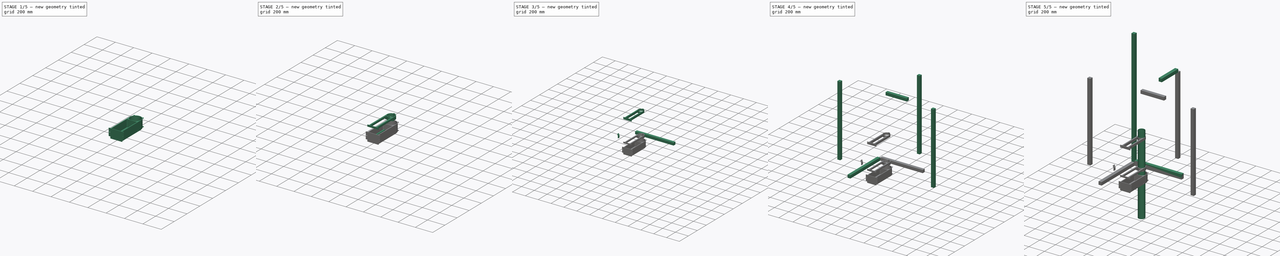
[diagram: build sequence overview — one tinted view per stage of 5, left to right]
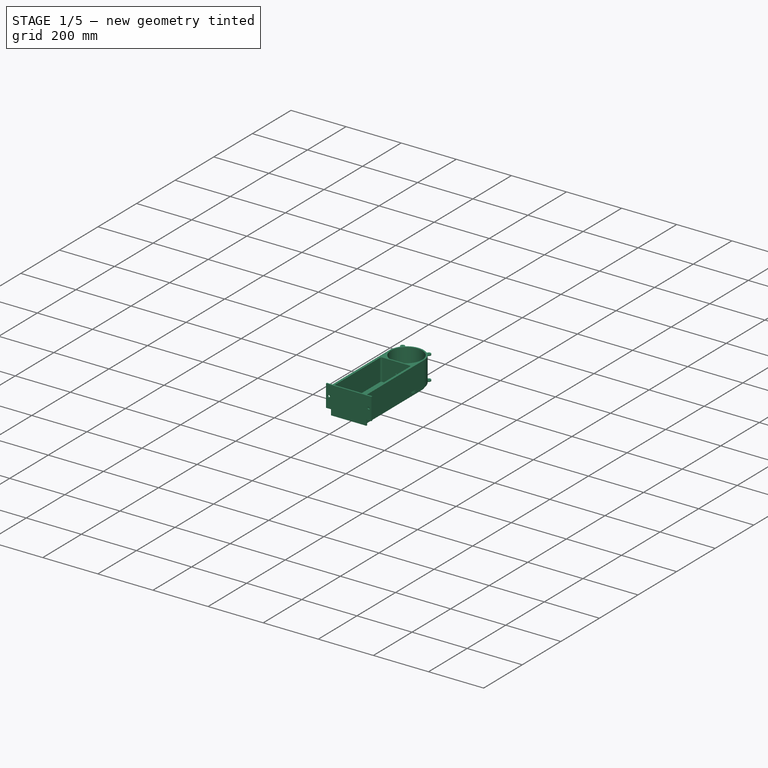
[diagram: stage 1 of 5 — iso view after this stage's code; geometry added in this stage tinted green]
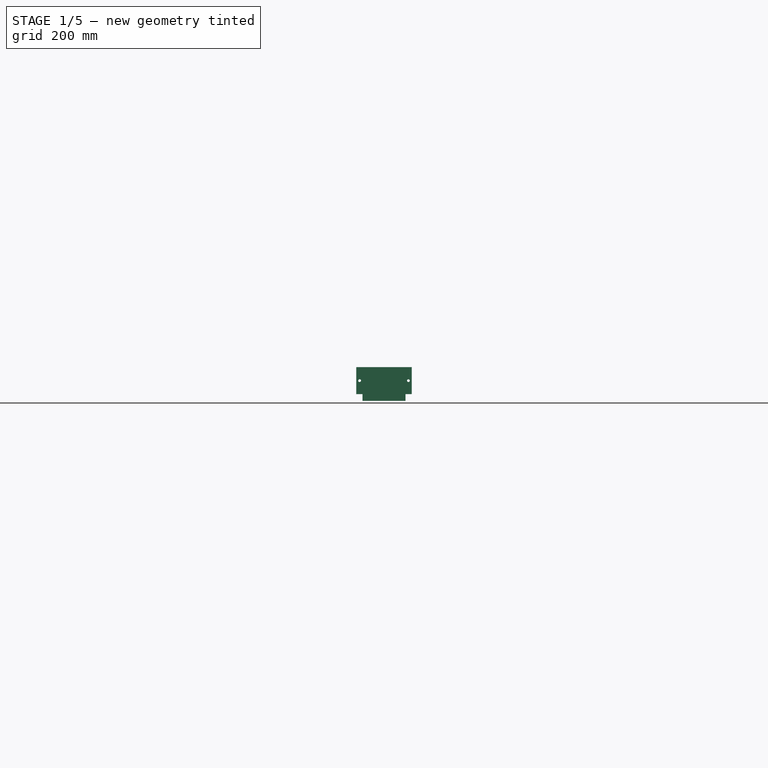
[diagram: stage 1 of 5 — front view after this stage's code; geometry added in this stage tinted green]
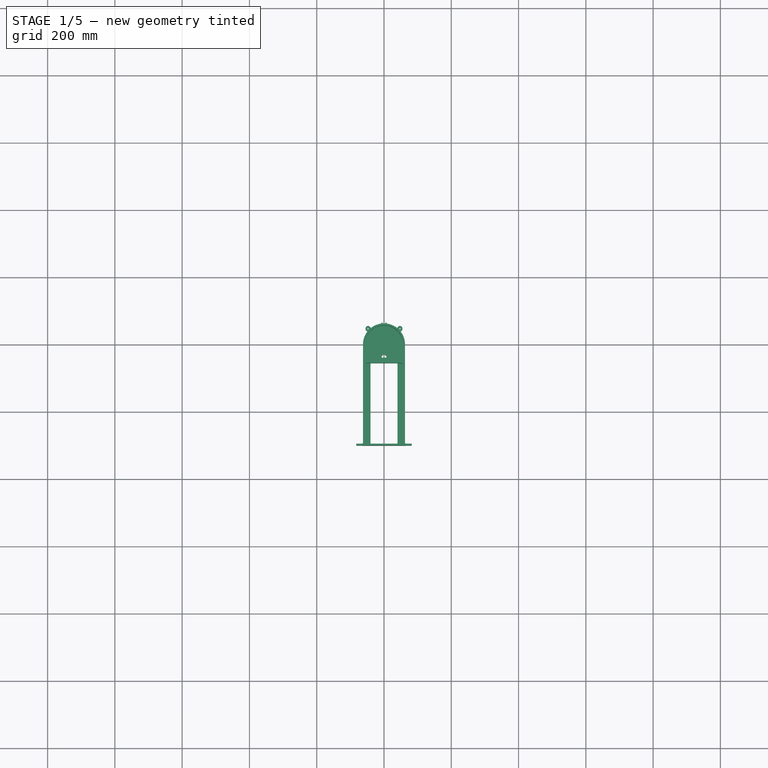
[diagram: stage 1 of 5 — top view after this stage's code; geometry added in this stage tinted green]
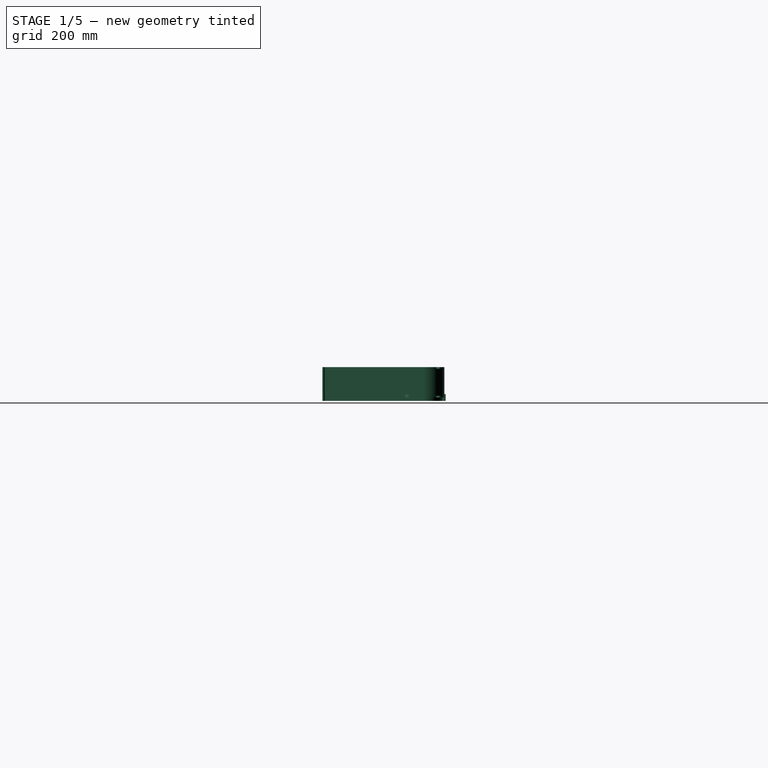
[diagram: stage 1 of 5 — right view after this stage's code; geometry added in this stage tinted green]
FCSTD DOCUMENT  (FreeCAD 0.19R)
Label: mock-up_vertical_setup
License: All rights reserved
LicenseURL: http://en.wikipedia.org/wiki/All_rights_reserved
objects: Sketcher::SketchObject×66, PartDesign::Pad×47, PartDesign::Body×42, PartDesign::ShapeBinder×18, PartDesign::Pocket×18, PartDesign::FeatureBase×3, Spreadsheet::Sheet×1
note: 259 computed .brp shape members not serialized (recipe doc carries the construction recipe); baked Part::Feature solids carry a one-line shape summary decoded from their .brp

FEATURE [PartDesign::Body] Body097  label="windowsupport4"
  BaseFeature = -> Body095
  Group = -> [Clone002]
  Origin = -> Origin097
  Placement = pos=(0,0,-135) rot=(0,0,1;0rad)
  Tip = -> Clone002
FEATURE [Sketcher::SketchObject] Sketch313  label="outline012"
  FullyConstrained = true
  MapMode = 5
  Support = -> [XY_Plane098]
  expr: Constraints[54] = <<parameters>>.support_outer_diam + 40
  expr: Constraints[16] = <<parameters>>.top_diam
  expr: Constraints[19] = <<parameters>>.top_diam
  expr: Constraints[67] = <<parameters>>.support_inner_diam
  sketch-geometry (42):
    g0: ArcOfCircle CenterX=0 CenterY=0 CenterZ=0 NormalX=0 NormalY=0 NormalZ=1 AngleXU=0 Radius=40.5 StartAngle=1.75155 EndAngle=7.67322
    g1: LineSegment StartX=-8 StartY=56.116 StartZ=0 EndX=-8 EndY=65.116 EndZ=0
    g2: LineSegment StartX=-4 StartY=43.775 StartZ=0 EndX=-4 EndY=65.116 EndZ=0
    g3: LineSegment StartX=4 StartY=43.775 StartZ=0 EndX=4 EndY=65.116 EndZ=0
    g4: LineSegment StartX=8 StartY=56.116 StartZ=0 EndX=8 EndY=65.116 EndZ=0
    g5: LineSegment StartX=-5 StartY=66.116 StartZ=0 EndX=-7 EndY=66.116 EndZ=0
    g6: LineSegment StartX=5 StartY=66.116 StartZ=0 EndX=7 EndY=66.116 EndZ=0
    g7: ArcOfCircle CenterX=0 CenterY=0 CenterZ=0 NormalX=0 NormalY=0 NormalZ=1 AngleXU=0 Radius=55 StartAngle=1.74715 EndAngle=3.14159
    g8: ArcOfCircle CenterX=0 CenterY=0 CenterZ=0 NormalX=0 NormalY=0 NormalZ=1 AngleXU=0 Radius=55 StartAngle=0 EndAngle=1.39445
    g9: LineSegment StartX=-64 StartY=-300 StartZ=0 EndX=64 EndY=-300 EndZ=0
    g10: LineSegment StartX=-37 StartY=-295 StartZ=0 EndX=37 EndY=-295 EndZ=0
    g11: LineSegment StartX=40 StartY=-292 StartZ=0 EndX=40 EndY=-40.1871 EndZ=0
    g12: LineSegment StartX=-40 StartY=-292 StartZ=0 EndX=-40 EndY=-40.1871 EndZ=0
    g13: ArcOfCircle CenterX=0 CenterY=0 CenterZ=0 NormalX=0 NormalY=0 NormalZ=1 AngleXU=0 Radius=55 StartAngle=3.94198 EndAngle=5.4828
    g14: ArcOfCircle CenterX=8 CenterY=43.775 CenterZ=0 NormalX=0 NormalY=0 NormalZ=1 AngleXU=0 Radius=4 StartAngle=3.14159 EndAngle=4.53163
    g15: ArcOfCircle CenterX=10 CenterY=56.116 CenterZ=0 NormalX=0 NormalY=0 NormalZ=1 AngleXU=0 Radius=2 StartAngle=3.14159 EndAngle=4.53604
    g16: ArcOfCircle CenterX=-10 CenterY=56.116 CenterZ=0 NormalX=0 NormalY=0 NormalZ=1 AngleXU=0 Radius=2 StartAngle=4.88874 EndAngle=6.28319
    g17: ArcOfCircle CenterX=-8 CenterY=43.775 CenterZ=0 NormalX=0 NormalY=0 NormalZ=1 AngleXU=0 Radius=4 StartAngle=4.89315 EndAngle=6.28319
    g18: ArcOfCircle CenterX=-7 CenterY=65.116 CenterZ=0 NormalX=0 NormalY=0 NormalZ=1 AngleXU=0 Radius=1 StartAngle=1.5708 EndAngle=3.14159
    g19: ArcOfCircle CenterX=-5 CenterY=65.116 CenterZ=0 NormalX=0 NormalY=0 NormalZ=1 AngleXU=0 Radius=1 StartAngle=-2.7e-15 EndAngle=1.5708
    g20: ArcOfCircle CenterX=5 CenterY=65.116 CenterZ=0 NormalX=0 NormalY=0 NormalZ=1 AngleXU=0 Radius=1 StartAngle=1.5708 EndAngle=3.14159
    g21: ArcOfCircle CenterX=7 CenterY=65.116 CenterZ=0 NormalX=0 NormalY=0 NormalZ=1 AngleXU=0 Radius=1 StartAngle=-2.7e-15 EndAngle=1.5708
    g22: ArcOfCircle CenterX=39 CenterY=-40.1871 CenterZ=0 NormalX=0 NormalY=0 NormalZ=1 AngleXU=0 Radius=1 StartAngle=-3.6e-15 EndAngle=2.34121
    g23: ArcOfCircle CenterX=-39 CenterY=-40.1871 CenterZ=0 NormalX=0 NormalY=0 NormalZ=1 AngleXU=0 Radius=1 StartAngle=0.800388 EndAngle=3.14159
    g24: ArcOfCircle CenterX=-37 CenterY=-292 CenterZ=0 NormalX=0 NormalY=0 NormalZ=1 AngleXU=0 Radius=3 StartAngle=3.14159 EndAngle=4.71239
    g25: ArcOfCircle CenterX=37 CenterY=-292 CenterZ=0 NormalX=0 NormalY=0 NormalZ=1 AngleXU=0 Radius=3 StartAngle=4.71239 EndAngle=6.28319
    g26: LineSegment StartX=55 StartY=0 StartZ=0 EndX=55 EndY=-292 EndZ=0
    g27: LineSegment StartX=58 StartY=-295 StartZ=0 EndX=63 EndY=-295 EndZ=0
    g28: LineSegment StartX=-55 StartY=6.7e-15 StartZ=0 EndX=-55 EndY=-292 EndZ=0
    g29: LineSegment StartX=-58 StartY=-295 StartZ=0 EndX=-63 EndY=-295 EndZ=0
    g30: LineSegment StartX=-64 StartY=-300 StartZ=0 EndX=-64 EndY=-296 EndZ=0
    g31: LineSegment StartX=64 StartY=-300 StartZ=0 EndX=64 EndY=-296 EndZ=0
    g32: ArcOfCircle CenterX=58 CenterY=-292 CenterZ=0 NormalX=0 NormalY=0 NormalZ=1 AngleXU=0 Radius=3 StartAngle=3.14159 EndAngle=4.71239
    g33: ArcOfCircle CenterX=63 CenterY=-296 CenterZ=0 NormalX=0 NormalY=0 NormalZ=1 AngleXU=0 Radius=1 StartAngle=-1.78e-14 EndAngle=1.5708
    g34: ArcOfCircle CenterX=-58 CenterY=-292 CenterZ=0 NormalX=0 NormalY=0 NormalZ=1 AngleXU=0 Radius=3 StartAngle=4.71239 EndAngle=6.28319
    g35: ArcOfCircle CenterX=-63 CenterY=-296 CenterZ=0 NormalX=0 NormalY=0 NormalZ=1 AngleXU=0 Radius=1 StartAngle=1.5708 EndAngle=3.14159
    g36: LineSegment StartX=-4 StartY=65.116 StartZ=0 EndX=4 EndY=65.116 EndZ=0
    g37: LineSegment StartX=-8 StartY=56.116 StartZ=0 EndX=8 EndY=56.116 EndZ=0
    g38: LineSegment StartX=9.64912 StartY=54.147 StartZ=0 EndX=-9.64912 EndY=54.147 EndZ=0
    g39: LineSegment StartX=64 StartY=-296 StartZ=0 EndX=-64 EndY=-296 EndZ=0
    g40: LineSegment StartX=-55 StartY=-292 StartZ=0 EndX=-40 EndY=-292 EndZ=0
    g41: LineSegment StartX=40 StartY=-292 StartZ=0 EndX=55 EndY=-292 EndZ=0
  constraints (104):
    c: Coincident(g0,g-1)
    c: Vertical(g1)
    c: Vertical(g2)
    c: Vertical(g3)
    c: Vertical(g4)
    c: Horizontal(g6)
    c: Horizontal(g5)
    c: Coincident(g7,g0)
    c: PointOnObject(g7,g-1)
    c: Coincident(g8,g0)
    c: PointOnObject(g8,g-1)
    c: Horizontal(g9)
    c: Horizontal(g10)
    c: Vertical(g11)
    c: Vertical(g12)
    c: Coincident(g13,g0)
    c: Diameter(g8) = 110
    c: Equal(g8,g7)
    c: DistanceY(g9,g8) = 300
    c: Diameter(g13) = 110
    c: Tangent(g0,g14) = 1.5708
    c: Tangent(g3,g14) = 1.5708
    c: Tangent(g8,g15) = 1.5708
    c: Tangent(g4,g15) = 1.5708
    c: Tangent(g1,g16) = -1.5708
    c: Tangent(g7,g16) = 1.5708
    c: Tangent(g2,g17) = -1.5708
    c: Tangent(g0,g17) = 1.5708
    c: Tangent(g1,g18) = 1.5708
    c: Tangent(g5,g18) = -1.5708
    c: Tangent(g2,g19) = -1.5708
    c: Tangent(g5,g19) = -1.5708
    c: Tangent(g6,g20) = 1.5708
    c: Tangent(g3,g20) = 1.5708
    c: Tangent(g4,g21) = -1.5708
    c: Tangent(g6,g21) = 1.5708
    c: Tangent(g13,g22) = 1.5708
    c: Tangent(g11,g22) = -1.5708
    c: Tangent(g13,g23) = 1.5708
    c: Tangent(g12,g23) = 1.5708
    c: Tangent(g10,g24) = -1.5708
    c: Tangent(g12,g24) = 1.5708
    c: Tangent(g11,g25) = -1.5708
    c: Tangent(g10,g25) = -1.5708
    c: Coincident(g26,g8)
    c: Vertical(g26)
    c: Horizontal(g27)
    c: Coincident(g28,g7)
    c: Vertical(g28)
    c: Horizontal(g29)
    c: Coincident(g30,g9)
    c: Vertical(g30)
    c: Coincident(g31,g9)
    c: Vertical(g31)
    c: DistanceX(g9,g9) = 128
    c: Radius(g21) = 1
    c: Equal(g21,g20)
    c: Equal(g20,g19)
    c: Equal(g19,g18)
    c: Radius(g15) = 2
    c: Radius(g14) = 4
    c: Equal(g16,g15)
    c: Equal(g17,g14)
    c: Radius(g22) = 1
    c: Equal(g23,g22)
    c: Radius(g25) = 3
    c: Equal(g24,g25)
    c: Diameter(g0) = 81
    c: Tangent(g27,g32) = -1.5708
    c: Tangent(g26,g32) = -1.5708
    c: Tangent(g27,g33) = 1.5708
    c: Tangent(g31,g33) = -1.5708
    c: Tangent(g29,g34) = 1.5708
    c: Tangent(g28,g34) = 1.5708
    c: Tangent(g30,g35) = 1.5708
    c: Tangent(g29,g35) = -1.5708
    c: Radius(g35) = 1
    c: Equal(g33,g35)
    c: Equal(g34,g32)
    c: Coincident(g36,g2)
    c: Coincident(g36,g3)
    c: Horizontal(g36)
    c: Coincident(g37,g1)
    c: Coincident(g37,g4)
    c: Horizontal(g37)
    c: Coincident(g38,g8)
    c: Coincident(g38,g7)
    c: Equal(g34,g24)
    c: Coincident(g39,g31)
    c: Coincident(g39,g30)
    c: DistanceY(g9,g29) = 5
    c: DistanceX(g0,g9) = 64
    c: DistanceX(g1,g2) = 4
    c: DistanceX(g3,g4) = 4
    c: DistanceY(g1,g5) = 10
    c: DistanceX(g2,g3) = 8
    c: Coincident(g40,g28)
    c: Coincident(g40,g12)
    c: Horizontal(g40)
    c: Coincident(g41,g11)
    c: Coincident(g41,g26)
    c: Horizontal(g41)
    c: DistanceX(g41,g41) = 15
    c: DistanceX(g40,g40) = 15
FEATURE [PartDesign::Pad] Pad244  label="outline013"
  Direction = (1,1,1)
  Length = 10
  Length2 = 100
  Profile = -> Sketch313
  Type = 0
FEATURE [Sketcher::SketchObject] Sketch314  label="outline014"
  FullyConstrained = true
  MapMode = 5
  Support = -> [XY_Plane098]
  expr: Constraints[19] = <<parameters>>.top_diam
  expr: Constraints[16] = <<parameters>>.top_diam
  expr: Constraints[54] = <<parameters>>.support_outer_diam + 40
  expr: Constraints[67] = <<parameters>>.inner_diam
  sketch-geometry (42):
    g0: ArcOfCircle CenterX=0 CenterY=0 CenterZ=0 NormalX=0 NormalY=0 NormalZ=1 AngleXU=0 Radius=38 StartAngle=1.76244 EndAngle=7.66233
    g1: LineSegment StartX=-8 StartY=56.116 StartZ=0 EndX=-8 EndY=65.116 EndZ=0
    g2: LineSegment StartX=-4 StartY=41.2311 StartZ=0 EndX=-4 EndY=65.116 EndZ=0
    g3: LineSegment StartX=4 StartY=41.2311 StartZ=0 EndX=4 EndY=65.116 EndZ=0
    g4: LineSegment StartX=8 StartY=56.116 StartZ=0 EndX=8 EndY=65.116 EndZ=0
    g5: LineSegment StartX=-5 StartY=66.116 StartZ=0 EndX=-7 EndY=66.116 EndZ=0
    g6: LineSegment StartX=5 StartY=66.116 StartZ=0 EndX=7 EndY=66.116 EndZ=0
    g7: ArcOfCircle CenterX=0 CenterY=0 CenterZ=0 NormalX=0 NormalY=0 NormalZ=1 AngleXU=0 Radius=55 StartAngle=1.74715 EndAngle=3.14159
    g8: ArcOfCircle CenterX=0 CenterY=0 CenterZ=0 NormalX=0 NormalY=0 NormalZ=1 AngleXU=0 Radius=55 StartAngle=0 EndAngle=1.39445
    g9: LineSegment StartX=-64 StartY=-300 StartZ=0 EndX=64 EndY=-300 EndZ=0
    g10: LineSegment StartX=-37 StartY=-295 StartZ=0 EndX=37 EndY=-295 EndZ=0
    g11: LineSegment StartX=40 StartY=-292 StartZ=0 EndX=40 EndY=-40.1871 EndZ=0
    g12: LineSegment StartX=-40 StartY=-292 StartZ=0 EndX=-40 EndY=-40.1871 EndZ=0
    g13: ArcOfCircle CenterX=0 CenterY=0 CenterZ=0 NormalX=0 NormalY=0 NormalZ=1 AngleXU=0 Radius=55 StartAngle=3.94198 EndAngle=5.4828
    g14: ArcOfCircle CenterX=8 CenterY=41.2311 CenterZ=0 NormalX=0 NormalY=0 NormalZ=1 AngleXU=0 Radius=4 StartAngle=3.14159 EndAngle=4.52074
    g15: ArcOfCircle CenterX=10 CenterY=56.116 CenterZ=0 NormalX=0 NormalY=0 NormalZ=1 AngleXU=0 Radius=2 StartAngle=3.14159 EndAngle=4.53604
    g16: ArcOfCircle CenterX=-10 CenterY=56.116 CenterZ=0 NormalX=0 NormalY=0 NormalZ=1 AngleXU=0 Radius=2 StartAngle=4.88874 EndAngle=6.28319
    g17: ArcOfCircle CenterX=-8 CenterY=41.2311 CenterZ=0 NormalX=0 NormalY=0 NormalZ=1 AngleXU=0 Radius=4 StartAngle=4.90404 EndAngle=6.28319
    g18: ArcOfCircle CenterX=-7 CenterY=65.116 CenterZ=0 NormalX=0 NormalY=0 NormalZ=1 AngleXU=0 Radius=1 StartAngle=1.5708 EndAngle=3.14159
    g19: ArcOfCircle CenterX=-5 CenterY=65.116 CenterZ=0 NormalX=0 NormalY=0 NormalZ=1 AngleXU=0 Radius=1 StartAngle=-3.6e-15 EndAngle=1.5708
    g20: ArcOfCircle CenterX=5 CenterY=65.116 CenterZ=0 NormalX=0 NormalY=0 NormalZ=1 AngleXU=0 Radius=1 StartAngle=1.5708 EndAngle=3.14159
    g21: ArcOfCircle CenterX=7 CenterY=65.116 CenterZ=0 NormalX=0 NormalY=0 NormalZ=1 AngleXU=0 Radius=1 StartAngle=-2.7e-15 EndAngle=1.5708
    g22: ArcOfCircle CenterX=39 CenterY=-40.1871 CenterZ=0 NormalX=0 NormalY=0 NormalZ=1 AngleXU=0 Radius=1 StartAngle=2.9e-15 EndAngle=2.34121
    g23: ArcOfCircle CenterX=-39 CenterY=-40.1871 CenterZ=0 NormalX=0 NormalY=0 NormalZ=1 AngleXU=0 Radius=1 StartAngle=0.800388 EndAngle=3.14159
    g24: ArcOfCircle CenterX=-37 CenterY=-292 CenterZ=0 NormalX=0 NormalY=0 NormalZ=1 AngleXU=0 Radius=3 StartAngle=3.14159 EndAngle=4.71239
    g25: ArcOfCircle CenterX=37 CenterY=-292 CenterZ=0 NormalX=0 NormalY=0 NormalZ=1 AngleXU=0 Radius=3 StartAngle=4.71239 EndAngle=6.28319
    g26: LineSegment StartX=55 StartY=0 StartZ=0 EndX=55 EndY=-292 EndZ=0
    g27: LineSegment StartX=58 StartY=-295 StartZ=0 EndX=63 EndY=-295 EndZ=0
    g28: LineSegment StartX=-55 StartY=6.7e-15 StartZ=0 EndX=-55 EndY=-292 EndZ=0
    g29: LineSegment StartX=-58 StartY=-295 StartZ=0 EndX=-63 EndY=-295 EndZ=0
    g30: LineSegment StartX=-64 StartY=-300 StartZ=0 EndX=-64 EndY=-296 EndZ=0
    g31: LineSegment StartX=64 StartY=-300 StartZ=0 EndX=64 EndY=-296 EndZ=0
    g32: ArcOfCircle CenterX=58 CenterY=-292 CenterZ=0 NormalX=0 NormalY=0 NormalZ=1 AngleXU=0 Radius=3 StartAngle=3.14159 EndAngle=4.71239
    g33: ArcOfCircle CenterX=63 CenterY=-296 CenterZ=0 NormalX=0 NormalY=0 NormalZ=1 AngleXU=0 Radius=1 StartAngle=-1.6e-14 EndAngle=1.5708
    g34: ArcOfCircle CenterX=-58 CenterY=-292 CenterZ=0 NormalX=0 NormalY=0 NormalZ=1 AngleXU=0 Radius=3 StartAngle=4.71239 EndAngle=6.28319
    g35: ArcOfCircle CenterX=-63 CenterY=-296 CenterZ=0 NormalX=0 NormalY=0 NormalZ=1 AngleXU=0 Radius=1 StartAngle=1.5708 EndAngle=3.14159
    g36: LineSegment StartX=-4 StartY=65.116 StartZ=0 EndX=4 EndY=65.116 EndZ=0
    g37: LineSegment StartX=-8 StartY=56.116 StartZ=0 EndX=8 EndY=56.116 EndZ=0
    g38: LineSegment StartX=9.64912 StartY=54.147 StartZ=0 EndX=-9.64912 EndY=54.147 EndZ=0
    g39: LineSegment StartX=64 StartY=-296 StartZ=0 EndX=-64 EndY=-296 EndZ=0
    g40: LineSegment StartX=-55 StartY=-292 StartZ=0 EndX=-40 EndY=-292 EndZ=0
    g41: LineSegment StartX=40 StartY=-292 StartZ=0 EndX=55 EndY=-292 EndZ=0
  constraints (104):
    c: Coincident(g0,g-1)
    c: Vertical(g1)
    c: Vertical(g2)
    c: Vertical(g3)
    c: Vertical(g4)
    c: Horizontal(g6)
    c: Horizontal(g5)
    c: Coincident(g7,g0)
    c: PointOnObject(g7,g-1)
    c: Coincident(g8,g0)
    c: PointOnObject(g8,g-1)
    c: Horizontal(g9)
    c: Horizontal(g10)
    c: Vertical(g11)
    c: Vertical(g12)
    c: Coincident(g13,g0)
    c: Diameter(g8) = 110
    c: Equal(g8,g7)
    c: DistanceY(g9,g8) = 300
    c: Diameter(g13) = 110
    c: Tangent(g0,g14) = 1.5708
    c: Tangent(g3,g14) = 1.5708
    c: Tangent(g8,g15) = 1.5708
    c: Tangent(g4,g15) = 1.5708
    c: Tangent(g1,g16) = -1.5708
    c: Tangent(g7,g16) = 1.5708
    c: Tangent(g2,g17) = -1.5708
    c: Tangent(g0,g17) = 1.5708
    c: Tangent(g1,g18) = 1.5708
    c: Tangent(g5,g18) = -1.5708
    c: Tangent(g2,g19) = -1.5708
    c: Tangent(g5,g19) = -1.5708
    c: Tangent(g6,g20) = 1.5708
    c: Tangent(g3,g20) = 1.5708
    c: Tangent(g4,g21) = -1.5708
    c: Tangent(g6,g21) = 1.5708
    c: Tangent(g13,g22) = 1.5708
    c: Tangent(g11,g22) = -1.5708
    c: Tangent(g13,g23) = 1.5708
    c: Tangent(g12,g23) = 1.5708
    c: Tangent(g10,g24) = -1.5708
    c: Tangent(g12,g24) = 1.5708
    c: Tangent(g11,g25) = -1.5708
    c: Tangent(g10,g25) = -1.5708
    c: Coincident(g26,g8)
    c: Vertical(g26)
    c: Horizontal(g27)
    c: Coincident(g28,g7)
    c: Vertical(g28)
    c: Horizontal(g29)
    c: Coincident(g30,g9)
    c: Vertical(g30)
    c: Coincident(g31,g9)
    c: Vertical(g31)
    c: DistanceX(g9,g9) = 128
    c: Radius(g21) = 1
    c: Equal(g21,g20)
    c: Equal(g20,g19)
    c: Equal(g19,g18)
    c: Radius(g15) = 2
    c: Radius(g14) = 4
    c: Equal(g16,g15)
    c: Equal(g17,g14)
    c: Radius(g22) = 1
    c: Equal(g23,g22)
    c: Radius(g25) = 3
    c: Equal(g24,g25)
    c: Diameter(g0) = 76
    c: Tangent(g27,g32) = -1.5708
    c: Tangent(g26,g32) = -1.5708
    c: Tangent(g27,g33) = 1.5708
    c: Tangent(g31,g33) = -1.5708
    c: Tangent(g29,g34) = 1.5708
    c: Tangent(g28,g34) = 1.5708
    c: Tangent(g30,g35) = 1.5708
    c: Tangent(g29,g35) = -1.5708
    c: Radius(g35) = 1
    c: Equal(g33,g35)
    c: Equal(g34,g32)
    c: Coincident(g36,g2)
    c: Coincident(g36,g3)
    c: Horizontal(g36)
    c: Coincident(g37,g1)
    c: Coincident(g37,g4)
    c: Horizontal(g37)
    c: Coincident(g38,g8)
    c: Coincident(g38,g7)
    c: Equal(g34,g24)
    c: Coincident(g39,g31)
    c: Coincident(g39,g30)
    c: DistanceY(g9,g29) = 5
    c: DistanceX(g0,g9) = 64
    c: DistanceX(g1,g2) = 4
    c: DistanceX(g3,g4) = 4
    c: DistanceY(g1,g5) = 10
    c: DistanceX(g2,g3) = 8
    c: Coincident(g40,g28)
    c: Coincident(g40,g12)
    c: Horizontal(g40)
    c: Coincident(g41,g11)
    c: Coincident(g41,g26)
    c: Horizontal(g41)
    c: DistanceX(g41,g41) = 15
    c: DistanceX(g40,g40) = 15
FEATURE [PartDesign::Pad] Pad245  label="inner_section002"
  BaseFeature = -> Pad244
  Direction = (1,1,1)
  Length = 5
  Length2 = 100
  Profile = -> Sketch314
  Reversed = true
  Type = 0
FEATURE [Sketcher::SketchObject] Sketch315  label="outline015"
  FullyConstrained = true
  MapMode = 5
  Support = -> [XY_Plane098]
  expr: Constraints[54] = <<parameters>>.support_outer_diam + 40
  expr: Constraints[16] = <<parameters>>.top_diam
  expr: Constraints[19] = <<parameters>>.top_diam
  expr: Constraints[67] = <<parameters>>.top_window_diam
  sketch-geometry (42):
    g0: ArcOfCircle CenterX=0 CenterY=0 CenterZ=0 NormalX=0 NormalY=0 NormalZ=1 AngleXU=0 Radius=51 StartAngle=1.71677 EndAngle=7.70801
    g1: LineSegment StartX=-8 StartY=56.116 StartZ=0 EndX=-8 EndY=65.116 EndZ=0
    g2: LineSegment StartX=-4 StartY=54.4151 StartZ=0 EndX=-4 EndY=65.116 EndZ=0
    g3: LineSegment StartX=4 StartY=54.4151 StartZ=0 EndX=4 EndY=65.116 EndZ=0
    g4: LineSegment StartX=8 StartY=56.116 StartZ=0 EndX=8 EndY=65.116 EndZ=0
    g5: LineSegment StartX=-5 StartY=66.116 StartZ=0 EndX=-7 EndY=66.116 EndZ=0
    g6: LineSegment StartX=5 StartY=66.116 StartZ=0 EndX=7 EndY=66.116 EndZ=0
    g7: ArcOfCircle CenterX=0 CenterY=0 CenterZ=0 NormalX=0 NormalY=0 NormalZ=1 AngleXU=0 Radius=55 StartAngle=1.74715 EndAngle=3.14159
    g8: ArcOfCircle CenterX=0 CenterY=0 CenterZ=0 NormalX=0 NormalY=0 NormalZ=1 AngleXU=0 Radius=55 StartAngle=0 EndAngle=1.39445
    g9: LineSegment StartX=-64 StartY=-300 StartZ=0 EndX=64 EndY=-300 EndZ=0
    g10: LineSegment StartX=-37 StartY=-295 StartZ=0 EndX=37 EndY=-295 EndZ=0
    g11: LineSegment StartX=40 StartY=-292 StartZ=0 EndX=40 EndY=-40.1871 EndZ=0
    g12: LineSegment StartX=-40 StartY=-292 StartZ=0 EndX=-40 EndY=-40.1871 EndZ=0
    g13: ArcOfCircle CenterX=0 CenterY=0 CenterZ=0 NormalX=0 NormalY=0 NormalZ=1 AngleXU=0 Radius=55 StartAngle=3.94198 EndAngle=5.4828
    g14: ArcOfCircle CenterX=8 CenterY=54.4151 CenterZ=0 NormalX=0 NormalY=0 NormalZ=1 AngleXU=0 Radius=4 StartAngle=3.14159 EndAngle=4.56642
    g15: ArcOfCircle CenterX=10 CenterY=56.116 CenterZ=0 NormalX=0 NormalY=0 NormalZ=1 AngleXU=0 Radius=2 StartAngle=3.14159 EndAngle=4.53604
    g16: ArcOfCircle CenterX=-10 CenterY=56.116 CenterZ=0 NormalX=0 NormalY=0 NormalZ=1 AngleXU=0 Radius=2 StartAngle=4.88874 EndAngle=6.28319
    g17: ArcOfCircle CenterX=-8 CenterY=54.4151 CenterZ=0 NormalX=0 NormalY=0 NormalZ=1 AngleXU=0 Radius=4 StartAngle=4.85836 EndAngle=6.28319
    g18: ArcOfCircle CenterX=-7 CenterY=65.116 CenterZ=0 NormalX=0 NormalY=0 NormalZ=1 AngleXU=0 Radius=1 StartAngle=1.5708 EndAngle=3.14159
    g19: ArcOfCircle CenterX=-5 CenterY=65.116 CenterZ=0 NormalX=0 NormalY=0 NormalZ=1 AngleXU=0 Radius=1 StartAngle=3.1e-15 EndAngle=1.5708
    g20: ArcOfCircle CenterX=5 CenterY=65.116 CenterZ=0 NormalX=0 NormalY=0 NormalZ=1 AngleXU=0 Radius=1 StartAngle=1.5708 EndAngle=3.14159
    g21: ArcOfCircle CenterX=7 CenterY=65.116 CenterZ=0 NormalX=0 NormalY=0 NormalZ=1 AngleXU=0 Radius=1 StartAngle=-2.7e-15 EndAngle=1.5708
    g22: ArcOfCircle CenterX=39 CenterY=-40.1871 CenterZ=0 NormalX=0 NormalY=0 NormalZ=1 AngleXU=0 Radius=1 StartAngle=-2.7e-15 EndAngle=2.34121
    g23: ArcOfCircle CenterX=-39 CenterY=-40.1871 CenterZ=0 NormalX=0 NormalY=0 NormalZ=1 AngleXU=0 Radius=1 StartAngle=0.800388 EndAngle=3.14159
    g24: ArcOfCircle CenterX=-37 CenterY=-292 CenterZ=0 NormalX=0 NormalY=0 NormalZ=1 AngleXU=0 Radius=3 StartAngle=3.14159 EndAngle=4.71239
    g25: ArcOfCircle CenterX=37 CenterY=-292 CenterZ=0 NormalX=0 NormalY=0 NormalZ=1 AngleXU=0 Radius=3 StartAngle=4.71239 EndAngle=6.28319
    g26: LineSegment StartX=55 StartY=0 StartZ=0 EndX=55 EndY=-292 EndZ=0
    g27: LineSegment StartX=58 StartY=-295 StartZ=0 EndX=63 EndY=-295 EndZ=0
    g28: LineSegment StartX=-55 StartY=6.7e-15 StartZ=0 EndX=-55 EndY=-292 EndZ=0
    g29: LineSegment StartX=-58 StartY=-295 StartZ=0 EndX=-63 EndY=-295 EndZ=0
    g30: LineSegment StartX=-64 StartY=-300 StartZ=0 EndX=-64 EndY=-296 EndZ=0
    g31: LineSegment StartX=64 StartY=-300 StartZ=0 EndX=64 EndY=-296 EndZ=0
    g32: ArcOfCircle CenterX=58 CenterY=-292 CenterZ=0 NormalX=0 NormalY=0 NormalZ=1 AngleXU=0 Radius=3 StartAngle=3.14159 EndAngle=4.71239
    g33: ArcOfCircle CenterX=63 CenterY=-296 CenterZ=0 NormalX=0 NormalY=0 NormalZ=1 AngleXU=0 Radius=1 StartAngle=-2.04e-14 EndAngle=1.5708
    g34: ArcOfCircle CenterX=-58 CenterY=-292 CenterZ=0 NormalX=0 NormalY=0 NormalZ=1 AngleXU=0 Radius=3 StartAngle=4.71239 EndAngle=6.28319
    g35: ArcOfCircle CenterX=-63 CenterY=-296 CenterZ=0 NormalX=0 NormalY=0 NormalZ=1 AngleXU=0 Radius=1 StartAngle=1.5708 EndAngle=3.14159
    g36: LineSegment StartX=-4 StartY=65.116 StartZ=0 EndX=4 EndY=65.116 EndZ=0
    g37: LineSegment StartX=-8 StartY=56.116 StartZ=0 EndX=8 EndY=56.116 EndZ=0
    g38: LineSegment StartX=9.64912 StartY=54.147 StartZ=0 EndX=-9.64912 EndY=54.147 EndZ=0
    g39: LineSegment StartX=64 StartY=-296 StartZ=0 EndX=-64 EndY=-296 EndZ=0
    g40: LineSegment StartX=-55 StartY=-292 StartZ=0 EndX=-40 EndY=-292 EndZ=0
    g41: LineSegment StartX=40 StartY=-292 StartZ=0 EndX=55 EndY=-292 EndZ=0
  constraints (104):
    c: Coincident(g0,g-1)
    c: Vertical(g1)
    c: Vertical(g2)
    c: Vertical(g3)
    c: Vertical(g4)
    c: Horizontal(g6)
    c: Horizontal(g5)
    c: Coincident(g7,g0)
    c: PointOnObject(g7,g-1)
    c: Coincident(g8,g0)
    c: PointOnObject(g8,g-1)
    c: Horizontal(g9)
    c: Horizontal(g10)
    c: Vertical(g11)
    c: Vertical(g12)
    c: Coincident(g13,g0)
    c: Diameter(g8) = 110
    c: Equal(g8,g7)
    c: DistanceY(g9,g8) = 300
    c: Diameter(g13) = 110
    c: Tangent(g0,g14) = 1.5708
    c: Tangent(g3,g14) = 1.5708
    c: Tangent(g8,g15) = 1.5708
    c: Tangent(g4,g15) = 1.5708
    c: Tangent(g1,g16) = -1.5708
    c: Tangent(g7,g16) = 1.5708
    c: Tangent(g2,g17) = -1.5708
    c: Tangent(g0,g17) = 1.5708
    c: Tangent(g1,g18) = 1.5708
    c: Tangent(g5,g18) = -1.5708
    c: Tangent(g2,g19) = -1.5708
    c: Tangent(g5,g19) = -1.5708
    c: Tangent(g6,g20) = 1.5708
    c: Tangent(g3,g20) = 1.5708
    c: Tangent(g4,g21) = -1.5708
    c: Tangent(g6,g21) = 1.5708
    c: Tangent(g13,g22) = 1.5708
    c: Tangent(g11,g22) = -1.5708
    c: Tangent(g13,g23) = 1.5708
    c: Tangent(g12,g23) = 1.5708
    c: Tangent(g10,g24) = -1.5708
    c: Tangent(g12,g24) = 1.5708
    c: Tangent(g11,g25) = -1.5708
    c: Tangent(g10,g25) = -1.5708
    c: Coincident(g26,g8)
    c: Vertical(g26)
    c: Horizontal(g27)
    c: Coincident(g28,g7)
    c: Vertical(g28)
    c: Horizontal(g29)
    c: Coincident(g30,g9)
    c: Vertical(g30)
    c: Coincident(g31,g9)
    c: Vertical(g31)
    c: DistanceX(g9,g9) = 128
    c: Radius(g21) = 1
    c: Equal(g21,g20)
    c: Equal(g20,g19)
    c: Equal(g19,g18)
    c: Radius(g15) = 2
    c: Radius(g14) = 4
    c: Equal(g16,g15)
    c: Equal(g17,g14)
    c: Radius(g22) = 1
    c: Equal(g23,g22)
    c: Radius(g25) = 3
    c: Equal(g24,g25)
    c: Diameter(g0) = 102
    c: Tangent(g27,g32) = -1.5708
    c: Tangent(g26,g32) = -1.5708
    c: Tangent(g27,g33) = 1.5708
    c: Tangent(g31,g33) = -1.5708
    c: Tangent(g29,g34) = 1.5708
    c: Tangent(g28,g34) = 1.5708
    c: Tangent(g30,g35) = 1.5708
    c: Tangent(g29,g35) = -1.5708
    c: Radius(g35) = 1
    c: Equal(g33,g35)
    c: Equal(g34,g32)
    c: Coincident(g36,g2)
    c: Coincident(g36,g3)
    c: Horizontal(g36)
    c: Coincident(g37,g1)
    c: Coincident(g37,g4)
    c: Horizontal(g37)
    c: Coincident(g38,g8)
    c: Coincident(g38,g7)
    c: Equal(g34,g24)
    c: Coincident(g39,g31)
    c: Coincident(g39,g30)
    c: DistanceY(g9,g29) = 5
    c: DistanceX(g0,g9) = 64
    c: DistanceX(g1,g2) = 4
    c: DistanceX(g3,g4) = 4
    c: DistanceY(g1,g5) = 10
    c: DistanceX(g2,g3) = 8
    c: Coincident(g40,g28)
    c: Coincident(g40,g12)
    c: Horizontal(g40)
    c: Coincident(g41,g11)
    c: Coincident(g41,g26)
    c: Horizontal(g41)
    c: DistanceX(g41,g41) = 15
    c: DistanceX(g40,g40) = 15
FEATURE [PartDesign::Pad] Pad246  label="window_section001"
  BaseFeature = -> Pad245
  Direction = (1,1,1)
  Length = 10
  Length2 = 100
  Profile = -> Sketch315
  Reversed = true
  Type = 0
FEATURE [Sketcher::SketchObject] Sketch316
  FullyConstrained = true
  MapMode = 5
  Placement = pos=(-8,0,0) rot=(0.57735,-0.57735,-0.57735;2.0944rad)
  Support = -> [Pad246]
  expr: Constraints[0] = <<parameters>>.m4
  expr: Constraints[1] = <<parameters>>.top_diam / 2 + 5
  sketch-geometry (1):
    g0: Circle CenterX=-60 CenterY=5 CenterZ=0 NormalX=0 NormalY=0 NormalZ=1 AngleXU=0 Radius=2.25
  constraints (3):
    c: Diameter(g0) = 4.5
    c: DistanceX(g0,g-1) = 60
    c: DistanceY(g-1,g0) = 5
FEATURE [PartDesign::Pocket] Pocket054  label="top_holes002"
  BaseFeature = -> Pad246
  Length = 5
  Length2 = 100
  Profile = -> Sketch316
  Type = 1
FEATURE [Sketcher::SketchObject] Sketch317  label="outline017"
  FullyConstrained = true
  MapMode = 5
  Support = -> [XY_Plane099]
  expr: Constraints[37] = <<parameters>>.m4
  expr: Constraints[46] = <<parameters>>.top_diam / 2 - 8
  expr: Constraints[41] = <<parameters>>.top_diam
  expr: Constraints[45] = <<parameters>>.top_diam / 2 - 8
  expr: Constraints[44] = <<parameters>>.top_diam
  expr: Constraints[38] = <<parameters>>.m4
  expr: Constraints[43] = <<parameters>>.support_inner_diam
  expr: Constraints[79] = <<parameters>>.top_diam
  sketch-geometry (32):
    g0: LineSegment StartX=-8 StartY=56.116 StartZ=0 EndX=-8 EndY=65.116 EndZ=0
    g1: LineSegment StartX=-4 StartY=43.775 StartZ=0 EndX=-4 EndY=65.116 EndZ=0
    g2: LineSegment StartX=4 StartY=43.775 StartZ=0 EndX=4 EndY=65.116 EndZ=0
    g3: LineSegment StartX=8 StartY=56.116 StartZ=0 EndX=8 EndY=65.116 EndZ=0
    g4: LineSegment StartX=-5 StartY=66.116 StartZ=0 EndX=-7 EndY=66.116 EndZ=0
    g5: LineSegment StartX=5 StartY=66.116 StartZ=0 EndX=7 EndY=66.116 EndZ=0
    g6: ArcOfCircle CenterX=-7 CenterY=65.116 CenterZ=0 NormalX=0 NormalY=0 NormalZ=1 AngleXU=0 Radius=1 StartAngle=1.5708 EndAngle=3.14159
    g7: ArcOfCircle CenterX=-5 CenterY=65.116 CenterZ=0 NormalX=0 NormalY=0 NormalZ=1 AngleXU=0 Radius=1 StartAngle=-1.8e-15 EndAngle=1.5708
    g8: ArcOfCircle CenterX=5 CenterY=65.116 CenterZ=0 NormalX=0 NormalY=0 NormalZ=1 AngleXU=0 Radius=1 StartAngle=1.5708 EndAngle=3.14159
    g9: ArcOfCircle CenterX=7 CenterY=65.116 CenterZ=0 NormalX=0 NormalY=0 NormalZ=1 AngleXU=0 Radius=1 StartAngle=1.7e-15 EndAngle=1.5708
    g10: LineSegment StartX=-4 StartY=65.116 StartZ=0 EndX=4 EndY=65.116 EndZ=0
    g11: ArcOfCircle CenterX=0 CenterY=0 CenterZ=0 NormalX=0 NormalY=0 NormalZ=1 AngleXU=0 Radius=40.5 StartAngle=1.75155 EndAngle=7.67322
    g12: ArcOfCircle CenterX=0 CenterY=0 CenterZ=0 NormalX=0 NormalY=0 NormalZ=1 AngleXU=0 Radius=55 StartAngle=1.74715 EndAngle=3.14159
    g13: ArcOfCircle CenterX=0 CenterY=0 CenterZ=0 NormalX=0 NormalY=0 NormalZ=1 AngleXU=0 Radius=55 StartAngle=0 EndAngle=1.39445
    g14: LineSegment StartX=-55 StartY=6.7e-15 StartZ=0 EndX=-55 EndY=-35 EndZ=0
    g15: LineSegment StartX=55 StartY=0 StartZ=0 EndX=55 EndY=-35 EndZ=0
    g16: LineSegment StartX=50 StartY=-40 StartZ=0 EndX=41.5331 EndY=-40 EndZ=0
    g17: ArcOfCircle CenterX=0 CenterY=0 CenterZ=0 NormalX=0 NormalY=0 NormalZ=1 AngleXU=0 Radius=55 StartAngle=4.01923 EndAngle=5.40555
    g18: ArcOfCircle CenterX=41.5331 CenterY=-50 CenterZ=0 NormalX=0 NormalY=0 NormalZ=1 AngleXU=0 Radius=10 StartAngle=1.5708 EndAngle=2.26396
    g19: ArcOfCircle CenterX=50 CenterY=-35 CenterZ=0 NormalX=0 NormalY=0 NormalZ=1 AngleXU=0 Radius=5 StartAngle=4.71239 EndAngle=6.28319
    g20: Circle CenterX=-47 CenterY=-30 CenterZ=0 NormalX=0 NormalY=0 NormalZ=1 AngleXU=0 Radius=2.25
    g21: Circle CenterX=47 CenterY=-30 CenterZ=0 NormalX=0 NormalY=0 NormalZ=1 AngleXU=0 Radius=2.25
    g22: LineSegment StartX=-47 StartY=-30 StartZ=0 EndX=47 EndY=-30 EndZ=0
    g23: ArcOfCircle CenterX=-10 CenterY=56.116 CenterZ=0 NormalX=0 NormalY=0 NormalZ=1 AngleXU=0 Radius=2 StartAngle=4.88874 EndAngle=6.28319
    g24: ArcOfCircle CenterX=10 CenterY=56.116 CenterZ=0 NormalX=0 NormalY=0 NormalZ=1 AngleXU=0 Radius=2 StartAngle=3.14159 EndAngle=4.53604
    g25: ArcOfCircle CenterX=-8 CenterY=43.775 CenterZ=0 NormalX=0 NormalY=0 NormalZ=1 AngleXU=0 Radius=4 StartAngle=4.89315 EndAngle=6.28319
    g26: ArcOfCircle CenterX=8 CenterY=43.775 CenterZ=0 NormalX=0 NormalY=0 NormalZ=1 AngleXU=0 Radius=4 StartAngle=3.14159 EndAngle=4.53163
    g27: LineSegment StartX=-4 StartY=43.775 StartZ=0 EndX=4 EndY=43.775 EndZ=0
    g28: LineSegment StartX=-50 StartY=-40 StartZ=0 EndX=-41.5331 EndY=-40 EndZ=0
    g29: ArcOfCircle CenterX=-50 CenterY=-35 CenterZ=0 NormalX=0 NormalY=0 NormalZ=1 AngleXU=0 Radius=5 StartAngle=3.14159 EndAngle=4.71239
    g30: ArcOfCircle CenterX=-41.5331 CenterY=-50 CenterZ=0 NormalX=0 NormalY=0 NormalZ=1 AngleXU=0 Radius=10 StartAngle=0.877636 EndAngle=1.5708
    g31: LineSegment StartX=-41.5331 StartY=-40 StartZ=0 EndX=41.5331 EndY=-40 EndZ=0
  constraints (80):
    c: Vertical(g0)
    c: Vertical(g1)
    c: Vertical(g2)
    c: Vertical(g3)
    c: Horizontal(g5)
    c: Horizontal(g4)
    c: Tangent(g0,g6) = 1.5708
    c: Tangent(g4,g6) = -1.5708
    c: Tangent(g1,g7) = -1.5708
    c: Tangent(g4,g7) = -1.5708
    c: Tangent(g5,g8) = 1.5708
    c: Tangent(g2,g8) = 1.5708
    c: Tangent(g3,g9) = -1.5708
    c: Tangent(g5,g9) = 1.5708
    c: Radius(g9) = 1
    c: Equal(g9,g8)
    c: Equal(g8,g7)
    c: Equal(g7,g6)
    c: Coincident(g10,g1)
    c: Coincident(g10,g2)
    c: Horizontal(g10)
    c: DistanceX(g0,g1) = 4
    c: DistanceX(g2,g3) = 4
    c: Coincident(g12,g11)
    c: PointOnObject(g12,g-1)
    c: Coincident(g13,g11)
    c: PointOnObject(g13,g-1)
    c: Coincident(g14,g12)
    c: Vertical(g14)
    c: Coincident(g15,g13)
    c: Vertical(g15)
    c: Coincident(g17,g11)
    c: Horizontal(g16)
    c: Tangent(g16,g18) = -1.5708
    c: Tangent(g17,g18) = 1.5708
    c: Tangent(g16,g19) = 1.5708
    c: Tangent(g15,g19) = 1.5708
    c: Diameter(g20) = 4.5
    c: Diameter(g21) = 4.5
    c: Radius(g18) = 10
    c: Radius(g19) = 5
    c: Diameter(g13) = 110
    c: Coincident(g11,g-1)
    c: Diameter(g11) = 81
    c: Diameter(g17) = 110
    c: DistanceX(g20,g11) = 47
    c: DistanceX(g11,g21) = 47
    c: Coincident(g22,g20)
    c: Coincident(g22,g21)
    c: Horizontal(g22)
    c: DistanceY(g20,g11) = 30
    c: Tangent(g12,g23) = 1.5708
    c: Tangent(g0,g23) = -1.5708
    c: Tangent(g13,g24) = 1.5708
    c: Tangent(g3,g24) = 1.5708
    c: Radius(g24) = 2
    c: Equal(g24,g23)
    c: Tangent(g11,g25) = 1.5708
    c: Tangent(g1,g25) = -1.5708
    c: Tangent(g11,g26) = 1.5708
    c: Tangent(g2,g26) = 1.5708
    c: Radius(g25) = 4
    c: Equal(g25,g26)
    c: Coincident(g27,g1)
    c: Coincident(g27,g2)
    c: Horizontal(g27)
    c: DistanceX(g27,g27) = 8
    c: DistanceY(g3,g5) = 10
    c: Horizontal(g28)
    c: Tangent(g28,g29) = -1.5708
    c: Tangent(g14,g29) = -1.5708
    c: Tangent(g17,g30) = 1.5708
    c: Tangent(g28,g30) = 1.5708
    c: Equal(g18,g30)
    c: Equal(g19,g29)
    c: Coincident(g31,g28)
    c: Coincident(g31,g16)
    c: Horizontal(g31)
    c: DistanceY(g28,g12) = 40
    c: DistanceX(g14,g15) = 110
FEATURE [PartDesign::Pad] Pad247  label="outline016"
  Direction = (1,1,1)
  Length = 10
  Length2 = 100
  Profile = -> Sketch317
  Type = 0
FEATURE [Sketcher::SketchObject] Sketch318
  FullyConstrained = true
  MapMode = 5
  Placement = pos=(0,0,10) rot=(0,0,1;0rad)
  Support = -> [Pocket054]
  expr: Constraints[0] = <<parameters>>.m4
  expr: Constraints[1] = <<parameters>>.m4
  expr: Constraints[2] = <<parameters>>.top_diam / 2 - 8
  expr: Constraints[3] = <<parameters>>.top_diam / 2 - 8
  sketch-geometry (3):
    g0: Circle CenterX=-47 CenterY=-30 CenterZ=0 NormalX=0 NormalY=0 NormalZ=1 AngleXU=0 Radius=2.25
    g1: Circle CenterX=47 CenterY=-30 CenterZ=0 NormalX=0 NormalY=0 NormalZ=1 AngleXU=0 Radius=2.25
    g2: LineSegment StartX=-47 StartY=-30 StartZ=0 EndX=47 EndY=-30 EndZ=0
  constraints (8):
    c: Diameter(g1) = 4.5
    c: Diameter(g0) = 4.5
    c: DistanceX(g0,g-1) = 47
    c: DistanceX(g-1,g1) = 47
    c: Coincident(g2,g0)
    c: Coincident(g2,g1)
    c: Horizontal(g2)
    c: DistanceY(g0,g-1) = 30
FEATURE [PartDesign::Pocket] Pocket055  label="middle holes"
  BaseFeature = -> Pocket054
  Length = 5
  Length2 = 100
  Profile = -> Sketch318
  Type = 1
FEATURE [PartDesign::Body] Body098  label="topwindow001"
  Group = -> [Sketch313,Pad244,Sketch314,Pad245,Sketch315,Pad246,Sketch316,Pocket054,Sketch318,Pocket055]
  Origin = -> Origin098
  Placement = pos=(0,0,-424) rot=(0,0,1;0rad)
  Tip = -> Pocket055
FEATURE [Sketcher::SketchObject] Sketch319  label="outline018"
  FullyConstrained = true
  MapMode = 5
  Support = -> [XY_Plane099]
  expr: Constraints[62] = <<parameters>>.top_diam
  expr: Constraints[43] = <<parameters>>.m4
  expr: Constraints[54] = <<parameters>>.inner_diam
  expr: Constraints[55] = <<parameters>>.top_diam
  expr: Constraints[56] = <<parameters>>.top_diam / 2 - 8
  expr: Constraints[52] = <<parameters>>.top_diam
  expr: Constraints[42] = <<parameters>>.m4
  expr: Constraints[57] = <<parameters>>.top_diam / 2 - 8
  sketch-geometry (32):
    g0: LineSegment StartX=-8 StartY=56.116 StartZ=0 EndX=-8 EndY=65.116 EndZ=0
    g1: LineSegment StartX=-4 StartY=41.2311 StartZ=0 EndX=-4 EndY=65.116 EndZ=0
    g2: LineSegment StartX=4 StartY=41.2311 StartZ=0 EndX=4 EndY=65.116 EndZ=0
    g3: LineSegment StartX=8 StartY=56.116 StartZ=0 EndX=8 EndY=65.116 EndZ=0
    g4: LineSegment StartX=-5 StartY=66.116 StartZ=0 EndX=-7 EndY=66.116 EndZ=0
    g5: LineSegment StartX=5 StartY=66.116 StartZ=0 EndX=7 EndY=66.116 EndZ=0
    g6: ArcOfCircle CenterX=-7 CenterY=65.116 CenterZ=0 NormalX=0 NormalY=0 NormalZ=1 AngleXU=0 Radius=1 StartAngle=1.5708 EndAngle=3.14159
    g7: ArcOfCircle CenterX=-5 CenterY=65.116 CenterZ=0 NormalX=0 NormalY=0 NormalZ=1 AngleXU=0 Radius=1 StartAngle=-2.7e-15 EndAngle=1.5708
    g8: ArcOfCircle CenterX=5 CenterY=65.116 CenterZ=0 NormalX=0 NormalY=0 NormalZ=1 AngleXU=0 Radius=1 StartAngle=1.5708 EndAngle=3.14159
    g9: ArcOfCircle CenterX=7 CenterY=65.116 CenterZ=0 NormalX=0 NormalY=0 NormalZ=1 AngleXU=0 Radius=1 StartAngle=3.1e-15 EndAngle=1.5708
    g10: LineSegment StartX=-4 StartY=65.116 StartZ=0 EndX=4 EndY=65.116 EndZ=0
    g11: ArcOfCircle CenterX=0 CenterY=0 CenterZ=0 NormalX=0 NormalY=0 NormalZ=1 AngleXU=0 Radius=38 StartAngle=1.76244 EndAngle=7.66233
    g12: ArcOfCircle CenterX=0 CenterY=0 CenterZ=0 NormalX=0 NormalY=0 NormalZ=1 AngleXU=0 Radius=55 StartAngle=1.74715 EndAngle=3.14159
    g13: ArcOfCircle CenterX=0 CenterY=0 CenterZ=0 NormalX=0 NormalY=0 NormalZ=1 AngleXU=0 Radius=55 StartAngle=0 EndAngle=1.39445
    g14: LineSegment StartX=-55 StartY=6.7e-15 StartZ=0 EndX=-55 EndY=-35 EndZ=0
    g15: LineSegment StartX=-50 StartY=-40 StartZ=0 EndX=-41.5331 EndY=-40 EndZ=0
    g16: LineSegment StartX=55 StartY=0 StartZ=0 EndX=55 EndY=-35 EndZ=0
    g17: LineSegment StartX=50 StartY=-40 StartZ=0 EndX=41.5331 EndY=-40 EndZ=0
    g18: ArcOfCircle CenterX=0 CenterY=0 CenterZ=0 NormalX=0 NormalY=0 NormalZ=1 AngleXU=0 Radius=55 StartAngle=4.01923 EndAngle=5.40555
    g19: ArcOfCircle CenterX=-41.5331 CenterY=-50 CenterZ=0 NormalX=0 NormalY=0 NormalZ=1 AngleXU=0 Radius=10 StartAngle=0.877636 EndAngle=1.5708
    g20: ArcOfCircle CenterX=41.5331 CenterY=-50 CenterZ=0 NormalX=0 NormalY=0 NormalZ=1 AngleXU=0 Radius=10 StartAngle=1.5708 EndAngle=2.26396
    g21: ArcOfCircle CenterX=50 CenterY=-35 CenterZ=0 NormalX=0 NormalY=0 NormalZ=1 AngleXU=0 Radius=5 StartAngle=4.71239 EndAngle=6.28319
    g22: ArcOfCircle CenterX=-50 CenterY=-35 CenterZ=0 NormalX=0 NormalY=0 NormalZ=1 AngleXU=0 Radius=5 StartAngle=3.14159 EndAngle=4.71239
    g23: Circle CenterX=-47 CenterY=-30 CenterZ=0 NormalX=0 NormalY=0 NormalZ=1 AngleXU=0 Radius=2.25
    g24: Circle CenterX=47 CenterY=-30 CenterZ=0 NormalX=0 NormalY=0 NormalZ=1 AngleXU=0 Radius=2.25
    g25: LineSegment StartX=-50 StartY=-40 StartZ=0 EndX=50 EndY=-40 EndZ=0
    g26: LineSegment StartX=-47 StartY=-30 StartZ=0 EndX=47 EndY=-30 EndZ=0
    g27: ArcOfCircle CenterX=-10 CenterY=56.116 CenterZ=0 NormalX=0 NormalY=0 NormalZ=1 AngleXU=0 Radius=2 StartAngle=4.88874 EndAngle=6.28319
    g28: ArcOfCircle CenterX=10 CenterY=56.116 CenterZ=0 NormalX=0 NormalY=0 NormalZ=1 AngleXU=0 Radius=2 StartAngle=3.14159 EndAngle=4.53604
    g29: ArcOfCircle CenterX=-8 CenterY=41.2311 CenterZ=0 NormalX=0 NormalY=0 NormalZ=1 AngleXU=0 Radius=4 StartAngle=4.90404 EndAngle=6.28319
    g30: ArcOfCircle CenterX=8 CenterY=41.2311 CenterZ=0 NormalX=0 NormalY=0 NormalZ=1 AngleXU=0 Radius=4 StartAngle=3.14159 EndAngle=4.52074
    g31: LineSegment StartX=-4 StartY=41.2311 StartZ=0 EndX=4 EndY=41.2311 EndZ=0
  constraints (80):
    c: Vertical(g0)
    c: Vertical(g1)
    c: Vertical(g2)
    c: Vertical(g3)
    c: Horizontal(g5)
    c: Horizontal(g4)
    c: Tangent(g0,g6) = 1.5708
    c: Tangent(g4,g6) = -1.5708
    c: Tangent(g1,g7) = -1.5708
    c: Tangent(g4,g7) = -1.5708
    c: Tangent(g5,g8) = 1.5708
    c: Tangent(g2,g8) = 1.5708
    c: Tangent(g3,g9) = -1.5708
    c: Tangent(g5,g9) = 1.5708
    c: Radius(g9) = 1
    c: Equal(g9,g8)
    c: Equal(g8,g7)
    c: Equal(g7,g6)
    c: Coincident(g10,g1)
    c: Coincident(g10,g2)
    c: Horizontal(g10)
    c: DistanceX(g0,g1) = 4
    c: DistanceX(g2,g3) = 4
    c: Coincident(g12,g11)
    c: PointOnObject(g12,g-1)
    c: Coincident(g13,g11)
    c: PointOnObject(g13,g-1)
    c: Coincident(g14,g12)
    c: Vertical(g14)
    c: Horizontal(g15)
    c: Coincident(g16,g13)
    c: Vertical(g16)
    c: Coincident(g18,g11)
    c: Horizontal(g17)
    c: Tangent(g18,g19) = 1.5708
    c: Tangent(g15,g19) = 1.5708
    c: Tangent(g17,g20) = -1.5708
    c: Tangent(g18,g20) = 1.5708
    c: Tangent(g17,g21) = 1.5708
    c: Tangent(g16,g21) = 1.5708
    c: Tangent(g15,g22) = -1.5708
    c: Tangent(g14,g22) = -1.5708
    c: Diameter(g23) = 4.5
    c: Diameter(g24) = 4.5
    c: Radius(g20) = 10
    c: Equal(g20,g19)
    c: Radius(g21) = 5
    c: Equal(g21,g22)
    c: DistanceY(g15,g12) = 40
    c: Coincident(g25,g15)
    c: Coincident(g25,g17)
    c: Horizontal(g25)
    c: Diameter(g13) = 110
    c: Coincident(g11,g-1)
    c: Diameter(g11) = 76
    c: Diameter(g18) = 110
    c: DistanceX(g23,g11) = 47
    c: DistanceX(g11,g24) = 47
    c: Coincident(g26,g23)
    c: Coincident(g26,g24)
    c: Horizontal(g26)
    c: DistanceY(g23,g11) = 30
    c: DistanceX(g14,g16) = 110
    c: Tangent(g12,g27) = 1.5708
    c: Tangent(g0,g27) = -1.5708
    c: Tangent(g13,g28) = 1.5708
    c: Tangent(g3,g28) = 1.5708
    c: Radius(g28) = 2
    c: Equal(g28,g27)
    c: Tangent(g11,g29) = 1.5708
    c: Tangent(g1,g29) = -1.5708
    c: Tangent(g11,g30) = 1.5708
    c: Tangent(g2,g30) = 1.5708
    c: Radius(g29) = 4
    c: Equal(g29,g30)
    c: Coincident(g31,g1)
    c: Coincident(g31,g2)
    c: Horizontal(g31)
    c: DistanceX(g31,g31) = 8
    c: DistanceY(g3,g5) = 10
FEATURE [PartDesign::Pad] Pad248  label="inner_section003"
  BaseFeature = -> Pad247
  Direction = (1,1,1)
  Length = 5
  Length2 = 100
  Profile = -> Sketch319
  Reversed = true
  Type = 0
FEATURE [Sketcher::SketchObject] Sketch320
  FullyConstrained = true
  MapMode = 5
  Placement = pos=(8,0,0) rot=(0.57735,0.57735,0.57735;2.0944rad)
  Support = -> [Pad248]
  expr: Constraints[0] = <<parameters>>.m4
  expr: Constraints[1] = <<parameters>>.top_diam / 2 + 5
  sketch-geometry (1):
    g0: Circle CenterX=60 CenterY=2.5 CenterZ=0 NormalX=0 NormalY=0 NormalZ=1 AngleXU=0 Radius=2.25
  constraints (3):
    c: Diameter(g0) = 4.5
    c: DistanceX(g-1,g0) = 60
    c: DistanceY(g-1,g0) = 2.5
FEATURE [PartDesign::Pocket] Pocket056
  BaseFeature = -> Pad248
  Length = 5
  Length2 = 100
  Profile = -> Sketch320
  Type = 1
FEATURE [PartDesign::Body] Body099  label="topwindow002"
  Group = -> [Sketch317,Pad247,Sketch319,Pad248,Sketch320,Pocket056]
  Origin = -> Origin099
  Placement = pos=(-2e-15,0,-439) rot=(0,1,0;3.14159rad)
  Tip = -> Pocket056
FEATURE [Sketcher::SketchObject] Sketch321
  FullyConstrained = true
  MapMode = 5
  Support = -> [XY_Plane100]
  expr: Constraints[0] = <<parameters>>.support_inner_diam
  expr: Constraints[5] = <<parameters>>.sample_diam
  expr: Constraints[17] = <<parameters>>.sample_diam - 10 - 16
  sketch-geometry (7):
    g0: Circle CenterX=0 CenterY=0 CenterZ=0 NormalX=0 NormalY=0 NormalZ=1 AngleXU=0 Radius=40.5
    g1: ArcOfCircle CenterX=0 CenterY=0 CenterZ=0 NormalX=0 NormalY=0 NormalZ=1 AngleXU=0 Radius=62.5 StartAngle=0 EndAngle=3.14159
    g2: LineSegment StartX=62.5 StartY=0 StartZ=0 EndX=62.5 EndY=-42 EndZ=0
    g3: LineSegment StartX=-49.5 StartY=-55 StartZ=0 EndX=49.5 EndY=-55 EndZ=0
    g4: ArcOfCircle CenterX=49.5 CenterY=-42 CenterZ=0 NormalX=0 NormalY=0 NormalZ=1 AngleXU=0 Radius=13 StartAngle=4.71239 EndAngle=6.28319
    g5: LineSegment StartX=-62.5 StartY=7.7e-15 StartZ=0 EndX=-62.5 EndY=-42 EndZ=0
    g6: ArcOfCircle CenterX=-49.5 CenterY=-42 CenterZ=0 NormalX=0 NormalY=0 NormalZ=1 AngleXU=0 Radius=13 StartAngle=3.14159 EndAngle=4.71239
  constraints (18):
    c: Diameter(g0) = 81
    c: Coincident(g0,g-1)
    c: Coincident(g1,g0)
    c: PointOnObject(g1,g-1)
    c: PointOnObject(g1,g-1)
    c: Diameter(g1) = 125
    c: Coincident(g2,g1)
    c: Vertical(g2)
    c: Horizontal(g3)
    c: Tangent(g3,g4) = -1.5708
    c: Tangent(g2,g4) = 1.5708
    c: DistanceY(g3,g0) = 55
    c: Coincident(g5,g1)
    c: Tangent(g3,g6) = -1.5708
    c: Tangent(g5,g6) = -1.5708
    c: Vertical(g5)
    c: Equal(g4,g6)
    c: DistanceX(g3,g3) = 99
FEATURE [PartDesign::Pad] Pad249
  Direction = (1,1,1)
  Length = 10
  Length2 = 100
  Profile = -> Sketch321
  Type = 0
FEATURE [Sketcher::SketchObject] Sketch322
  FullyConstrained = true
  MapMode = 5
  Placement = pos=(0,0,10) rot=(0,0,1;0rad)
  Support = -> [Pad249]
  expr: Constraints[61] = <<parameters>>.sample_diam - 8 * 2 - 10
  expr: Constraints[57] = (<<parameters>>.sample_diam + 40) / 2
  expr: Constraints[18] = <<parameters>>.sample_diam
  expr: Constraints[50] = <<parameters>>.sample_diam + 40
  expr: Constraints[63] = (<<parameters>>.sample_diam - 8 * 2 - 10) / 2
  sketch-geometry (24):
    g0: LineSegment StartX=-27.5 StartY=-50 StartZ=0 EndX=27.5 EndY=-50 EndZ=0
    g1: ArcOfCircle CenterX=0 CenterY=0 CenterZ=0 NormalX=0 NormalY=0 NormalZ=1 AngleXU=0 Radius=62.5 StartAngle=0 EndAngle=3.14159
    g2: LineSegment StartX=-62.5 StartY=0 StartZ=0 EndX=-62.5 EndY=-292.37 EndZ=0
    g3: LineSegment StartX=62.5 StartY=0 StartZ=0 EndX=62.5 EndY=-292.37 EndZ=0
    g4: LineSegment StartX=65.5 StartY=-295.37 StartZ=0 EndX=81.5 EndY=-295.37 EndZ=0
    g5: LineSegment StartX=82.5 StartY=-296.37 StartZ=0 EndX=82.5 EndY=-300 EndZ=0
    g6: LineSegment StartX=82.5 StartY=-300 StartZ=0 EndX=-82.5 EndY=-300 EndZ=0
    g7: LineSegment StartX=-82.5 StartY=-300 StartZ=0 EndX=-82.5 EndY=-296.37 EndZ=0
    g8: LineSegment StartX=-81.5 StartY=-295.37 StartZ=0 EndX=-65.5 EndY=-295.37 EndZ=0
    g9: LineSegment StartX=-54.5 StartY=-60 StartZ=0 EndX=-54.5 EndY=-292.37 EndZ=0
    g10: LineSegment StartX=-51.5 StartY=-295.37 StartZ=0 EndX=51.5 EndY=-295.37 EndZ=0
    g11: LineSegment StartX=54.5 StartY=-292.37 StartZ=0 EndX=54.5 EndY=-60 EndZ=0
    g12: ArcOfCircle CenterX=-49.5 CenterY=-60 CenterZ=0 NormalX=0 NormalY=0 NormalZ=1 AngleXU=0 Radius=5 StartAngle=1.5708 EndAngle=3.14159
    g13: ArcOfCircle CenterX=49.5 CenterY=-60 CenterZ=0 NormalX=0 NormalY=0 NormalZ=1 AngleXU=0 Radius=5 StartAngle=0 EndAngle=1.5708
    g14: ArcOfCircle CenterX=51.5 CenterY=-292.37 CenterZ=0 NormalX=0 NormalY=0 NormalZ=1 AngleXU=0 Radius=3 StartAngle=4.71239 EndAngle=6.28319
    g15: ArcOfCircle CenterX=65.5 CenterY=-292.37 CenterZ=0 NormalX=0 NormalY=0 NormalZ=1 AngleXU=0 Radius=3 StartAngle=3.14159 EndAngle=4.71239
    g16: ArcOfCircle CenterX=81.5 CenterY=-296.37 CenterZ=0 NormalX=0 NormalY=0 NormalZ=1 AngleXU=0 Radius=1 StartAngle=2.82e-14 EndAngle=1.5708
    g17: ArcOfCircle CenterX=-81.5 CenterY=-296.37 CenterZ=0 NormalX=0 NormalY=0 NormalZ=1 AngleXU=0 Radius=1 StartAngle=1.5708 EndAngle=3.14159
    g18: ArcOfCircle CenterX=-65.5 CenterY=-292.37 CenterZ=0 NormalX=0 NormalY=0 NormalZ=1 AngleXU=0 Radius=3 StartAngle=4.71239 EndAngle=6.28319
    g19: ArcOfCircle CenterX=-51.5 CenterY=-292.37 CenterZ=0 NormalX=0 NormalY=0 NormalZ=1 AngleXU=0 Radius=3 StartAngle=3.14159 EndAngle=4.71239
    g20: LineSegment StartX=-62.5 StartY=-292.37 StartZ=0 EndX=-54.5 EndY=-292.37 EndZ=0
    g21: LineSegment StartX=54.5 StartY=-292.37 StartZ=0 EndX=62.5 EndY=-292.37 EndZ=0
    g22: ArcOfCircle CenterX=0 CenterY=0 CenterZ=0 NormalX=0 NormalY=0 NormalZ=1 AngleXU=0 Radius=57.0636 StartAngle=5.21523 EndAngle=10.4927
    g23: LineSegment StartX=-49.5 StartY=-55 StartZ=0 EndX=49.5 EndY=-55 EndZ=0
  constraints (64):
    c: Horizontal(g0)
    c: DistanceX(g0,g0) = 55
    c: PointOnObject(g1,g-1)
    c: PointOnObject(g1,g-1)
    c: Coincident(g2,g1)
    c: Vertical(g2)
    c: Coincident(g3,g1)
    c: Vertical(g3)
    c: Horizontal(g4)
    c: Vertical(g5)
    c: Coincident(g6,g5)
    c: Horizontal(g6)
    c: Coincident(g7,g6)
    c: Vertical(g7)
    c: Horizontal(g8)
    c: Vertical(g9)
    c: Horizontal(g10)
    c: Vertical(g11)
    c: Diameter(g1) = 125
    c: DistanceY(g5,g1) = 300
    c: Tangent(g9,g12) = -1.5708
    c: Tangent(g11,g13) = -1.5708
    c: Tangent(g10,g14) = -1.5708
    c: Tangent(g11,g14) = -1.5708
    c: Tangent(g4,g15) = -1.5708
    c: Tangent(g3,g15) = -1.5708
    c: Tangent(g5,g16) = 1.5708
    c: Tangent(g4,g16) = 1.5708
    c: Tangent(g7,g17) = 1.5708
    c: Tangent(g8,g17) = 1.5708
    c: Tangent(g8,g18) = -1.5708
    c: Tangent(g2,g18) = 1.5708
    c: Tangent(g10,g19) = -1.5708
    c: Tangent(g9,g19) = -1.5708
    c: Radius(g15) = 3
    c: Equal(g15,g14)
    c: Equal(g15,g19)
    c: Equal(g15,g18)
    c: Radius(g17) = 1
    c: Equal(g17,g16)
    c: Radius(g13) = 5
    c: Equal(g13,g12)
    c: DistanceX(g11,g3) = 8
    c: DistanceX(g2,g9) = 8
    c: Coincident(g20,g2)
    c: Coincident(g20,g9)
    c: Coincident(g21,g11)
    c: Coincident(g21,g3)
    c: Horizontal(g21)
    c: Horizontal(g20)
    c: DistanceX(g6,g6) = 165
    c: DistanceY(g5,g4) = 4.63
    c: DistanceY(g0,g1) = 50
    c: Coincident(g22,g1)
    c: Coincident(g22,g0)
    c: Coincident(g22,g0)
    c: Coincident(g-1,g1)
    c: DistanceX(g6,g1) = 82.5
    c: Coincident(g23,g12)
    c: Coincident(g23,g13)
    c: Horizontal(g23)
    c: DistanceX(g23,g23) = 99
    c: DistanceY(g13,g0) = 5
    c: DistanceX(g12,g1) = 49.5
FEATURE [PartDesign::Pad] Pad252
  BaseFeature = -> Pad249
  Direction = (1,1,1)
  Length = 75
  Length2 = 100
  Profile = -> Sketch322
  Type = 0
FEATURE [Sketcher::SketchObject] Sketch323
  FullyConstrained = true
  MapMode = 5
  Placement = pos=(0,0,85) rot=(0,0,1;0rad)
  Support = -> [Pad252]
  expr: Constraints[4] = 55
  expr: Constraints[62] = <<parameters>>.sample_diam
  expr: Constraints[63] = <<parameters>>.sample_diam
  expr: Constraints[66] = <<parameters>>.sample_diam - 16 - 10
  expr: Constraints[77] = <<parameters>>.sample_diam + 40
  expr: Constraints[91] = <<parameters>>.m4
  expr: Constraints[78] = (<<parameters>>.sample_diam + 40) / 2
  sketch-geometry (38):
    g0: ArcOfCircle CenterX=0 CenterY=0 CenterZ=0 NormalX=0 NormalY=0 NormalZ=1 AngleXU=0 Radius=57.0636 StartAngle=5.21523 EndAngle=10.4927
    g1: LineSegment StartX=-27.5 StartY=-50 StartZ=0 EndX=27.5 EndY=-50 EndZ=0
    g2: ArcOfCircle CenterX=0 CenterY=0 CenterZ=0 NormalX=0 NormalY=0 NormalZ=1 AngleXU=0 Radius=62.5 StartAngle=0.925025 EndAngle=2.21657
    g3: ArcOfCircle CenterX=0 CenterY=0 CenterZ=0 NormalX=0 NormalY=0 NormalZ=1 AngleXU=0 Radius=62.5 StartAngle=2.49582 EndAngle=3.14159
    g4: ArcOfCircle CenterX=0 CenterY=0 CenterZ=0 NormalX=0 NormalY=0 NormalZ=1 AngleXU=0 Radius=62.5 StartAngle=0 EndAngle=0.645772
    g5: LineSegment StartX=-62.5 StartY=7.7e-15 StartZ=0 EndX=-62.5 EndY=-292 EndZ=0
    g6: LineSegment StartX=-65.5 StartY=-295 StartZ=0 EndX=-81.5 EndY=-295 EndZ=0
    g7: LineSegment StartX=-82.5 StartY=-296 StartZ=0 EndX=-82.5 EndY=-300 EndZ=0
    g8: LineSegment StartX=-82.5 StartY=-300 StartZ=0 EndX=82.5 EndY=-300 EndZ=0
    g9: LineSegment StartX=82.5 StartY=-300 StartZ=0 EndX=82.5 EndY=-296 EndZ=0
    g10: LineSegment StartX=81.5 StartY=-295 StartZ=0 EndX=65.5 EndY=-295 EndZ=0
    g11: LineSegment StartX=62.5 StartY=-292 StartZ=0 EndX=62.5 EndY=0 EndZ=0
    g12: LineSegment StartX=-49.5 StartY=-55 StartZ=0 EndX=49.5 EndY=-55 EndZ=0
    g13: LineSegment StartX=54.5 StartY=-60 StartZ=0 EndX=54.5 EndY=-292 EndZ=0
    g14: LineSegment StartX=51.5 StartY=-295 StartZ=0 EndX=-51.5 EndY=-295 EndZ=0
    g15: LineSegment StartX=-54.5 StartY=-292 StartZ=0 EndX=-54.5 EndY=-60 EndZ=0
    g16: ArcOfCircle CenterX=-47.3633 CenterY=47.3633 CenterZ=0 NormalX=0 NormalY=0 NormalZ=1 AngleXU=0 Radius=7.5 StartAngle=0.451928 EndAngle=4.26046
    g17: ArcOfCircle CenterX=47.3633 CenterY=47.3633 CenterZ=0 NormalX=0 NormalY=0 NormalZ=1 AngleXU=0 Radius=7.5 StartAngle=5.16432 EndAngle=8.97285
    g18: ArcOfCircle CenterX=49.5 CenterY=-60 CenterZ=0 NormalX=0 NormalY=0 NormalZ=1 AngleXU=0 Radius=5 StartAngle=0 EndAngle=1.5708
    g19: ArcOfCircle CenterX=-49.5 CenterY=-60 CenterZ=0 NormalX=0 NormalY=0 NormalZ=1 AngleXU=0 Radius=5 StartAngle=1.5708 EndAngle=3.14159
    g20: ArcOfCircle CenterX=-51.5 CenterY=-292 CenterZ=0 NormalX=0 NormalY=0 NormalZ=1 AngleXU=0 Radius=3 StartAngle=3.14159 EndAngle=4.71239
    g21: ArcOfCircle CenterX=-65.5 CenterY=-292 CenterZ=0 NormalX=0 NormalY=0 NormalZ=1 AngleXU=0 Radius=3 StartAngle=4.71239 EndAngle=6.28319
    g22: ArcOfCircle CenterX=-81.5 CenterY=-296 CenterZ=0 NormalX=0 NormalY=0 NormalZ=1 AngleXU=0 Radius=1 StartAngle=1.5708 EndAngle=3.14159
    g23: ArcOfCircle CenterX=51.5 CenterY=-292 CenterZ=0 NormalX=0 NormalY=0 NormalZ=1 AngleXU=0 Radius=3 StartAngle=4.71239 EndAngle=6.28319
    g24: ArcOfCircle CenterX=65.5 CenterY=-292 CenterZ=0 NormalX=0 NormalY=0 NormalZ=1 AngleXU=0 Radius=3 StartAngle=3.14159 EndAngle=4.71239
    g25: ArcOfCircle CenterX=81.5 CenterY=-296 CenterZ=0 NormalX=0 NormalY=0 NormalZ=1 AngleXU=0 Radius=1 StartAngle=-2.04e-14 EndAngle=1.5708
    g26: ArcOfCircle CenterX=51.512 CenterY=38.8171 CenterZ=0 NormalX=0 NormalY=0 NormalZ=1 AngleXU=0 Radius=2 StartAngle=2.02272 EndAngle=3.78736
    g27: ArcOfCircle CenterX=38.8171 CenterY=51.512 CenterZ=0 NormalX=0 NormalY=0 NormalZ=1 AngleXU=0 Radius=2 StartAngle=4.06662 EndAngle=5.83126
    g28: ArcOfCircle CenterX=-38.8171 CenterY=51.512 CenterZ=0 NormalX=0 NormalY=0 NormalZ=1 AngleXU=0 Radius=2 StartAngle=3.59352 EndAngle=5.35816
    g29: ArcOfCircle CenterX=-51.512 CenterY=38.8171 CenterZ=0 NormalX=0 NormalY=0 NormalZ=1 AngleXU=0 Radius=2 StartAngle=5.63741 EndAngle=7.40205
    g30: LineSegment StartX=-62.5 StartY=-292 StartZ=0 EndX=-54.5 EndY=-292 EndZ=0
    g31: LineSegment StartX=54.5 StartY=-292 StartZ=0 EndX=62.5 EndY=-292 EndZ=0
    g32: LineSegment StartX=-47.3633 StartY=47.3633 StartZ=0 EndX=47.3633 EndY=47.3633 EndZ=0
    g33: LineSegment StartX=0 StartY=0 StartZ=0 EndX=47.3633 EndY=47.3633 EndZ=0
    g34: LineSegment StartX=0 StartY=0 StartZ=0 EndX=-47.3633 EndY=47.3633 EndZ=0
    g35: Circle CenterX=-47.3633 CenterY=47.3633 CenterZ=0 NormalX=0 NormalY=0 NormalZ=1 AngleXU=0 Radius=2.25
    g36: Circle CenterX=47.3633 CenterY=47.3633 CenterZ=0 NormalX=0 NormalY=0 NormalZ=1 AngleXU=0 Radius=2.25
    g37: LineSegment StartX=49.9147 StartY=37.6134 StartZ=0 EndX=0 EndY=0 EndZ=0
  constraints (96):
    c: Coincident(g0,g-1)
    c: Coincident(g1,g0)
    c: Coincident(g1,g0)
    c: Horizontal(g1)
    c: DistanceX(g1,g1) = 55
    c: DistanceY(g0,g0) = 50
    c: Coincident(g2,g0)
    c: Coincident(g3,g0)
    c: PointOnObject(g3,g-1)
    c: Coincident(g4,g0)
    c: PointOnObject(g4,g-1)
    c: Coincident(g5,g3)
    c: Vertical(g5)
    c: Horizontal(g6)
    c: Coincident(g8,g7)
    c: Horizontal(g8)
    c: Coincident(g9,g8)
    c: Vertical(g9)
    c: Horizontal(g10)
    c: Coincident(g11,g4)
    c: Vertical(g11)
    c: Horizontal(g12)
    c: Vertical(g13)
    c: Horizontal(g14)
    c: Vertical(g15)
    c: Vertical(g7)
    c: Equal(g16,g17)
    c: Tangent(g12,g18) = 1.5708
    c: Tangent(g13,g18) = 1.5708
    c: Tangent(g15,g19) = 1.5708
    c: Tangent(g12,g19) = 1.5708
    c: Tangent(g14,g20) = 1.5708
    c: Tangent(g15,g20) = 1.5708
    c: Tangent(g6,g21) = 1.5708
    c: Tangent(g5,g21) = 1.5708
    c: Tangent(g7,g22) = -1.5708
    c: Tangent(g6,g22) = -1.5708
    c: Tangent(g14,g23) = 1.5708
    c: Tangent(g13,g23) = 1.5708
    c: Tangent(g10,g24) = 1.5708
    c: Tangent(g11,g24) = 1.5708
    c: Tangent(g9,g25) = -1.5708
    c: Tangent(g10,g25) = -1.5708
    c: Equal(g21,g20)
    c: Equal(g22,g25)
    c: Equal(g24,g23)
    c: Equal(g23,g20)
    c: Equal(g19,g18)
    c: Tangent(g4,g26) = 1.5708
    c: Tangent(g17,g26) = 1.5708
    c: Tangent(g2,g27) = 1.5708
    c: Tangent(g17,g27) = 1.5708
    c: Tangent(g16,g28) = 1.5708
    c: Tangent(g2,g28) = 1.5708
    c: Tangent(g3,g29) = 1.5708
    c: Tangent(g16,g29) = 1.5708
    c: Equal(g29,g28)
    c: Equal(g28,g27)
    c: Equal(g27,g26)
    c: Radius(g25) = 1
    c: DistanceY(g8,g10) = 5
    c: Radius(g19) = 5
    c: Diameter(g2) = 125
    c: Diameter(g4) = 125
    c: Equal(g4,g3)
    c: DistanceY(g8,g4) = 300
    c: DistanceX(g12,g12) = 99
    c: Coincident(g30,g5)
    c: Coincident(g30,g15)
    c: Horizontal(g30)
    c: Coincident(g31,g13)
    c: Coincident(g31,g11)
    c: Horizontal(g31)
    c: DistanceX(g30,g30) = 8
    c: Radius(g26) = 2
    c: Diameter(g17) = 15
    c: Radius(g24) = 3
    c: DistanceX(g8,g8) = 165
    c: DistanceX(g7,g0) = 82.5
    c: DistanceY(g12,g0) = 5
    c: Coincident(g32,g16)
    c: Coincident(g32,g17)
    c: Horizontal(g32)
    c: Coincident(g33,g0)
    c: Coincident(g33,g17)
    c: Angle(g-1,g33) = 0.785398
    c: Coincident(g34,g0)
    c: Coincident(g34,g16)
    c: Equal(g34,g33)
    c: Coincident(g35,g16)
    c: Coincident(g36,g17)
    c: Diameter(g36) = 4.5
    c: Equal(g35,g36)
    c: Coincident(g37,g4)
    c: Coincident(g37,g0)
    c: Angle(g37,g33) = 0.139626
FEATURE [PartDesign::Pad] Pad253
  BaseFeature = -> Pad252
  Direction = (1,1,1)
  Length = 5
  Length2 = 100
  Profile = -> Sketch323
  Type = 0
FEATURE [Sketcher::SketchObject] Sketch326
  FullyConstrained = true
  MapMode = 5
  Placement = pos=(0,-50,0) rot=(0,0.707107,0.707107;3.14159rad)
  Support = -> [Pad253]
  expr: Constraints[2] = <<parameters>>.trans_small_hole
  expr: Constraints[5] = <<parameters>>.trans_distance_top + 10
  expr: Constraints[3] = <<parameters>>.trans_small_hole
  expr: Constraints[4] = <<parameters>>.small_trans_hole_distance
  sketch-geometry (2):
    g0: Circle CenterX=0 CenterY=50 CenterZ=0 NormalX=0 NormalY=0 NormalZ=1 AngleXU=0 Radius=1.7
    g1: Circle CenterX=0 CenterY=20 CenterZ=0 NormalX=0 NormalY=0 NormalZ=1 AngleXU=0 Radius=1.7
  constraints (6):
    c: PointOnObject(g0,g-2)
    c: PointOnObject(g1,g-2)
    c: Diameter(g1) = 3.4
    c: Diameter(g0) = 3.4
    c: DistanceY(g1,g0) = 30
    c: DistanceY(g-1,g1) = 20
FEATURE [PartDesign::Pocket] Pocket057  label="trans_stage_holes"
  BaseFeature = -> Pad253
  Length = 5
  Length2 = 100
  Profile = -> Sketch326
  Type = 0
FEATURE [Sketcher::SketchObject] Sketch325
  FullyConstrained = true
  MapMode = 5
  Placement = pos=(0,-295.37,0) rot=(0,0.707107,0.707107;3.14159rad)
  Support = -> [Pocket057]
  expr: Constraints[0] = <<parameters>>.m8
  expr: Constraints[6] = <<parameters>>.sample_diam / 2 + 10
  expr: Constraints[7] = <<parameters>>.sample_diam / 2 + 10
  sketch-geometry (3):
    g0: Circle CenterX=-72.5 CenterY=50 CenterZ=0 NormalX=0 NormalY=0 NormalZ=1 AngleXU=0 Radius=4.1
    g1: Circle CenterX=72.5 CenterY=50 CenterZ=0 NormalX=0 NormalY=0 NormalZ=1 AngleXU=0 Radius=4.1
    g2: LineSegment StartX=-72.5 StartY=50 StartZ=0 EndX=72.5 EndY=50 EndZ=0
  constraints (8):
    c: Diameter(g1) = 8.2
    c: Equal(g0,g1)
    c: Coincident(g2,g0)
    c: Coincident(g2,g1)
    c: Horizontal(g2)
    c: DistanceY(g-1,g1) = 50
    c: DistanceX(g-1,g1) = 72.5
    c: DistanceX(g0,g-1) = 72.5
FEATURE [PartDesign::Pocket] Pocket058
  BaseFeature = -> Pocket057
  Length = 5
  Length2 = 100
  Profile = -> Sketch325
  Type = 0
FEATURE [PartDesign::Body] Body100  label="sample_support001"
  Group = -> [Sketch321,Pad249,Sketch322,Pad252,Sketch323,Pad253,Sketch326,Pocket057,Sketch325,Pocket058]
  Origin = -> Origin100
  Placement = pos=(0,0,930) rot=(0,0,1;0rad)
  Tip = -> Pocket058
FEATURE [Sketcher::SketchObject] Sketch324
  FullyConstrained = true
  MapMode = 5
  Support = -> [XY_Plane101]
  expr: Constraints[14] = <<parameters>>.sample_diam - 16 - 10
  expr: Constraints[17] = <<parameters>>.sample_diam
  expr: Constraints[41] = <<parameters>>.m4
  expr: Constraints[16] = (<<parameters>>.sample_diam - 16 - 10) / 2
  expr: Constraints[52] = 30 + <<parameters>>.screw_size / 2
  expr: Constraints[18] = <<parameters>>.sample_diam
  expr: Constraints[51] = <<parameters>>.screw_size
  sketch-geometry (21):
    g0: LineSegment StartX=-62.5 StartY=7.7e-15 StartZ=0 EndX=-62.5 EndY=-42 EndZ=0
    g1: LineSegment StartX=-49.5 StartY=-55 StartZ=0 EndX=49.5 EndY=-55 EndZ=0
    g2: LineSegment StartX=62.5 StartY=-42 StartZ=0 EndX=62.5 EndY=0 EndZ=0
    g3: ArcOfCircle CenterX=0 CenterY=0 CenterZ=0 NormalX=0 NormalY=0 NormalZ=1 AngleXU=0 Radius=62.5 StartAngle=2.49582 EndAngle=3.14159
    g4: ArcOfCircle CenterX=0 CenterY=0 CenterZ=0 NormalX=0 NormalY=0 NormalZ=1 AngleXU=0 Radius=62.5 StartAngle=0 EndAngle=0.645772
    g5: ArcOfCircle CenterX=0 CenterY=0 CenterZ=0 NormalX=0 NormalY=0 NormalZ=1 AngleXU=0 Radius=62.5 StartAngle=0.925025 EndAngle=2.21657
    g6: ArcOfCircle CenterX=-49.5 CenterY=-42 CenterZ=0 NormalX=0 NormalY=0 NormalZ=1 AngleXU=0 Radius=13 StartAngle=3.14159 EndAngle=4.71239
    g7: ArcOfCircle CenterX=49.5 CenterY=-42 CenterZ=0 NormalX=0 NormalY=0 NormalZ=1 AngleXU=0 Radius=13 StartAngle=4.71239 EndAngle=6.28319
    g8: ArcOfCircle CenterX=47.3633 CenterY=47.3633 CenterZ=0 NormalX=0 NormalY=0 NormalZ=1 AngleXU=0 Radius=7.5 StartAngle=5.16432 EndAngle=8.97285
    g9: ArcOfCircle CenterX=-47.3633 CenterY=47.3633 CenterZ=0 NormalX=0 NormalY=0 NormalZ=1 AngleXU=0 Radius=7.5 StartAngle=0.451928 EndAngle=4.26046
    g10: Circle CenterX=-47.3633 CenterY=47.3633 CenterZ=0 NormalX=0 NormalY=0 NormalZ=1 AngleXU=0 Radius=2.25
    g11: Circle CenterX=47.3633 CenterY=47.3633 CenterZ=0 NormalX=0 NormalY=0 NormalZ=1 AngleXU=0 Radius=2.25
    g12: LineSegment StartX=-47.3633 StartY=47.3633 StartZ=0 EndX=47.3633 EndY=47.3633 EndZ=0
    g13: LineSegment StartX=0 StartY=0 StartZ=0 EndX=47.3633 EndY=47.3633 EndZ=0
    g14: ArcOfCircle CenterX=51.512 CenterY=38.8171 CenterZ=0 NormalX=0 NormalY=0 NormalZ=1 AngleXU=0 Radius=2 StartAngle=2.02272 EndAngle=3.78736
    g15: ArcOfCircle CenterX=38.8171 CenterY=51.512 CenterZ=0 NormalX=0 NormalY=0 NormalZ=1 AngleXU=0 Radius=2 StartAngle=4.06662 EndAngle=5.83126
    g16: ArcOfCircle CenterX=-38.8171 CenterY=51.512 CenterZ=0 NormalX=0 NormalY=0 NormalZ=1 AngleXU=0 Radius=2 StartAngle=3.59352 EndAngle=5.35816
    g17: ArcOfCircle CenterX=-51.512 CenterY=38.8171 CenterZ=0 NormalX=0 NormalY=0 NormalZ=1 AngleXU=0 Radius=2 StartAngle=5.63741 EndAngle=7.40205
    g18: LineSegment StartX=49.9147 StartY=37.6134 StartZ=0 EndX=0 EndY=0 EndZ=0
    g19: LineSegment StartX=0 StartY=0 StartZ=0 EndX=-47.3633 EndY=47.3633 EndZ=0
    g20: Circle CenterX=0 CenterY=-37.5 CenterZ=0 NormalX=0 NormalY=0 NormalZ=1 AngleXU=0 Radius=7.5
  constraints (53):
    c: PointOnObject(g0,g-1)
    c: Vertical(g0)
    c: Horizontal(g1)
    c: PointOnObject(g2,g-1)
    c: Vertical(g2)
    c: Coincident(g3,g-1)
    c: Coincident(g3,g0)
    c: Coincident(g4,g3)
    c: Coincident(g4,g2)
    c: Coincident(g5,g3)
    c: Tangent(g1,g6) = -1.5708
    c: Tangent(g0,g6) = -1.5708
    c: Tangent(g1,g7) = -1.5708
    c: Tangent(g2,g7) = -1.5708
    c: DistanceX(g1,g1) = 99
    c: DistanceY(g1,g2) = 55
    c: DistanceX(g1,g3) = 49.5
    c: Diameter(g5) = 125
    c: Diameter(g4) = 125
    c: Equal(g4,g3)
    c: Coincident(g10,g9)
    c: Coincident(g11,g8)
    c: Coincident(g12,g9)
    c: Coincident(g12,g8)
    c: Horizontal(g12)
    c: Coincident(g13,g3)
    c: Coincident(g13,g8)
    c: Angle(g-1,g13) = 0.785398
    c: Tangent(g4,g14) = 1.5708
    c: Tangent(g8,g14) = 1.5708
    c: Tangent(g5,g15) = 1.5708
    c: Tangent(g8,g15) = 1.5708
    c: Tangent(g5,g16) = 1.5708
    c: Tangent(g9,g16) = 1.5708
    c: Tangent(g3,g17) = 1.5708
    c: Tangent(g9,g17) = 1.5708
    c: Diameter(g8) = 15
    c: Equal(g8,g9)
    c: Equal(g17,g16)
    c: Equal(g16,g15)
    c: Equal(g15,g14)
    c: Diameter(g11) = 4.5
    c: Equal(g11,g10)
    c: Radius(g14) = 2
    c: Coincident(g18,g4)
    c: Coincident(g18,g3)
    c: Angle(g18,g13) = 0.139626
    c: Coincident(g19,g3)
    c: Coincident(g19,g9)
    c: Angle(g-1,g19) = 2.35619
    c: PointOnObject(g20,g-2)
    c: Diameter(g20) = 15
    c: DistanceY(g20,g3) = 37.5
FEATURE [PartDesign::Pad] Pad254
  Direction = (1,1,1)
  Length = 5
  Length2 = 100
  Profile = -> Sketch324
  Type = 0
FEATURE [PartDesign::Body] Body101  label="sample_support002"
  Group = -> [Sketch324,Pad254]
  Origin = -> Origin101
  Placement = pos=(0,0,1020) rot=(0,0,1;0rad)
  Tip = -> Pad254
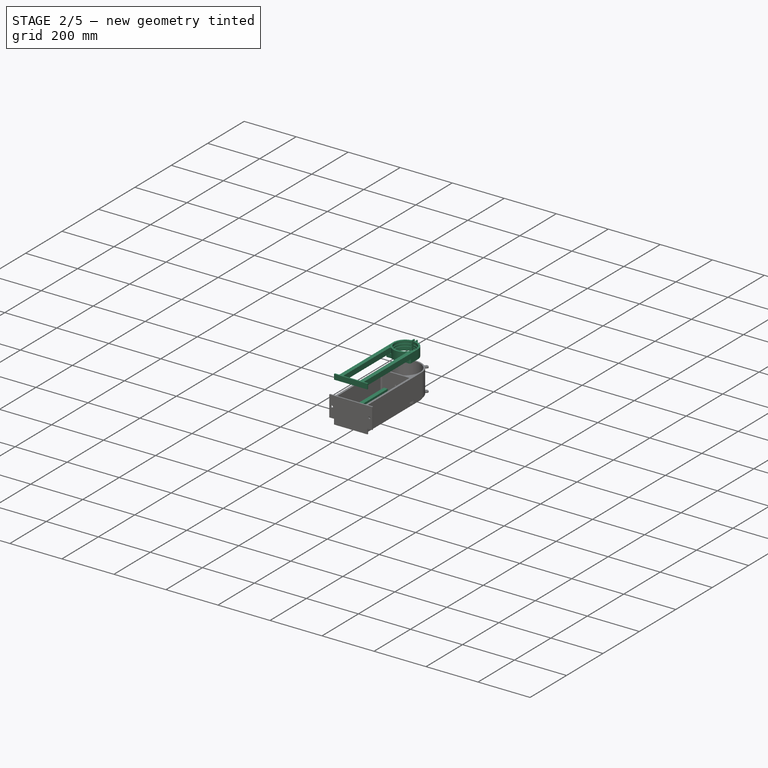
[diagram: stage 2 of 5 — iso view after this stage's code; geometry added in this stage tinted green]
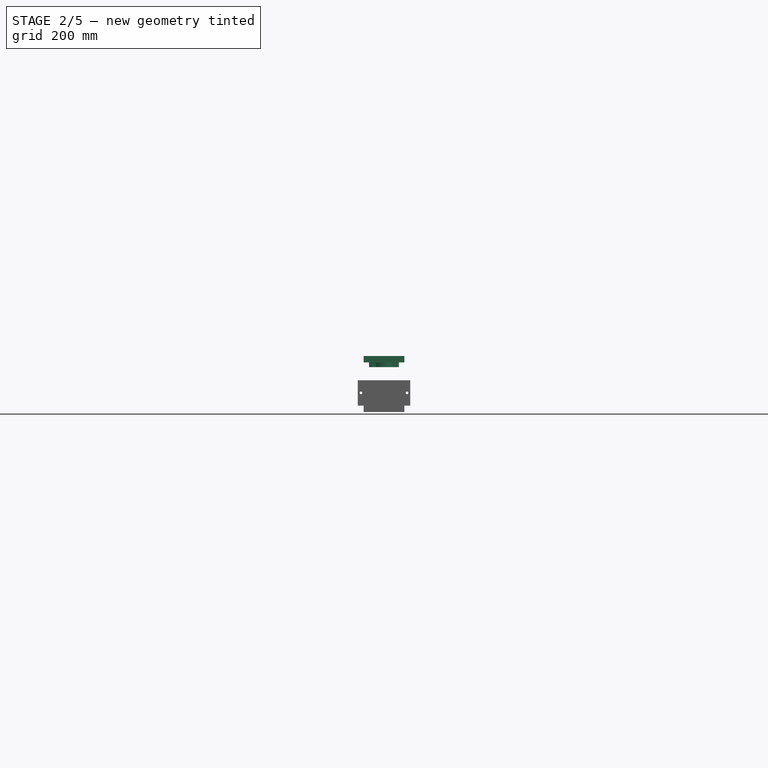
[diagram: stage 2 of 5 — front view after this stage's code; geometry added in this stage tinted green]
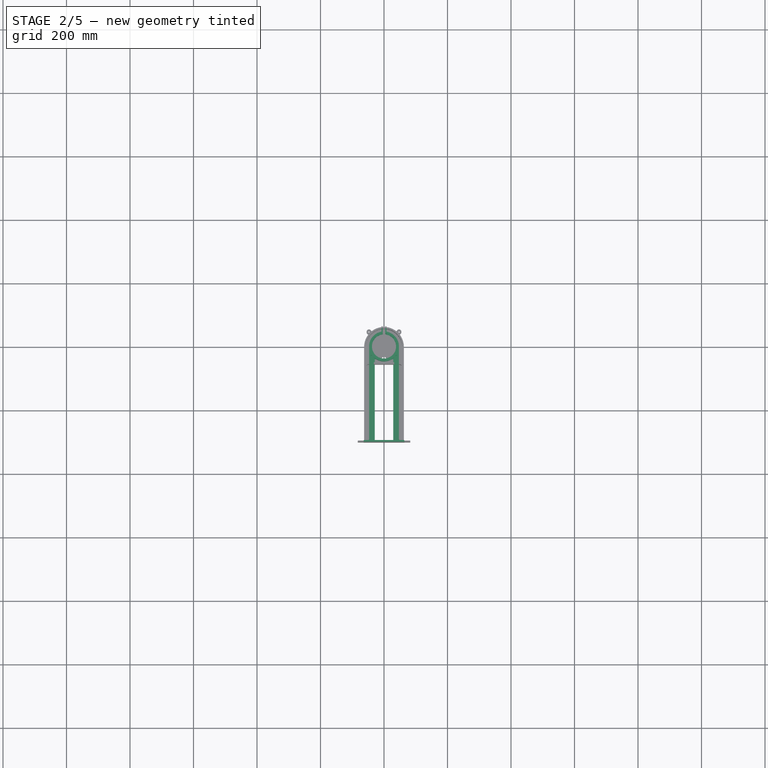
[diagram: stage 2 of 5 — top view after this stage's code; geometry added in this stage tinted green]
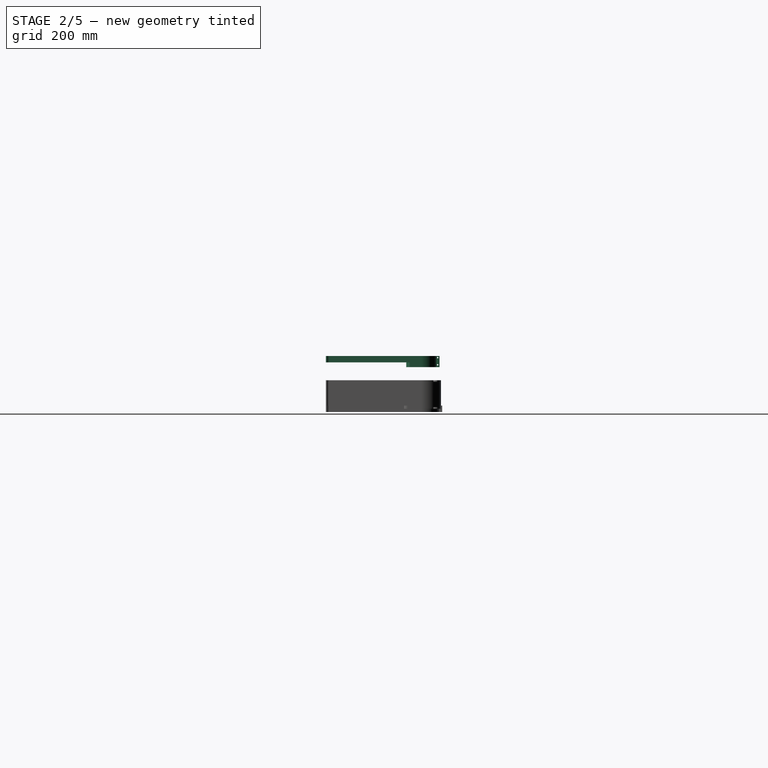
[diagram: stage 2 of 5 — right view after this stage's code; geometry added in this stage tinted green]
FEATURE [PartDesign::Body] Body092  label="angled_connector004"
  Group = -> [CopyPad161009,Sketch218,Pad186,Sketch217,Pocket025,Sketch219,Pocket026]
  Origin = -> Origin092
  Placement = pos=(0,0,0) rot=(0,0,-1;1.5708rad)
  Tip = -> Pocket026
FEATURE [Sketcher::SketchObject] Sketch121  label="outline"
  FullyConstrained = true
  MapMode = 5
  Support = -> [XY_Plane035]
  expr: Constraints[54] = <<parameters>>.support_outer_diam + 40
  expr: Constraints[16] = <<parameters>>.support_outer_diam
  expr: Constraints[19] = <<parameters>>.support_outer_diam
  sketch-geometry (42):
    g0: ArcOfCircle CenterX=0 CenterY=0 CenterZ=0 NormalX=0 NormalY=0 NormalZ=1 AngleXU=0 Radius=40.5 StartAngle=1.72652 EndAngle=7.69826
    g1: LineSegment StartX=-8 StartY=44.8999 StartZ=0 EndX=-8 EndY=53.8999 EndZ=0
    g2: LineSegment StartX=-4 StartY=42.6773 StartZ=0 EndX=-4 EndY=53.8999 EndZ=0
    g3: LineSegment StartX=4 StartY=42.6773 StartZ=0 EndX=4 EndY=53.8999 EndZ=0
    g4: LineSegment StartX=8 StartY=44.8999 StartZ=0 EndX=8 EndY=53.8999 EndZ=0
    g5: LineSegment StartX=-5 StartY=54.8999 StartZ=0 EndX=-7 EndY=54.8999 EndZ=0
    g6: LineSegment StartX=5 StartY=54.8999 StartZ=0 EndX=7 EndY=54.8999 EndZ=0
    g7: ArcOfCircle CenterX=0 CenterY=0 CenterZ=0 NormalX=0 NormalY=0 NormalZ=1 AngleXU=0 Radius=44 StartAngle=1.78994 EndAngle=3.14159
    g8: ArcOfCircle CenterX=0 CenterY=0 CenterZ=0 NormalX=0 NormalY=0 NormalZ=1 AngleXU=0 Radius=44 StartAngle=0 EndAngle=1.35166
    g9: LineSegment StartX=-64 StartY=-300 StartZ=0 EndX=64 EndY=-300 EndZ=0
    g10: LineSegment StartX=-26 StartY=-295 StartZ=0 EndX=26 EndY=-295 EndZ=0
    g11: LineSegment StartX=29 StartY=-292 StartZ=0 EndX=29 EndY=-35.2278 EndZ=0
    g12: LineSegment StartX=-29 StartY=-292 StartZ=0 EndX=-29 EndY=-35.2278 EndZ=0
    g13: ArcOfCircle CenterX=0 CenterY=0 CenterZ=0 NormalX=0 NormalY=0 NormalZ=1 AngleXU=0 Radius=44 StartAngle=4.04081 EndAngle=5.38397
    g14: ArcOfCircle CenterX=6.7 CenterY=42.6773 CenterZ=0 NormalX=0 NormalY=0 NormalZ=1 AngleXU=0 Radius=2.7 StartAngle=3.14159 EndAngle=4.55667
    g15: ArcOfCircle CenterX=10 CenterY=44.8999 CenterZ=0 NormalX=0 NormalY=0 NormalZ=1 AngleXU=0 Radius=2 StartAngle=3.14159 EndAngle=4.49325
    g16: ArcOfCircle CenterX=-10 CenterY=44.8999 CenterZ=0 NormalX=0 NormalY=0 NormalZ=1 AngleXU=0 Radius=2 StartAngle=4.93153 EndAngle=6.28319
    g17: ArcOfCircle CenterX=-6.7 CenterY=42.6773 CenterZ=0 NormalX=0 NormalY=0 NormalZ=1 AngleXU=0 Radius=2.7 StartAngle=4.86811 EndAngle=6.28319
    g18: ArcOfCircle CenterX=-7 CenterY=53.8999 CenterZ=0 NormalX=0 NormalY=0 NormalZ=1 AngleXU=0 Radius=1 StartAngle=1.5708 EndAngle=3.14159
    g19: ArcOfCircle CenterX=-5 CenterY=53.8999 CenterZ=0 NormalX=0 NormalY=0 NormalZ=1 AngleXU=0 Radius=1 StartAngle=3.5e-15 EndAngle=1.5708
    g20: ArcOfCircle CenterX=5 CenterY=53.8999 CenterZ=0 NormalX=0 NormalY=0 NormalZ=1 AngleXU=0 Radius=1 StartAngle=1.5708 EndAngle=3.14159
    g21: ArcOfCircle CenterX=7 CenterY=53.8999 CenterZ=0 NormalX=0 NormalY=0 NormalZ=1 AngleXU=0 Radius=1 StartAngle=-2.7e-15 EndAngle=1.5708
    g22: ArcOfCircle CenterX=28 CenterY=-35.2278 CenterZ=0 NormalX=0 NormalY=0 NormalZ=1 AngleXU=0 Radius=1 StartAngle=0 EndAngle=2.24237
    g23: ArcOfCircle CenterX=-28 CenterY=-35.2278 CenterZ=0 NormalX=0 NormalY=0 NormalZ=1 AngleXU=0 Radius=1 StartAngle=0.899218 EndAngle=3.14159
    g24: ArcOfCircle CenterX=-26 CenterY=-292 CenterZ=0 NormalX=0 NormalY=0 NormalZ=1 AngleXU=0 Radius=3 StartAngle=3.14159 EndAngle=4.71239
    g25: ArcOfCircle CenterX=26 CenterY=-292 CenterZ=0 NormalX=0 NormalY=0 NormalZ=1 AngleXU=0 Radius=3 StartAngle=4.71239 EndAngle=6.28319
    g26: LineSegment StartX=44 StartY=0 StartZ=0 EndX=44 EndY=-292 EndZ=0
    g27: LineSegment StartX=47 StartY=-295 StartZ=0 EndX=63 EndY=-295 EndZ=0
    g28: LineSegment StartX=-44 StartY=5.4e-15 StartZ=0 EndX=-44 EndY=-292 EndZ=0
    g29: LineSegment StartX=-47 StartY=-295 StartZ=0 EndX=-63 EndY=-295 EndZ=0
    g30: LineSegment StartX=-64 StartY=-300 StartZ=0 EndX=-64 EndY=-296 EndZ=0
    g31: LineSegment StartX=64 StartY=-300 StartZ=0 EndX=64 EndY=-296 EndZ=0
    g32: ArcOfCircle CenterX=47 CenterY=-292 CenterZ=0 NormalX=0 NormalY=0 NormalZ=1 AngleXU=0 Radius=3 StartAngle=3.14159 EndAngle=4.71239
    g33: ArcOfCircle CenterX=63 CenterY=-296 CenterZ=0 NormalX=0 NormalY=0 NormalZ=1 AngleXU=0 Radius=1 StartAngle=-5.3e-15 EndAngle=1.5708
    g34: ArcOfCircle CenterX=-47 CenterY=-292 CenterZ=0 NormalX=0 NormalY=0 NormalZ=1 AngleXU=0 Radius=3 StartAngle=4.71239 EndAngle=6.28319
    g35: ArcOfCircle CenterX=-63 CenterY=-296 CenterZ=0 NormalX=0 NormalY=0 NormalZ=1 AngleXU=0 Radius=1 StartAngle=1.5708 EndAngle=3.14159
    g36: LineSegment StartX=-4 StartY=53.8999 StartZ=0 EndX=4 EndY=53.8999 EndZ=0
    g37: LineSegment StartX=-8 StartY=44.8999 StartZ=0 EndX=8 EndY=44.8999 EndZ=0
    g38: LineSegment StartX=9.56522 StartY=42.9477 StartZ=0 EndX=-9.56522 EndY=42.9477 EndZ=0
    g39: LineSegment StartX=64 StartY=-296 StartZ=0 EndX=-64 EndY=-296 EndZ=0
    g40: LineSegment StartX=-44 StartY=-292 StartZ=0 EndX=-29 EndY=-292 EndZ=0
    g41: LineSegment StartX=29 StartY=-292 StartZ=0 EndX=44 EndY=-292 EndZ=0
  constraints (104):
    c: Coincident(g0,g-1)
    c: Vertical(g1)
    c: Vertical(g2)
    c: Vertical(g3)
    c: Vertical(g4)
    c: Horizontal(g6)
    c: Horizontal(g5)
    c: Coincident(g7,g0)
    c: PointOnObject(g7,g-1)
    c: Coincident(g8,g0)
    c: PointOnObject(g8,g-1)
    c: Horizontal(g9)
    c: Horizontal(g10)
    c: Vertical(g11)
    c: Vertical(g12)
    c: Coincident(g13,g0)
    c: Diameter(g8) = 88
    c: Equal(g8,g7)
    c: DistanceY(g9,g8) = 300
    c: Diameter(g13) = 88
    c: Tangent(g0,g14) = 1.5708
    c: Tangent(g3,g14) = 1.5708
    c: Tangent(g8,g15) = 1.5708
    c: Tangent(g4,g15) = 1.5708
    c: Tangent(g1,g16) = -1.5708
    c: Tangent(g7,g16) = 1.5708
    c: Tangent(g2,g17) = -1.5708
    c: Tangent(g0,g17) = 1.5708
    c: Tangent(g1,g18) = 1.5708
    c: Tangent(g5,g18) = -1.5708
    c: Tangent(g2,g19) = -1.5708
    c: Tangent(g5,g19) = -1.5708
    c: Tangent(g6,g20) = 1.5708
    c: Tangent(g3,g20) = 1.5708
    c: Tangent(g4,g21) = -1.5708
    c: Tangent(g6,g21) = 1.5708
    c: Tangent(g13,g22) = 1.5708
    c: Tangent(g11,g22) = -1.5708
    c: Tangent(g13,g23) = 1.5708
    c: Tangent(g12,g23) = 1.5708
    c: Tangent(g10,g24) = -1.5708
    c: Tangent(g12,g24) = 1.5708
    c: Tangent(g11,g25) = -1.5708
    c: Tangent(g10,g25) = -1.5708
    c: Coincident(g26,g8)
    c: Vertical(g26)
    c: Horizontal(g27)
    c: Coincident(g28,g7)
    c: Vertical(g28)
    c: Horizontal(g29)
    c: Coincident(g30,g9)
    c: Vertical(g30)
    c: Coincident(g31,g9)
    c: Vertical(g31)
    c: DistanceX(g9,g9) = 128
    c: Radius(g21) = 1
    c: Equal(g21,g20)
    c: Equal(g20,g19)
    c: Equal(g19,g18)
    c: Radius(g15) = 2
    c: Radius(g14) = 2.7
    c: Equal(g16,g15)
    c: Equal(g17,g14)
    c: Radius(g22) = 1
    c: Equal(g23,g22)
    c: Radius(g25) = 3
    c: Equal(g24,g25)
    c: Diameter(g0) = 81
    c: Tangent(g27,g32) = -1.5708
    c: Tangent(g26,g32) = -1.5708
    c: Tangent(g27,g33) = 1.5708
    c: Tangent(g31,g33) = -1.5708
    c: Tangent(g29,g34) = 1.5708
    c: Tangent(g28,g34) = 1.5708
    c: Tangent(g30,g35) = 1.5708
    c: Tangent(g29,g35) = -1.5708
    c: Radius(g35) = 1
    c: Equal(g33,g35)
    c: Equal(g34,g32)
    c: Coincident(g36,g2)
    c: Coincident(g36,g3)
    c: Horizontal(g36)
    c: Coincident(g37,g1)
    c: Coincident(g37,g4)
    c: Horizontal(g37)
    c: Coincident(g38,g8)
    c: Coincident(g38,g7)
    c: Equal(g34,g24)
    c: Coincident(g39,g31)
    c: Coincident(g39,g30)
    c: DistanceY(g9,g29) = 5
    c: DistanceX(g0,g9) = 64
    c: DistanceX(g1,g2) = 4
    c: DistanceX(g3,g4) = 4
    c: DistanceY(g1,g5) = 10
    c: DistanceX(g2,g3) = 8
    c: Coincident(g40,g28)
    c: Coincident(g40,g12)
    c: Horizontal(g40)
    c: Coincident(g41,g11)
    c: Coincident(g41,g26)
    c: Horizontal(g41)
    c: DistanceX(g41,g41) = 15
    c: DistanceX(g40,g40) = 15
FEATURE [PartDesign::Pad] Pad237  label="outline001"
  Direction = (1,1,1)
  Length = 30
  Length2 = 100
  Profile = -> Sketch121
  Type = 0
FEATURE [Sketcher::SketchObject] Sketch296
  FullyConstrained = true
  MapMode = 5
  Placement = pos=(-8,0,0) rot=(0.57735,-0.57735,-0.57735;2.0944rad)
  Support = -> [Pad237]
  expr: Constraints[1] = <<parameters>>.support_outer_diam / 2 + 5
  expr: Constraints[0] = <<parameters>>.m4
  sketch-geometry (1):
    g0: Circle CenterX=-49 CenterY=15 CenterZ=0 NormalX=0 NormalY=0 NormalZ=1 AngleXU=0 Radius=2.25
  constraints (3):
    c: Diameter(g0) = 4.5
    c: DistanceX(g0,g-1) = 49
    c: DistanceY(g-1,g0) = 15
FEATURE [PartDesign::Pocket] Pocket049  label="top_holes"
  BaseFeature = -> Pad237
  Length = 5
  Length2 = 100
  Profile = -> Sketch296
  Type = 1
FEATURE [Sketcher::SketchObject] Sketch297
  FullyConstrained = true
  MapMode = 5
  Placement = pos=(0,-295,0) rot=(0,0.707107,0.707107;3.14159rad)
  Support = -> [Pocket049]
  expr: Constraints[6] = <<parameters>>.support_outer_diam / 2 + 11
  expr: Constraints[5] = <<parameters>>.support_outer_diam / 2 + 11
  expr: Constraints[4] = <<parameters>>.m8
  expr: Constraints[3] = <<parameters>>.m8
  sketch-geometry (3):
    g0: Circle CenterX=-55 CenterY=15 CenterZ=0 NormalX=0 NormalY=0 NormalZ=1 AngleXU=0 Radius=4.1
    g1: Circle CenterX=55 CenterY=15 CenterZ=0 NormalX=0 NormalY=0 NormalZ=1 AngleXU=0 Radius=4.1
    g2: LineSegment StartX=-55 StartY=15 StartZ=0 EndX=55 EndY=15 EndZ=0
  constraints (8):
    c: Coincident(g2,g0)
    c: Coincident(g2,g1)
    c: Horizontal(g2)
    c: Diameter(g0) = 8.2
    c: Diameter(g1) = 8.2
    c: DistanceX(g0,g-1) = 55
    c: DistanceX(g-1,g1) = 55
    c: DistanceY(g-1,g0) = 15
FEATURE [PartDesign::Pocket] Pocket050
  BaseFeature = -> Pocket049
  Length = 5
  Length2 = 100
  Profile = -> Sketch297
  Type = 0
FEATURE [PartDesign::Body] Body093  label="pipesupport002"
  BaseFeature = -> Body035
  Group = -> [Clone]
  Origin = -> Origin093
  Placement = pos=(0,0,-669) rot=(0,0,1;0rad)
  Tip = -> Clone
FEATURE [Sketcher::SketchObject] Sketch300  label="outline002"
  FullyConstrained = true
  MapMode = 5
  Support = -> [XY_Plane094]
  expr: Constraints[67] = <<parameters>>.support_inner_diam
  expr: Constraints[19] = <<parameters>>.ws_diam
  expr: Constraints[16] = <<parameters>>.ws_diam
  expr: Constraints[54] = <<parameters>>.support_outer_diam + 40
  sketch-geometry (42):
    g0: ArcOfCircle CenterX=0 CenterY=0 CenterZ=0 NormalX=0 NormalY=0 NormalZ=1 AngleXU=0 Radius=40.5 StartAngle=1.75155 EndAngle=7.67322
    g1: LineSegment StartX=-8 StartY=47.9687 StartZ=0 EndX=-8 EndY=56.9687 EndZ=0
    g2: LineSegment StartX=-4 StartY=43.775 StartZ=0 EndX=-4 EndY=56.9687 EndZ=0
    g3: LineSegment StartX=4 StartY=43.775 StartZ=0 EndX=4 EndY=56.9687 EndZ=0
    g4: LineSegment StartX=8 StartY=47.9687 StartZ=0 EndX=8 EndY=56.9687 EndZ=0
    g5: LineSegment StartX=-5 StartY=57.9687 StartZ=0 EndX=-7 EndY=57.9687 EndZ=0
    g6: LineSegment StartX=5 StartY=57.9687 StartZ=0 EndX=7 EndY=57.9687 EndZ=0
    g7: ArcOfCircle CenterX=0 CenterY=0 CenterZ=0 NormalX=0 NormalY=0 NormalZ=1 AngleXU=0 Radius=47 StartAngle=1.77632 EndAngle=3.14159
    g8: ArcOfCircle CenterX=0 CenterY=0 CenterZ=0 NormalX=0 NormalY=0 NormalZ=1 AngleXU=0 Radius=47 StartAngle=0 EndAngle=1.36527
    g9: LineSegment StartX=-64 StartY=-300 StartZ=0 EndX=64 EndY=-300 EndZ=0
    g10: LineSegment StartX=-29 StartY=-295 StartZ=0 EndX=29 EndY=-295 EndZ=0
    g11: LineSegment StartX=32 StartY=-292 StartZ=0 EndX=32 EndY=-36.647 EndZ=0
    g12: LineSegment StartX=-32 StartY=-292 StartZ=0 EndX=-32 EndY=-36.647 EndZ=0
    g13: ArcOfCircle CenterX=0 CenterY=0 CenterZ=0 NormalX=0 NormalY=0 NormalZ=1 AngleXU=0 Radius=47 StartAngle=4.01027 EndAngle=5.4145
    g14: ArcOfCircle CenterX=8 CenterY=43.775 CenterZ=0 NormalX=0 NormalY=0 NormalZ=1 AngleXU=0 Radius=4 StartAngle=3.14159 EndAngle=4.53163
    g15: ArcOfCircle CenterX=10 CenterY=47.9687 CenterZ=0 NormalX=0 NormalY=0 NormalZ=1 AngleXU=0 Radius=2 StartAngle=3.14159 EndAngle=4.50686
    g16: ArcOfCircle CenterX=-10 CenterY=47.9687 CenterZ=0 NormalX=0 NormalY=0 NormalZ=1 AngleXU=0 Radius=2 StartAngle=4.91791 EndAngle=6.28319
    g17: ArcOfCircle CenterX=-8 CenterY=43.775 CenterZ=0 NormalX=0 NormalY=0 NormalZ=1 AngleXU=0 Radius=4 StartAngle=4.89315 EndAngle=6.28319
    g18: ArcOfCircle CenterX=-7 CenterY=56.9687 CenterZ=0 NormalX=0 NormalY=0 NormalZ=1 AngleXU=0 Radius=1 StartAngle=1.5708 EndAngle=3.14159
    g19: ArcOfCircle CenterX=-5 CenterY=56.9687 CenterZ=0 NormalX=0 NormalY=0 NormalZ=1 AngleXU=0 Radius=1 StartAngle=-2.7e-15 EndAngle=1.5708
    g20: ArcOfCircle CenterX=5 CenterY=56.9687 CenterZ=0 NormalX=0 NormalY=0 NormalZ=1 AngleXU=0 Radius=1 StartAngle=1.5708 EndAngle=3.14159
    g21: ArcOfCircle CenterX=7 CenterY=56.9687 CenterZ=0 NormalX=0 NormalY=0 NormalZ=1 AngleXU=0 Radius=1 StartAngle=-2.7e-15 EndAngle=1.5708
    g22: ArcOfCircle CenterX=31 CenterY=-36.647 CenterZ=0 NormalX=0 NormalY=0 NormalZ=1 AngleXU=0 Radius=1 StartAngle=3.4e-15 EndAngle=2.27291
    g23: ArcOfCircle CenterX=-31 CenterY=-36.647 CenterZ=0 NormalX=0 NormalY=0 NormalZ=1 AngleXU=0 Radius=1 StartAngle=0.868682 EndAngle=3.14159
    g24: ArcOfCircle CenterX=-29 CenterY=-292 CenterZ=0 NormalX=0 NormalY=0 NormalZ=1 AngleXU=0 Radius=3 StartAngle=3.14159 EndAngle=4.71239
    g25: ArcOfCircle CenterX=29 CenterY=-292 CenterZ=0 NormalX=0 NormalY=0 NormalZ=1 AngleXU=0 Radius=3 StartAngle=4.71239 EndAngle=6.28319
    g26: LineSegment StartX=47 StartY=0 StartZ=0 EndX=47 EndY=-292 EndZ=0
    g27: LineSegment StartX=50 StartY=-295 StartZ=0 EndX=63 EndY=-295 EndZ=0
    g28: LineSegment StartX=-47 StartY=5.8e-15 StartZ=0 EndX=-47 EndY=-292 EndZ=0
    g29: LineSegment StartX=-50 StartY=-295 StartZ=0 EndX=-63 EndY=-295 EndZ=0
    g30: LineSegment StartX=-64 StartY=-300 StartZ=0 EndX=-64 EndY=-296 EndZ=0
    g31: LineSegment StartX=64 StartY=-300 StartZ=0 EndX=64 EndY=-296 EndZ=0
    g32: ArcOfCircle CenterX=50 CenterY=-292 CenterZ=0 NormalX=0 NormalY=0 NormalZ=1 AngleXU=0 Radius=3 StartAngle=3.14159 EndAngle=4.71239
    g33: ArcOfCircle CenterX=63 CenterY=-296 CenterZ=0 NormalX=0 NormalY=0 NormalZ=1 AngleXU=0 Radius=1 StartAngle=-4.4e-15 EndAngle=1.5708
    g34: ArcOfCircle CenterX=-50 CenterY=-292 CenterZ=0 NormalX=0 NormalY=0 NormalZ=1 AngleXU=0 Radius=3 StartAngle=4.71239 EndAngle=6.28319
    g35: ArcOfCircle CenterX=-63 CenterY=-296 CenterZ=0 NormalX=0 NormalY=0 NormalZ=1 AngleXU=0 Radius=1 StartAngle=1.5708 EndAngle=3.14159
    g36: LineSegment StartX=-4 StartY=56.9687 StartZ=0 EndX=4 EndY=56.9687 EndZ=0
    g37: LineSegment StartX=-8 StartY=47.9687 StartZ=0 EndX=8 EndY=47.9687 EndZ=0
    g38: LineSegment StartX=9.59184 StartY=46.0108 StartZ=0 EndX=-9.59184 EndY=46.0108 EndZ=0
    g39: LineSegment StartX=64 StartY=-296 StartZ=0 EndX=-64 EndY=-296 EndZ=0
    g40: LineSegment StartX=-47 StartY=-292 StartZ=0 EndX=-32 EndY=-292 EndZ=0
    g41: LineSegment StartX=32 StartY=-292 StartZ=0 EndX=47 EndY=-292 EndZ=0
  constraints (104):
    c: Coincident(g0,g-1)
    c: Vertical(g1)
    c: Vertical(g2)
    c: Vertical(g3)
    c: Vertical(g4)
    c: Horizontal(g6)
    c: Horizontal(g5)
    c: Coincident(g7,g0)
    c: PointOnObject(g7,g-1)
    c: Coincident(g8,g0)
    c: PointOnObject(g8,g-1)
    c: Horizontal(g9)
    c: Horizontal(g10)
    c: Vertical(g11)
    c: Vertical(g12)
    c: Coincident(g13,g0)
    c: Diameter(g8) = 94
    c: Equal(g8,g7)
    c: DistanceY(g9,g8) = 300
    c: Diameter(g13) = 94
    c: Tangent(g0,g14) = 1.5708
    c: Tangent(g3,g14) = 1.5708
    c: Tangent(g8,g15) = 1.5708
    c: Tangent(g4,g15) = 1.5708
    c: Tangent(g1,g16) = -1.5708
    c: Tangent(g7,g16) = 1.5708
    c: Tangent(g2,g17) = -1.5708
    c: Tangent(g0,g17) = 1.5708
    c: Tangent(g1,g18) = 1.5708
    c: Tangent(g5,g18) = -1.5708
    c: Tangent(g2,g19) = -1.5708
    c: Tangent(g5,g19) = -1.5708
    c: Tangent(g6,g20) = 1.5708
    c: Tangent(g3,g20) = 1.5708
    c: Tangent(g4,g21) = -1.5708
    c: Tangent(g6,g21) = 1.5708
    c: Tangent(g13,g22) = 1.5708
    c: Tangent(g11,g22) = -1.5708
    c: Tangent(g13,g23) = 1.5708
    c: Tangent(g12,g23) = 1.5708
    c: Tangent(g10,g24) = -1.5708
    c: Tangent(g12,g24) = 1.5708
    c: Tangent(g11,g25) = -1.5708
    c: Tangent(g10,g25) = -1.5708
    c: Coincident(g26,g8)
    c: Vertical(g26)
    c: Horizontal(g27)
    c: Coincident(g28,g7)
    c: Vertical(g28)
    c: Horizontal(g29)
    c: Coincident(g30,g9)
    c: Vertical(g30)
    c: Coincident(g31,g9)
    c: Vertical(g31)
    c: DistanceX(g9,g9) = 128
    c: Radius(g21) = 1
    c: Equal(g21,g20)
    c: Equal(g20,g19)
    c: Equal(g19,g18)
    c: Radius(g15) = 2
    c: Radius(g14) = 4
    c: Equal(g16,g15)
    c: Equal(g17,g14)
    c: Radius(g22) = 1
    c: Equal(g23,g22)
    c: Radius(g25) = 3
    c: Equal(g24,g25)
    c: Diameter(g0) = 81
    c: Tangent(g27,g32) = -1.5708
    c: Tangent(g26,g32) = -1.5708
    c: Tangent(g27,g33) = 1.5708
    c: Tangent(g31,g33) = -1.5708
    c: Tangent(g29,g34) = 1.5708
    c: Tangent(g28,g34) = 1.5708
    c: Tangent(g30,g35) = 1.5708
    c: Tangent(g29,g35) = -1.5708
    c: Radius(g35) = 1
    c: Equal(g33,g35)
    c: Equal(g34,g32)
    c: Coincident(g36,g2)
    c: Coincident(g36,g3)
    c: Horizontal(g36)
    c: Coincident(g37,g1)
    c: Coincident(g37,g4)
    c: Horizontal(g37)
    c: Coincident(g38,g8)
    c: Coincident(g38,g7)
    c: Equal(g34,g24)
    c: Coincident(g39,g31)
    c: Coincident(g39,g30)
    c: DistanceY(g9,g29) = 5
    c: DistanceX(g0,g9) = 64
    c: DistanceX(g1,g2) = 4
    c: DistanceX(g3,g4) = 4
    c: DistanceY(g1,g5) = 10
    c: DistanceX(g2,g3) = 8
    c: Coincident(g40,g28)
    c: Coincident(g40,g12)
    c: Horizontal(g40)
    c: Coincident(g41,g11)
    c: Coincident(g41,g26)
    c: Horizontal(g41)
    c: DistanceX(g41,g41) = 15
    c: DistanceX(g40,g40) = 15
FEATURE [PartDesign::Pad] Pad238  label="outline003"
  Direction = (1,1,1)
  Length = 10
  Length2 = 100
  Profile = -> Sketch300
  Type = 0
FEATURE [Sketcher::SketchObject] Sketch301  label="outline004"
  FullyConstrained = true
  MapMode = 5
  Support = -> [XY_Plane094]
  expr: Constraints[67] = <<parameters>>.inner_diam
  expr: Constraints[54] = <<parameters>>.support_outer_diam + 40
  expr: Constraints[16] = <<parameters>>.ws_diam
  expr: Constraints[19] = <<parameters>>.ws_diam
  sketch-geometry (42):
    g0: ArcOfCircle CenterX=0 CenterY=0 CenterZ=0 NormalX=0 NormalY=0 NormalZ=1 AngleXU=0 Radius=38 StartAngle=1.76244 EndAngle=7.66233
    g1: LineSegment StartX=-8 StartY=47.9687 StartZ=0 EndX=-8 EndY=56.9687 EndZ=0
    g2: LineSegment StartX=-4 StartY=41.2311 StartZ=0 EndX=-4 EndY=56.9687 EndZ=0
    g3: LineSegment StartX=4 StartY=41.2311 StartZ=0 EndX=4 EndY=56.9687 EndZ=0
    g4: LineSegment StartX=8 StartY=47.9687 StartZ=0 EndX=8 EndY=56.9687 EndZ=0
    g5: LineSegment StartX=-5 StartY=57.9687 StartZ=0 EndX=-7 EndY=57.9687 EndZ=0
    g6: LineSegment StartX=5 StartY=57.9687 StartZ=0 EndX=7 EndY=57.9687 EndZ=0
    g7: ArcOfCircle CenterX=0 CenterY=0 CenterZ=0 NormalX=0 NormalY=0 NormalZ=1 AngleXU=0 Radius=47 StartAngle=1.77632 EndAngle=3.14159
    g8: ArcOfCircle CenterX=0 CenterY=0 CenterZ=0 NormalX=0 NormalY=0 NormalZ=1 AngleXU=0 Radius=47 StartAngle=0 EndAngle=1.36527
    g9: LineSegment StartX=-64 StartY=-300 StartZ=0 EndX=64 EndY=-300 EndZ=0
    g10: LineSegment StartX=-29 StartY=-295 StartZ=0 EndX=29 EndY=-295 EndZ=0
    g11: LineSegment StartX=32 StartY=-292 StartZ=0 EndX=32 EndY=-36.647 EndZ=0
    g12: LineSegment StartX=-32 StartY=-292 StartZ=0 EndX=-32 EndY=-36.647 EndZ=0
    g13: ArcOfCircle CenterX=0 CenterY=0 CenterZ=0 NormalX=0 NormalY=0 NormalZ=1 AngleXU=0 Radius=47 StartAngle=4.01027 EndAngle=5.4145
    g14: ArcOfCircle CenterX=8 CenterY=41.2311 CenterZ=0 NormalX=0 NormalY=0 NormalZ=1 AngleXU=0 Radius=4 StartAngle=3.14159 EndAngle=4.52074
    g15: ArcOfCircle CenterX=10 CenterY=47.9687 CenterZ=0 NormalX=0 NormalY=0 NormalZ=1 AngleXU=0 Radius=2 StartAngle=3.14159 EndAngle=4.50686
    g16: ArcOfCircle CenterX=-10 CenterY=47.9687 CenterZ=0 NormalX=0 NormalY=0 NormalZ=1 AngleXU=0 Radius=2 StartAngle=4.91791 EndAngle=6.28319
    g17: ArcOfCircle CenterX=-8 CenterY=41.2311 CenterZ=0 NormalX=0 NormalY=0 NormalZ=1 AngleXU=0 Radius=4 StartAngle=4.90404 EndAngle=6.28319
    g18: ArcOfCircle CenterX=-7 CenterY=56.9687 CenterZ=0 NormalX=0 NormalY=0 NormalZ=1 AngleXU=0 Radius=1 StartAngle=1.5708 EndAngle=3.14159
    g19: ArcOfCircle CenterX=-5 CenterY=56.9687 CenterZ=0 NormalX=0 NormalY=0 NormalZ=1 AngleXU=0 Radius=1 StartAngle=3.3e-15 EndAngle=1.5708
    g20: ArcOfCircle CenterX=5 CenterY=56.9687 CenterZ=0 NormalX=0 NormalY=0 NormalZ=1 AngleXU=0 Radius=1 StartAngle=1.5708 EndAngle=3.14159
    g21: ArcOfCircle CenterX=7 CenterY=56.9687 CenterZ=0 NormalX=0 NormalY=0 NormalZ=1 AngleXU=0 Radius=1 StartAngle=-2.7e-15 EndAngle=1.5708
    g22: ArcOfCircle CenterX=31 CenterY=-36.647 CenterZ=0 NormalX=0 NormalY=0 NormalZ=1 AngleXU=0 Radius=1 StartAngle=1.9e-15 EndAngle=2.27291
    g23: ArcOfCircle CenterX=-31 CenterY=-36.647 CenterZ=0 NormalX=0 NormalY=0 NormalZ=1 AngleXU=0 Radius=1 StartAngle=0.868682 EndAngle=3.14159
    g24: ArcOfCircle CenterX=-29 CenterY=-292 CenterZ=0 NormalX=0 NormalY=0 NormalZ=1 AngleXU=0 Radius=3 StartAngle=3.14159 EndAngle=4.71239
    g25: ArcOfCircle CenterX=29 CenterY=-292 CenterZ=0 NormalX=0 NormalY=0 NormalZ=1 AngleXU=0 Radius=3 StartAngle=4.71239 EndAngle=6.28319
    g26: LineSegment StartX=47 StartY=0 StartZ=0 EndX=47 EndY=-292 EndZ=0
    g27: LineSegment StartX=50 StartY=-295 StartZ=0 EndX=63 EndY=-295 EndZ=0
    g28: LineSegment StartX=-47 StartY=5.8e-15 StartZ=0 EndX=-47 EndY=-292 EndZ=0
    g29: LineSegment StartX=-50 StartY=-295 StartZ=0 EndX=-63 EndY=-295 EndZ=0
    g30: LineSegment StartX=-64 StartY=-300 StartZ=0 EndX=-64 EndY=-296 EndZ=0
    g31: LineSegment StartX=64 StartY=-300 StartZ=0 EndX=64 EndY=-296 EndZ=0
    g32: ArcOfCircle CenterX=50 CenterY=-292 CenterZ=0 NormalX=0 NormalY=0 NormalZ=1 AngleXU=0 Radius=3 StartAngle=3.14159 EndAngle=4.71239
    g33: ArcOfCircle CenterX=63 CenterY=-296 CenterZ=0 NormalX=0 NormalY=0 NormalZ=1 AngleXU=0 Radius=1 StartAngle=-5.3e-15 EndAngle=1.5708
    g34: ArcOfCircle CenterX=-50 CenterY=-292 CenterZ=0 NormalX=0 NormalY=0 NormalZ=1 AngleXU=0 Radius=3 StartAngle=4.71239 EndAngle=6.28319
    g35: ArcOfCircle CenterX=-63 CenterY=-296 CenterZ=0 NormalX=0 NormalY=0 NormalZ=1 AngleXU=0 Radius=1 StartAngle=1.5708 EndAngle=3.14159
    g36: LineSegment StartX=-4 StartY=56.9687 StartZ=0 EndX=4 EndY=56.9687 EndZ=0
    g37: LineSegment StartX=-8 StartY=47.9687 StartZ=0 EndX=8 EndY=47.9687 EndZ=0
    g38: LineSegment StartX=9.59184 StartY=46.0108 StartZ=0 EndX=-9.59184 EndY=46.0108 EndZ=0
    g39: LineSegment StartX=64 StartY=-296 StartZ=0 EndX=-64 EndY=-296 EndZ=0
    g40: LineSegment StartX=-47 StartY=-292 StartZ=0 EndX=-32 EndY=-292 EndZ=0
    g41: LineSegment StartX=32 StartY=-292 StartZ=0 EndX=47 EndY=-292 EndZ=0
  constraints (104):
    c: Coincident(g0,g-1)
    c: Vertical(g1)
    c: Vertical(g2)
    c: Vertical(g3)
    c: Vertical(g4)
    c: Horizontal(g6)
    c: Horizontal(g5)
    c: Coincident(g7,g0)
    c: PointOnObject(g7,g-1)
    c: Coincident(g8,g0)
    c: PointOnObject(g8,g-1)
    c: Horizontal(g9)
    c: Horizontal(g10)
    c: Vertical(g11)
    c: Vertical(g12)
    c: Coincident(g13,g0)
    c: Diameter(g8) = 94
    c: Equal(g8,g7)
    c: DistanceY(g9,g8) = 300
    c: Diameter(g13) = 94
    c: Tangent(g0,g14) = 1.5708
    c: Tangent(g3,g14) = 1.5708
    c: Tangent(g8,g15) = 1.5708
    c: Tangent(g4,g15) = 1.5708
    c: Tangent(g1,g16) = -1.5708
    c: Tangent(g7,g16) = 1.5708
    c: Tangent(g2,g17) = -1.5708
    c: Tangent(g0,g17) = 1.5708
    c: Tangent(g1,g18) = 1.5708
    c: Tangent(g5,g18) = -1.5708
    c: Tangent(g2,g19) = -1.5708
    c: Tangent(g5,g19) = -1.5708
    c: Tangent(g6,g20) = 1.5708
    c: Tangent(g3,g20) = 1.5708
    c: Tangent(g4,g21) = -1.5708
    c: Tangent(g6,g21) = 1.5708
    c: Tangent(g13,g22) = 1.5708
    c: Tangent(g11,g22) = -1.5708
    c: Tangent(g13,g23) = 1.5708
    c: Tangent(g12,g23) = 1.5708
    c: Tangent(g10,g24) = -1.5708
    c: Tangent(g12,g24) = 1.5708
    c: Tangent(g11,g25) = -1.5708
    c: Tangent(g10,g25) = -1.5708
    c: Coincident(g26,g8)
    c: Vertical(g26)
    c: Horizontal(g27)
    c: Coincident(g28,g7)
    c: Vertical(g28)
    c: Horizontal(g29)
    c: Coincident(g30,g9)
    c: Vertical(g30)
    c: Coincident(g31,g9)
    c: Vertical(g31)
    c: DistanceX(g9,g9) = 128
    c: Radius(g21) = 1
    c: Equal(g21,g20)
    c: Equal(g20,g19)
    c: Equal(g19,g18)
    c: Radius(g15) = 2
    c: Radius(g14) = 4
    c: Equal(g16,g15)
    c: Equal(g17,g14)
    c: Radius(g22) = 1
    c: Equal(g23,g22)
    c: Radius(g25) = 3
    c: Equal(g24,g25)
    c: Diameter(g0) = 76
    c: Tangent(g27,g32) = -1.5708
    c: Tangent(g26,g32) = -1.5708
    c: Tangent(g27,g33) = 1.5708
    c: Tangent(g31,g33) = -1.5708
    c: Tangent(g29,g34) = 1.5708
    c: Tangent(g28,g34) = 1.5708
    c: Tangent(g30,g35) = 1.5708
    c: Tangent(g29,g35) = -1.5708
    c: Radius(g35) = 1
    c: Equal(g33,g35)
    c: Equal(g34,g32)
    c: Coincident(g36,g2)
    c: Coincident(g36,g3)
    c: Horizontal(g36)
    c: Coincident(g37,g1)
    c: Coincident(g37,g4)
    c: Horizontal(g37)
    c: Coincident(g38,g8)
    c: Coincident(g38,g7)
    c: Equal(g34,g24)
    c: Coincident(g39,g31)
    c: Coincident(g39,g30)
    c: DistanceY(g9,g29) = 5
    c: DistanceX(g0,g9) = 64
    c: DistanceX(g1,g2) = 4
    c: DistanceX(g3,g4) = 4
    c: DistanceY(g1,g5) = 10
    c: DistanceX(g2,g3) = 8
    c: Coincident(g40,g28)
    c: Coincident(g40,g12)
    c: Horizontal(g40)
    c: Coincident(g41,g11)
    c: Coincident(g41,g26)
    c: Horizontal(g41)
    c: DistanceX(g41,g41) = 15
    c: DistanceX(g40,g40) = 15
FEATURE [PartDesign::Pad] Pad239  label="inner_section"
  BaseFeature = -> Pad238
  Direction = (1,1,1)
  Length = 5
  Length2 = 100
  Profile = -> Sketch301
  Reversed = true
  Type = 0
FEATURE [Sketcher::SketchObject] Sketch302  label="outline005"
  FullyConstrained = true
  MapMode = 5
  expr: Constraints[19] = <<parameters>>.ws_diam
  expr: Constraints[16] = <<parameters>>.ws_diam
  expr: Constraints[54] = <<parameters>>.support_outer_diam + 40
  expr: Constraints[67] = <<parameters>>.inner_diam
  sketch-geometry (42):
    g0: ArcOfCircle CenterX=0 CenterY=0 CenterZ=0 NormalX=0 NormalY=0 NormalZ=1 AngleXU=0 Radius=38 StartAngle=1.73617 EndAngle=7.68861
    g1: LineSegment StartX=-8 StartY=47.9687 StartZ=0 EndX=-8 EndY=56.9687 EndZ=0
    g2: LineSegment StartX=-4 StartY=40.1447 StartZ=0 EndX=-4 EndY=56.9687 EndZ=0
    g3: LineSegment StartX=4 StartY=40.1447 StartZ=0 EndX=4 EndY=56.9687 EndZ=0
    g4: LineSegment StartX=8 StartY=47.9687 StartZ=0 EndX=8 EndY=56.9687 EndZ=0
    g5: LineSegment StartX=-5 StartY=57.9687 StartZ=0 EndX=-7 EndY=57.9687 EndZ=0
    g6: LineSegment StartX=5 StartY=57.9687 StartZ=0 EndX=7 EndY=57.9687 EndZ=0
    g7: ArcOfCircle CenterX=0 CenterY=0 CenterZ=0 NormalX=0 NormalY=0 NormalZ=1 AngleXU=0 Radius=47 StartAngle=1.77632 EndAngle=3.14159
    g8: ArcOfCircle CenterX=0 CenterY=0 CenterZ=0 NormalX=0 NormalY=0 NormalZ=1 AngleXU=0 Radius=47 StartAngle=0 EndAngle=1.36527
    g9: LineSegment StartX=-64 StartY=-300 StartZ=0 EndX=64 EndY=-300 EndZ=0
    g10: LineSegment StartX=-29 StartY=-295 StartZ=0 EndX=29 EndY=-295 EndZ=0
    g11: LineSegment StartX=32 StartY=-292 StartZ=0 EndX=32 EndY=-36.647 EndZ=0
    g12: LineSegment StartX=-32 StartY=-292 StartZ=0 EndX=-32 EndY=-36.647 EndZ=0
    g13: ArcOfCircle CenterX=0 CenterY=0 CenterZ=0 NormalX=0 NormalY=0 NormalZ=1 AngleXU=0 Radius=47 StartAngle=4.01027 EndAngle=5.4145
    g14: ArcOfCircle CenterX=6.7 CenterY=40.1447 CenterZ=0 NormalX=0 NormalY=0 NormalZ=1 AngleXU=0 Radius=2.7 StartAngle=3.14159 EndAngle=4.54702
    g15: ArcOfCircle CenterX=10 CenterY=47.9687 CenterZ=0 NormalX=0 NormalY=0 NormalZ=1 AngleXU=0 Radius=2 StartAngle=3.14159 EndAngle=4.50686
    g16: ArcOfCircle CenterX=-10 CenterY=47.9687 CenterZ=0 NormalX=0 NormalY=0 NormalZ=1 AngleXU=0 Radius=2 StartAngle=4.91791 EndAngle=6.28319
    g17: ArcOfCircle CenterX=-6.7 CenterY=40.1447 CenterZ=0 NormalX=0 NormalY=0 NormalZ=1 AngleXU=0 Radius=2.7 StartAngle=4.87776 EndAngle=6.28319
    g18: ArcOfCircle CenterX=-7 CenterY=56.9687 CenterZ=0 NormalX=0 NormalY=0 NormalZ=1 AngleXU=0 Radius=1 StartAngle=1.5708 EndAngle=3.14159
    g19: ArcOfCircle CenterX=-5 CenterY=56.9687 CenterZ=0 NormalX=0 NormalY=0 NormalZ=1 AngleXU=0 Radius=1 StartAngle=3.3e-15 EndAngle=1.5708
    g20: ArcOfCircle CenterX=5 CenterY=56.9687 CenterZ=0 NormalX=0 NormalY=0 NormalZ=1 AngleXU=0 Radius=1 StartAngle=1.5708 EndAngle=3.14159
    g21: ArcOfCircle CenterX=7 CenterY=56.9687 CenterZ=0 NormalX=0 NormalY=0 NormalZ=1 AngleXU=0 Radius=1 StartAngle=-2.7e-15 EndAngle=1.5708
    g22: ArcOfCircle CenterX=31 CenterY=-36.647 CenterZ=0 NormalX=0 NormalY=0 NormalZ=1 AngleXU=0 Radius=1 StartAngle=6e-16 EndAngle=2.27291
    g23: ArcOfCircle CenterX=-31 CenterY=-36.647 CenterZ=0 NormalX=0 NormalY=0 NormalZ=1 AngleXU=0 Radius=1 StartAngle=0.868682 EndAngle=3.14159
    g24: ArcOfCircle CenterX=-29 CenterY=-292 CenterZ=0 NormalX=0 NormalY=0 NormalZ=1 AngleXU=0 Radius=3 StartAngle=3.14159 EndAngle=4.71239
    g25: ArcOfCircle CenterX=29 CenterY=-292 CenterZ=0 NormalX=0 NormalY=0 NormalZ=1 AngleXU=0 Radius=3 StartAngle=4.71239 EndAngle=6.28319
    g26: LineSegment StartX=47 StartY=0 StartZ=0 EndX=47 EndY=-292 EndZ=0
    g27: LineSegment StartX=50 StartY=-295 StartZ=0 EndX=63 EndY=-295 EndZ=0
    g28: LineSegment StartX=-47 StartY=5.8e-15 StartZ=0 EndX=-47 EndY=-292 EndZ=0
    g29: LineSegment StartX=-50 StartY=-295 StartZ=0 EndX=-63 EndY=-295 EndZ=0
    g30: LineSegment StartX=-64 StartY=-300 StartZ=0 EndX=-64 EndY=-296 EndZ=0
    g31: LineSegment StartX=64 StartY=-300 StartZ=0 EndX=64 EndY=-296 EndZ=0
    g32: ArcOfCircle CenterX=50 CenterY=-292 CenterZ=0 NormalX=0 NormalY=0 NormalZ=1 AngleXU=0 Radius=3 StartAngle=3.14159 EndAngle=4.71239
    g33: ArcOfCircle CenterX=63 CenterY=-296 CenterZ=0 NormalX=0 NormalY=0 NormalZ=1 AngleXU=0 Radius=1 StartAngle=-5.3e-15 EndAngle=1.5708
    g34: ArcOfCircle CenterX=-50 CenterY=-292 CenterZ=0 NormalX=0 NormalY=0 NormalZ=1 AngleXU=0 Radius=3 StartAngle=4.71239 EndAngle=6.28319
    g35: ArcOfCircle CenterX=-63 CenterY=-296 CenterZ=0 NormalX=0 NormalY=0 NormalZ=1 AngleXU=0 Radius=1 StartAngle=1.5708 EndAngle=3.14159
    g36: LineSegment StartX=-4 StartY=56.9687 StartZ=0 EndX=4 EndY=56.9687 EndZ=0
    g37: LineSegment StartX=-8 StartY=47.9687 StartZ=0 EndX=8 EndY=47.9687 EndZ=0
    g38: LineSegment StartX=9.59184 StartY=46.0108 StartZ=0 EndX=-9.59184 EndY=46.0108 EndZ=0
    g39: LineSegment StartX=64 StartY=-296 StartZ=0 EndX=-64 EndY=-296 EndZ=0
    g40: LineSegment StartX=-47 StartY=-292 StartZ=0 EndX=-32 EndY=-292 EndZ=0
    g41: LineSegment StartX=32 StartY=-292 StartZ=0 EndX=47 EndY=-292 EndZ=0
  constraints (104):
    c: Coincident(g0,g-1)
    c: Vertical(g1)
    c: Vertical(g2)
    c: Vertical(g3)
    c: Vertical(g4)
    c: Horizontal(g6)
    c: Horizontal(g5)
    c: Coincident(g7,g0)
    c: PointOnObject(g7,g-1)
    c: Coincident(g8,g0)
    c: PointOnObject(g8,g-1)
    c: Horizontal(g9)
    c: Horizontal(g10)
    c: Vertical(g11)
    c: Vertical(g12)
    c: Coincident(g13,g0)
    c: Diameter(g8) = 94
    c: Equal(g8,g7)
    c: DistanceY(g9,g8) = 300
    c: Diameter(g13) = 94
    c: Tangent(g0,g14) = 1.5708
    c: Tangent(g3,g14) = 1.5708
    c: Tangent(g8,g15) = 1.5708
    c: Tangent(g4,g15) = 1.5708
    c: Tangent(g1,g16) = -1.5708
    c: Tangent(g7,g16) = 1.5708
    c: Tangent(g2,g17) = -1.5708
    c: Tangent(g0,g17) = 1.5708
    c: Tangent(g1,g18) = 1.5708
    c: Tangent(g5,g18) = -1.5708
    c: Tangent(g2,g19) = -1.5708
    c: Tangent(g5,g19) = -1.5708
    c: Tangent(g6,g20) = 1.5708
    c: Tangent(g3,g20) = 1.5708
    c: Tangent(g4,g21) = -1.5708
    c: Tangent(g6,g21) = 1.5708
    c: Tangent(g13,g22) = 1.5708
    c: Tangent(g11,g22) = -1.5708
    c: Tangent(g13,g23) = 1.5708
    c: Tangent(g12,g23) = 1.5708
    c: Tangent(g10,g24) = -1.5708
    c: Tangent(g12,g24) = 1.5708
    c: Tangent(g11,g25) = -1.5708
    c: Tangent(g10,g25) = -1.5708
    c: Coincident(g26,g8)
    c: Vertical(g26)
    c: Horizontal(g27)
    c: Coincident(g28,g7)
    c: Vertical(g28)
    c: Horizontal(g29)
    c: Coincident(g30,g9)
    c: Vertical(g30)
    c: Coincident(g31,g9)
    c: Vertical(g31)
    c: DistanceX(g9,g9) = 128
    c: Radius(g21) = 1
    c: Equal(g21,g20)
    c: Equal(g20,g19)
    c: Equal(g19,g18)
    c: Radius(g15) = 2
    c: Radius(g14) = 2.7
    c: Equal(g16,g15)
    c: Equal(g17,g14)
    c: Radius(g22) = 1
    c: Equal(g23,g22)
    c: Radius(g25) = 3
    c: Equal(g24,g25)
    c: Diameter(g0) = 76
    c: Tangent(g27,g32) = -1.5708
    c: Tangent(g26,g32) = -1.5708
    c: Tangent(g27,g33) = 1.5708
    c: Tangent(g31,g33) = -1.5708
    c: Tangent(g29,g34) = 1.5708
    c: Tangent(g28,g34) = 1.5708
    c: Tangent(g30,g35) = 1.5708
    c: Tangent(g29,g35) = -1.5708
    c: Radius(g35) = 1
    c: Equal(g33,g35)
    c: Equal(g34,g32)
    c: Coincident(g36,g2)
    c: Coincident(g36,g3)
    c: Horizontal(g36)
    c: Coincident(g37,g1)
    c: Coincident(g37,g4)
    c: Horizontal(g37)
    c: Coincident(g38,g8)
    c: Coincident(g38,g7)
    c: Equal(g34,g24)
    c: Coincident(g39,g31)
    c: Coincident(g39,g30)
    c: DistanceY(g9,g29) = 5
    c: DistanceX(g0,g9) = 64
    c: DistanceX(g1,g2) = 4
    c: DistanceX(g3,g4) = 4
    c: DistanceY(g1,g5) = 10
    c: DistanceX(g2,g3) = 8
    c: Coincident(g40,g28)
    c: Coincident(g40,g12)
    c: Horizontal(g40)
    c: Coincident(g41,g11)
    c: Coincident(g41,g26)
    c: Horizontal(g41)
    c: DistanceX(g41,g41) = 15
    c: DistanceX(g40,g40) = 15
FEATURE [PartDesign::Body] Body005  label="w2_to_w3_pipe"
  Group = -> [Sketch032,Pad025,Sketch302]
  Origin = -> Origin005
  Placement = pos=(0,0,16) rot=(0,0,1;0rad)
  Tip = -> Pad025
FEATURE [Sketcher::SketchObject] Sketch303  label="outline006"
  FullyConstrained = true
  MapMode = 5
  Support = -> [XY_Plane094]
  expr: Constraints[67] = <<parameters>>.window_diam
  expr: Constraints[19] = <<parameters>>.ws_diam
  expr: Constraints[16] = <<parameters>>.ws_diam
  expr: Constraints[54] = <<parameters>>.support_outer_diam + 40
  sketch-geometry (42):
    g0: ArcOfCircle CenterX=0 CenterY=0 CenterZ=0 NormalX=0 NormalY=0 NormalZ=1 AngleXU=0 Radius=41 StartAngle=1.74952 EndAngle=7.67525
    g1: LineSegment StartX=-8 StartY=47.9687 StartZ=0 EndX=-8 EndY=56.9687 EndZ=0
    g2: LineSegment StartX=-4 StartY=44.2832 StartZ=0 EndX=-4 EndY=56.9687 EndZ=0
    g3: LineSegment StartX=4 StartY=44.2832 StartZ=0 EndX=4 EndY=56.9687 EndZ=0
    g4: LineSegment StartX=8 StartY=47.9687 StartZ=0 EndX=8 EndY=56.9687 EndZ=0
    g5: LineSegment StartX=-5 StartY=57.9687 StartZ=0 EndX=-7 EndY=57.9687 EndZ=0
    g6: LineSegment StartX=5 StartY=57.9687 StartZ=0 EndX=7 EndY=57.9687 EndZ=0
    g7: ArcOfCircle CenterX=0 CenterY=0 CenterZ=0 NormalX=0 NormalY=0 NormalZ=1 AngleXU=0 Radius=47 StartAngle=1.77632 EndAngle=3.14159
    g8: ArcOfCircle CenterX=0 CenterY=0 CenterZ=0 NormalX=0 NormalY=0 NormalZ=1 AngleXU=0 Radius=47 StartAngle=0 EndAngle=1.36527
    g9: LineSegment StartX=-64 StartY=-300 StartZ=0 EndX=64 EndY=-300 EndZ=0
    g10: LineSegment StartX=-29 StartY=-295 StartZ=0 EndX=29 EndY=-295 EndZ=0
    g11: LineSegment StartX=32 StartY=-292 StartZ=0 EndX=32 EndY=-36.647 EndZ=0
    g12: LineSegment StartX=-32 StartY=-292 StartZ=0 EndX=-32 EndY=-36.647 EndZ=0
    g13: ArcOfCircle CenterX=0 CenterY=0 CenterZ=0 NormalX=0 NormalY=0 NormalZ=1 AngleXU=0 Radius=47 StartAngle=4.01027 EndAngle=5.4145
    g14: ArcOfCircle CenterX=8 CenterY=44.2832 CenterZ=0 NormalX=0 NormalY=0 NormalZ=1 AngleXU=0 Radius=4 StartAngle=3.14159 EndAngle=4.53366
    g15: ArcOfCircle CenterX=10 CenterY=47.9687 CenterZ=0 NormalX=0 NormalY=0 NormalZ=1 AngleXU=0 Radius=2 StartAngle=3.14159 EndAngle=4.50686
    g16: ArcOfCircle CenterX=-10 CenterY=47.9687 CenterZ=0 NormalX=0 NormalY=0 NormalZ=1 AngleXU=0 Radius=2 StartAngle=4.91791 EndAngle=6.28319
    g17: ArcOfCircle CenterX=-8 CenterY=44.2832 CenterZ=0 NormalX=0 NormalY=0 NormalZ=1 AngleXU=0 Radius=4 StartAngle=4.89112 EndAngle=6.28319
    g18: ArcOfCircle CenterX=-7 CenterY=56.9687 CenterZ=0 NormalX=0 NormalY=0 NormalZ=1 AngleXU=0 Radius=1 StartAngle=1.5708 EndAngle=3.14159
    g19: ArcOfCircle CenterX=-5 CenterY=56.9687 CenterZ=0 NormalX=0 NormalY=0 NormalZ=1 AngleXU=0 Radius=1 StartAngle=3.5e-15 EndAngle=1.5708
    g20: ArcOfCircle CenterX=5 CenterY=56.9687 CenterZ=0 NormalX=0 NormalY=0 NormalZ=1 AngleXU=0 Radius=1 StartAngle=1.5708 EndAngle=3.14159
    g21: ArcOfCircle CenterX=7 CenterY=56.9687 CenterZ=0 NormalX=0 NormalY=0 NormalZ=1 AngleXU=0 Radius=1 StartAngle=-2.7e-15 EndAngle=1.5708
    g22: ArcOfCircle CenterX=31 CenterY=-36.647 CenterZ=0 NormalX=0 NormalY=0 NormalZ=1 AngleXU=0 Radius=1 StartAngle=2.9e-15 EndAngle=2.27291
    g23: ArcOfCircle CenterX=-31 CenterY=-36.647 CenterZ=0 NormalX=0 NormalY=0 NormalZ=1 AngleXU=0 Radius=1 StartAngle=0.868682 EndAngle=3.14159
    g24: ArcOfCircle CenterX=-29 CenterY=-292 CenterZ=0 NormalX=0 NormalY=0 NormalZ=1 AngleXU=0 Radius=3 StartAngle=3.14159 EndAngle=4.71239
    g25: ArcOfCircle CenterX=29 CenterY=-292 CenterZ=0 NormalX=0 NormalY=0 NormalZ=1 AngleXU=0 Radius=3 StartAngle=4.71239 EndAngle=6.28319
    g26: LineSegment StartX=47 StartY=0 StartZ=0 EndX=47 EndY=-292 EndZ=0
    g27: LineSegment StartX=50 StartY=-295 StartZ=0 EndX=63 EndY=-295 EndZ=0
    g28: LineSegment StartX=-47 StartY=5.8e-15 StartZ=0 EndX=-47 EndY=-292 EndZ=0
    g29: LineSegment StartX=-50 StartY=-295 StartZ=0 EndX=-63 EndY=-295 EndZ=0
    g30: LineSegment StartX=-64 StartY=-300 StartZ=0 EndX=-64 EndY=-296 EndZ=0
    g31: LineSegment StartX=64 StartY=-300 StartZ=0 EndX=64 EndY=-296 EndZ=0
    g32: ArcOfCircle CenterX=50 CenterY=-292 CenterZ=0 NormalX=0 NormalY=0 NormalZ=1 AngleXU=0 Radius=3 StartAngle=3.14159 EndAngle=4.71239
    g33: ArcOfCircle CenterX=63 CenterY=-296 CenterZ=0 NormalX=0 NormalY=0 NormalZ=1 AngleXU=0 Radius=1 StartAngle=-5.3e-15 EndAngle=1.5708
    g34: ArcOfCircle CenterX=-50 CenterY=-292 CenterZ=0 NormalX=0 NormalY=0 NormalZ=1 AngleXU=0 Radius=3 StartAngle=4.71239 EndAngle=6.28319
    g35: ArcOfCircle CenterX=-63 CenterY=-296 CenterZ=0 NormalX=0 NormalY=0 NormalZ=1 AngleXU=0 Radius=1 StartAngle=1.5708 EndAngle=3.14159
    g36: LineSegment StartX=-4 StartY=56.9687 StartZ=0 EndX=4 EndY=56.9687 EndZ=0
    g37: LineSegment StartX=-8 StartY=47.9687 StartZ=0 EndX=8 EndY=47.9687 EndZ=0
    g38: LineSegment StartX=9.59184 StartY=46.0108 StartZ=0 EndX=-9.59184 EndY=46.0108 EndZ=0
    g39: LineSegment StartX=64 StartY=-296 StartZ=0 EndX=-64 EndY=-296 EndZ=0
    g40: LineSegment StartX=-47 StartY=-292 StartZ=0 EndX=-32 EndY=-292 EndZ=0
    g41: LineSegment StartX=32 StartY=-292 StartZ=0 EndX=47 EndY=-292 EndZ=0
  constraints (104):
    c: Coincident(g0,g-1)
    c: Vertical(g1)
    c: Vertical(g2)
    c: Vertical(g3)
    c: Vertical(g4)
    c: Horizontal(g6)
    c: Horizontal(g5)
    c: Coincident(g7,g0)
    c: PointOnObject(g7,g-1)
    c: Coincident(g8,g0)
    c: PointOnObject(g8,g-1)
    c: Horizontal(g9)
    c: Horizontal(g10)
    c: Vertical(g11)
    c: Vertical(g12)
    c: Coincident(g13,g0)
    c: Diameter(g8) = 94
    c: Equal(g8,g7)
    c: DistanceY(g9,g8) = 300
    c: Diameter(g13) = 94
    c: Tangent(g0,g14) = 1.5708
    c: Tangent(g3,g14) = 1.5708
    c: Tangent(g8,g15) = 1.5708
    c: Tangent(g4,g15) = 1.5708
    c: Tangent(g1,g16) = -1.5708
    c: Tangent(g7,g16) = 1.5708
    c: Tangent(g2,g17) = -1.5708
    c: Tangent(g0,g17) = 1.5708
    c: Tangent(g1,g18) = 1.5708
    c: Tangent(g5,g18) = -1.5708
    c: Tangent(g2,g19) = -1.5708
    c: Tangent(g5,g19) = -1.5708
    c: Tangent(g6,g20) = 1.5708
    c: Tangent(g3,g20) = 1.5708
    c: Tangent(g4,g21) = -1.5708
    c: Tangent(g6,g21) = 1.5708
    c: Tangent(g13,g22) = 1.5708
    c: Tangent(g11,g22) = -1.5708
    c: Tangent(g13,g23) = 1.5708
    c: Tangent(g12,g23) = 1.5708
    c: Tangent(g10,g24) = -1.5708
    c: Tangent(g12,g24) = 1.5708
    c: Tangent(g11,g25) = -1.5708
    c: Tangent(g10,g25) = -1.5708
    c: Coincident(g26,g8)
    c: Vertical(g26)
    c: Horizontal(g27)
    c: Coincident(g28,g7)
    c: Vertical(g28)
    c: Horizontal(g29)
    c: Coincident(g30,g9)
    c: Vertical(g30)
    c: Coincident(g31,g9)
    c: Vertical(g31)
    c: DistanceX(g9,g9) = 128
    c: Radius(g21) = 1
    c: Equal(g21,g20)
    c: Equal(g20,g19)
    c: Equal(g19,g18)
    c: Radius(g15) = 2
    c: Radius(g14) = 4
    c: Equal(g16,g15)
    c: Equal(g17,g14)
    c: Radius(g22) = 1
    c: Equal(g23,g22)
    c: Radius(g25) = 3
    c: Equal(g24,g25)
    c: Diameter(g0) = 82
    c: Tangent(g27,g32) = -1.5708
    c: Tangent(g26,g32) = -1.5708
    c: Tangent(g27,g33) = 1.5708
    c: Tangent(g31,g33) = -1.5708
    c: Tangent(g29,g34) = 1.5708
    c: Tangent(g28,g34) = 1.5708
    c: Tangent(g30,g35) = 1.5708
    c: Tangent(g29,g35) = -1.5708
    c: Radius(g35) = 1
    c: Equal(g33,g35)
    c: Equal(g34,g32)
    c: Coincident(g36,g2)
    c: Coincident(g36,g3)
    c: Horizontal(g36)
    c: Coincident(g37,g1)
    c: Coincident(g37,g4)
    c: Horizontal(g37)
    c: Coincident(g38,g8)
    c: Coincident(g38,g7)
    c: Equal(g34,g24)
    c: Coincident(g39,g31)
    c: Coincident(g39,g30)
    c: DistanceY(g9,g29) = 5
    c: DistanceX(g0,g9) = 64
    c: DistanceX(g1,g2) = 4
    c: DistanceX(g3,g4) = 4
    c: DistanceY(g1,g5) = 10
    c: DistanceX(g2,g3) = 8
    c: Coincident(g40,g28)
    c: Coincident(g40,g12)
    c: Horizontal(g40)
    c: Coincident(g41,g11)
    c: Coincident(g41,g26)
    c: Horizontal(g41)
    c: DistanceX(g41,g41) = 15
    c: DistanceX(g40,g40) = 15
FEATURE [PartDesign::Pad] Pad240  label="window_section"
  BaseFeature = -> Pad239
  Direction = (1,1,1)
  Length = 10
  Length2 = 100
  Profile = -> Sketch303
  Reversed = true
  Type = 0
FEATURE [Sketcher::SketchObject] Sketch304
  FullyConstrained = true
  MapMode = 5
  Placement = pos=(-8,0,0) rot=(0.57735,-0.57735,-0.57735;2.0944rad)
  Support = -> [Pad240]
  expr: Constraints[1] = <<parameters>>.ws_diam / 2 + 5
  expr: Constraints[0] = <<parameters>>.m4
  sketch-geometry (1):
    g0: Circle CenterX=-52 CenterY=5 CenterZ=0 NormalX=0 NormalY=0 NormalZ=1 AngleXU=0 Radius=2.25
  constraints (3):
    c: Diameter(g0) = 4.5
    c: DistanceX(g0,g-1) = 52
    c: DistanceY(g-1,g0) = 5
FEATURE [PartDesign::Pocket] Pocket051  label="top_holes001"
  BaseFeature = -> Pad240
  Length = 5
  Length2 = 100
  Profile = -> Sketch304
  Type = 1
FEATURE [Sketcher::SketchObject] Sketch308  label="outline010"
  FullyConstrained = true
  MapMode = 5
  Support = -> [XY_Plane095]
  expr: Constraints[62] = <<parameters>>.ws_diam
  expr: Constraints[43] = <<parameters>>.m4
  expr: Constraints[54] = <<parameters>>.support_inner_diam
  expr: Constraints[55] = <<parameters>>.ws_diam
  expr: Constraints[56] = <<parameters>>.ws_diam / 2 - 8
  expr: Constraints[52] = <<parameters>>.ws_diam
  expr: Constraints[42] = <<parameters>>.m4
  expr: Constraints[57] = <<parameters>>.ws_diam / 2 - 8
  sketch-geometry (32):
    g0: LineSegment StartX=-8 StartY=47.9687 StartZ=0 EndX=-8 EndY=56.9687 EndZ=0
    g1: LineSegment StartX=-4 StartY=43.775 StartZ=0 EndX=-4 EndY=56.9687 EndZ=0
    g2: LineSegment StartX=4 StartY=43.775 StartZ=0 EndX=4 EndY=56.9687 EndZ=0
    g3: LineSegment StartX=8 StartY=47.9687 StartZ=0 EndX=8 EndY=56.9687 EndZ=0
    g4: LineSegment StartX=-5 StartY=57.9687 StartZ=0 EndX=-7 EndY=57.9687 EndZ=0
    g5: LineSegment StartX=5 StartY=57.9687 StartZ=0 EndX=7 EndY=57.9687 EndZ=0
    g6: ArcOfCircle CenterX=-7 CenterY=56.9687 CenterZ=0 NormalX=0 NormalY=0 NormalZ=1 AngleXU=0 Radius=1 StartAngle=1.5708 EndAngle=3.14159
    g7: ArcOfCircle CenterX=-5 CenterY=56.9687 CenterZ=0 NormalX=0 NormalY=0 NormalZ=1 AngleXU=0 Radius=1 StartAngle=-2.7e-15 EndAngle=1.5708
    g8: ArcOfCircle CenterX=5 CenterY=56.9687 CenterZ=0 NormalX=0 NormalY=0 NormalZ=1 AngleXU=0 Radius=1 StartAngle=1.5708 EndAngle=3.14159
    g9: ArcOfCircle CenterX=7 CenterY=56.9687 CenterZ=0 NormalX=0 NormalY=0 NormalZ=1 AngleXU=0 Radius=1 StartAngle=4e-15 EndAngle=1.5708
    g10: LineSegment StartX=-4 StartY=56.9687 StartZ=0 EndX=4 EndY=56.9687 EndZ=0
    g11: ArcOfCircle CenterX=0 CenterY=0 CenterZ=0 NormalX=0 NormalY=0 NormalZ=1 AngleXU=0 Radius=40.5 StartAngle=1.75155 EndAngle=7.67322
    g12: ArcOfCircle CenterX=0 CenterY=0 CenterZ=0 NormalX=0 NormalY=0 NormalZ=1 AngleXU=0 Radius=47 StartAngle=1.77632 EndAngle=3.14159
    g13: ArcOfCircle CenterX=0 CenterY=0 CenterZ=0 NormalX=0 NormalY=0 NormalZ=1 AngleXU=0 Radius=47 StartAngle=0 EndAngle=1.36527
    g14: LineSegment StartX=-47 StartY=5.8e-15 StartZ=0 EndX=-47 EndY=-35 EndZ=0
    g15: LineSegment StartX=-42 StartY=-40 StartZ=0 EndX=-27.3679 EndY=-40 EndZ=0
    g16: LineSegment StartX=47 StartY=0 StartZ=0 EndX=47 EndY=-35 EndZ=0
    g17: LineSegment StartX=42 StartY=-40 StartZ=0 EndX=27.3679 EndY=-40 EndZ=0
    g18: ArcOfCircle CenterX=0 CenterY=0 CenterZ=0 NormalX=0 NormalY=0 NormalZ=1 AngleXU=0 Radius=47 StartAngle=4.21158 EndAngle=5.2132
    g19: ArcOfCircle CenterX=-27.3679 CenterY=-50 CenterZ=0 NormalX=0 NormalY=0 NormalZ=1 AngleXU=0 Radius=10 StartAngle=1.06998 EndAngle=1.5708
    g20: ArcOfCircle CenterX=27.3679 CenterY=-50 CenterZ=0 NormalX=0 NormalY=0 NormalZ=1 AngleXU=0 Radius=10 StartAngle=1.5708 EndAngle=2.07161
    g21: ArcOfCircle CenterX=42 CenterY=-35 CenterZ=0 NormalX=0 NormalY=0 NormalZ=1 AngleXU=0 Radius=5 StartAngle=4.71239 EndAngle=6.28319
    g22: ArcOfCircle CenterX=-42 CenterY=-35 CenterZ=0 NormalX=0 NormalY=0 NormalZ=1 AngleXU=0 Radius=5 StartAngle=3.14159 EndAngle=4.71239
    g23: Circle CenterX=-39 CenterY=-30 CenterZ=0 NormalX=0 NormalY=0 NormalZ=1 AngleXU=0 Radius=2.25
    g24: Circle CenterX=39 CenterY=-30 CenterZ=0 NormalX=0 NormalY=0 NormalZ=1 AngleXU=0 Radius=2.25
    g25: LineSegment StartX=-42 StartY=-40 StartZ=0 EndX=42 EndY=-40 EndZ=0
    g26: LineSegment StartX=-39 StartY=-30 StartZ=0 EndX=39 EndY=-30 EndZ=0
    g27: ArcOfCircle CenterX=-10 CenterY=47.9687 CenterZ=0 NormalX=0 NormalY=0 NormalZ=1 AngleXU=0 Radius=2 StartAngle=4.91791 EndAngle=6.28319
    g28: ArcOfCircle CenterX=10 CenterY=47.9687 CenterZ=0 NormalX=0 NormalY=0 NormalZ=1 AngleXU=0 Radius=2 StartAngle=3.14159 EndAngle=4.50686
    g29: ArcOfCircle CenterX=-8 CenterY=43.775 CenterZ=0 NormalX=0 NormalY=0 NormalZ=1 AngleXU=0 Radius=4 StartAngle=4.89315 EndAngle=6.28319
    g30: ArcOfCircle CenterX=8 CenterY=43.775 CenterZ=0 NormalX=0 NormalY=0 NormalZ=1 AngleXU=0 Radius=4 StartAngle=3.14159 EndAngle=4.53163
    g31: LineSegment StartX=-4 StartY=43.775 StartZ=0 EndX=4 EndY=43.775 EndZ=0
  constraints (80):
    c: Vertical(g0)
    c: Vertical(g1)
    c: Vertical(g2)
    c: Vertical(g3)
    c: Horizontal(g5)
    c: Horizontal(g4)
    c: Tangent(g0,g6) = 1.5708
    c: Tangent(g4,g6) = -1.5708
    c: Tangent(g1,g7) = -1.5708
    c: Tangent(g4,g7) = -1.5708
    c: Tangent(g5,g8) = 1.5708
    c: Tangent(g2,g8) = 1.5708
    c: Tangent(g3,g9) = -1.5708
    c: Tangent(g5,g9) = 1.5708
    c: Radius(g9) = 1
    c: Equal(g9,g8)
    c: Equal(g8,g7)
    c: Equal(g7,g6)
    c: Coincident(g10,g1)
    c: Coincident(g10,g2)
    c: Horizontal(g10)
    c: DistanceX(g0,g1) = 4
    c: DistanceX(g2,g3) = 4
    c: Coincident(g12,g11)
    c: PointOnObject(g12,g-1)
    c: Coincident(g13,g11)
    c: PointOnObject(g13,g-1)
    c: Coincident(g14,g12)
    c: Vertical(g14)
    c: Horizontal(g15)
    c: Coincident(g16,g13)
    c: Vertical(g16)
    c: Coincident(g18,g11)
    c: Horizontal(g17)
    c: Tangent(g18,g19) = 1.5708
    c: Tangent(g15,g19) = 1.5708
    c: Tangent(g17,g20) = -1.5708
    c: Tangent(g18,g20) = 1.5708
    c: Tangent(g17,g21) = 1.5708
    c: Tangent(g16,g21) = 1.5708
    c: Tangent(g15,g22) = -1.5708
    c: Tangent(g14,g22) = -1.5708
    c: Diameter(g23) = 4.5
    c: Diameter(g24) = 4.5
    c: Radius(g20) = 10
    c: Equal(g20,g19)
    c: Radius(g21) = 5
    c: Equal(g21,g22)
    c: DistanceY(g15,g12) = 40
    c: Coincident(g25,g15)
    c: Coincident(g25,g17)
    c: Horizontal(g25)
    c: Diameter(g13) = 94
    c: Coincident(g11,g-1)
    c: Diameter(g11) = 81
    c: Diameter(g18) = 94
    c: DistanceX(g23,g11) = 39
    c: DistanceX(g11,g24) = 39
    c: Coincident(g26,g23)
    c: Coincident(g26,g24)
    c: Horizontal(g26)
    c: DistanceY(g23,g11) = 30
    c: DistanceX(g14,g16) = 94
    c: Tangent(g12,g27) = 1.5708
    c: Tangent(g0,g27) = -1.5708
    c: Tangent(g13,g28) = 1.5708
    c: Tangent(g3,g28) = 1.5708
    c: Radius(g28) = 2
    c: Equal(g28,g27)
    c: Tangent(g11,g29) = 1.5708
    c: Tangent(g1,g29) = -1.5708
    c: Tangent(g11,g30) = 1.5708
    c: Tangent(g2,g30) = 1.5708
    c: Radius(g29) = 4
    c: Equal(g29,g30)
    c: Coincident(g31,g1)
    c: Coincident(g31,g2)
    c: Horizontal(g31)
    c: DistanceX(g31,g31) = 8
    c: DistanceY(g3,g5) = 10
FEATURE [PartDesign::Pad] Pad242  label="outline007"
  Direction = (1,1,1)
  Length = 10
  Length2 = 100
  Profile = -> Sketch308
  Type = 0
FEATURE [Sketcher::SketchObject] Sketch309
  FullyConstrained = true
  MapMode = 5
  Placement = pos=(0,0,10) rot=(0,0,1;0rad)
  Support = -> [Pocket051]
  expr: Constraints[3] = <<parameters>>.ws_diam / 2 - 8
  expr: Constraints[2] = <<parameters>>.ws_diam / 2 - 8
  expr: Constraints[1] = <<parameters>>.m4
  expr: Constraints[0] = <<parameters>>.m4
  sketch-geometry (3):
    g0: Circle CenterX=-39 CenterY=-30 CenterZ=0 NormalX=0 NormalY=0 NormalZ=1 AngleXU=0 Radius=2.25
    g1: Circle CenterX=39 CenterY=-30 CenterZ=0 NormalX=0 NormalY=0 NormalZ=1 AngleXU=0 Radius=2.25
    g2: LineSegment StartX=-39 StartY=-30 StartZ=0 EndX=39 EndY=-30 EndZ=0
  constraints (8):
    c: Diameter(g1) = 4.5
    c: Diameter(g0) = 4.5
    c: DistanceX(g0,g-1) = 39
    c: DistanceX(g-1,g1) = 39
    c: Coincident(g2,g0)
    c: Coincident(g2,g1)
    c: Horizontal(g2)
    c: DistanceY(g0,g-1) = 30
FEATURE [PartDesign::Pocket] Pocket052
  BaseFeature = -> Pocket051
  Length = 5
  Length2 = 100
  Profile = -> Sketch309
  Type = 1
FEATURE [PartDesign::Body] Body094  label="windowsupport001"
  Group = -> [Sketch300,Pad238,Sketch301,Pad239,Sketch303,Pad240,Sketch304,Pocket051,Sketch309,Pocket052]
  Origin = -> Origin094
  Placement = pos=(0,0,156) rot=(0,0,1;0rad)
  Tip = -> Pocket052
FEATURE [Sketcher::SketchObject] Sketch311  label="outline011"
  FullyConstrained = true
  MapMode = 5
  Support = -> [XY_Plane095]
  expr: Constraints[57] = <<parameters>>.ws_diam / 2 - 8
  expr: Constraints[42] = <<parameters>>.m4
  expr: Constraints[52] = <<parameters>>.ws_diam
  expr: Constraints[56] = <<parameters>>.ws_diam / 2 - 8
  expr: Constraints[55] = <<parameters>>.ws_diam
  expr: Constraints[54] = <<parameters>>.inner_diam
  expr: Constraints[43] = <<parameters>>.m4
  expr: Constraints[62] = <<parameters>>.ws_diam
  sketch-geometry (32):
    g0: LineSegment StartX=-8 StartY=47.9687 StartZ=0 EndX=-8 EndY=56.9687 EndZ=0
    g1: LineSegment StartX=-4 StartY=41.2311 StartZ=0 EndX=-4 EndY=56.9687 EndZ=0
    g2: LineSegment StartX=4 StartY=41.2311 StartZ=0 EndX=4 EndY=56.9687 EndZ=0
    g3: LineSegment StartX=8 StartY=47.9687 StartZ=0 EndX=8 EndY=56.9687 EndZ=0
    g4: LineSegment StartX=-5 StartY=57.9687 StartZ=0 EndX=-7 EndY=57.9687 EndZ=0
    g5: LineSegment StartX=5 StartY=57.9687 StartZ=0 EndX=7 EndY=57.9687 EndZ=0
    g6: ArcOfCircle CenterX=-7 CenterY=56.9687 CenterZ=0 NormalX=0 NormalY=0 NormalZ=1 AngleXU=0 Radius=1 StartAngle=1.5708 EndAngle=3.14159
    g7: ArcOfCircle CenterX=-5 CenterY=56.9687 CenterZ=0 NormalX=0 NormalY=0 NormalZ=1 AngleXU=0 Radius=1 StartAngle=-2.7e-15 EndAngle=1.5708
    g8: ArcOfCircle CenterX=5 CenterY=56.9687 CenterZ=0 NormalX=0 NormalY=0 NormalZ=1 AngleXU=0 Radius=1 StartAngle=1.5708 EndAngle=3.14159
    g9: ArcOfCircle CenterX=7 CenterY=56.9687 CenterZ=0 NormalX=0 NormalY=0 NormalZ=1 AngleXU=0 Radius=1 StartAngle=3e-15 EndAngle=1.5708
    g10: LineSegment StartX=-4 StartY=56.9687 StartZ=0 EndX=4 EndY=56.9687 EndZ=0
    g11: ArcOfCircle CenterX=0 CenterY=0 CenterZ=0 NormalX=0 NormalY=0 NormalZ=1 AngleXU=0 Radius=38 StartAngle=1.76244 EndAngle=7.66233
    g12: ArcOfCircle CenterX=0 CenterY=0 CenterZ=0 NormalX=0 NormalY=0 NormalZ=1 AngleXU=0 Radius=47 StartAngle=1.77632 EndAngle=3.14159
    g13: ArcOfCircle CenterX=0 CenterY=0 CenterZ=0 NormalX=0 NormalY=0 NormalZ=1 AngleXU=0 Radius=47 StartAngle=0 EndAngle=1.36527
    g14: LineSegment StartX=-47 StartY=5.8e-15 StartZ=0 EndX=-47 EndY=-35 EndZ=0
    g15: LineSegment StartX=-42 StartY=-40 StartZ=0 EndX=-27.3679 EndY=-40 EndZ=0
    g16: LineSegment StartX=47 StartY=0 StartZ=0 EndX=47 EndY=-35 EndZ=0
    g17: LineSegment StartX=42 StartY=-40 StartZ=0 EndX=27.3679 EndY=-40 EndZ=0
    g18: ArcOfCircle CenterX=0 CenterY=0 CenterZ=0 NormalX=0 NormalY=0 NormalZ=1 AngleXU=0 Radius=47 StartAngle=4.21158 EndAngle=5.2132
    g19: ArcOfCircle CenterX=-27.3679 CenterY=-50 CenterZ=0 NormalX=0 NormalY=0 NormalZ=1 AngleXU=0 Radius=10 StartAngle=1.06998 EndAngle=1.5708
    g20: ArcOfCircle CenterX=27.3679 CenterY=-50 CenterZ=0 NormalX=0 NormalY=0 NormalZ=1 AngleXU=0 Radius=10 StartAngle=1.5708 EndAngle=2.07161
    g21: ArcOfCircle CenterX=42 CenterY=-35 CenterZ=0 NormalX=0 NormalY=0 NormalZ=1 AngleXU=0 Radius=5 StartAngle=4.71239 EndAngle=6.28319
    g22: ArcOfCircle CenterX=-42 CenterY=-35 CenterZ=0 NormalX=0 NormalY=0 NormalZ=1 AngleXU=0 Radius=5 StartAngle=3.14159 EndAngle=4.71239
    g23: Circle CenterX=-39 CenterY=-30 CenterZ=0 NormalX=0 NormalY=0 NormalZ=1 AngleXU=0 Radius=2.25
    g24: Circle CenterX=39 CenterY=-30 CenterZ=0 NormalX=0 NormalY=0 NormalZ=1 AngleXU=0 Radius=2.25
    g25: LineSegment StartX=-42 StartY=-40 StartZ=0 EndX=42 EndY=-40 EndZ=0
    g26: LineSegment StartX=-39 StartY=-30 StartZ=0 EndX=39 EndY=-30 EndZ=0
    g27: ArcOfCircle CenterX=-10 CenterY=47.9687 CenterZ=0 NormalX=0 NormalY=0 NormalZ=1 AngleXU=0 Radius=2 StartAngle=4.91791 EndAngle=6.28319
    g28: ArcOfCircle CenterX=10 CenterY=47.9687 CenterZ=0 NormalX=0 NormalY=0 NormalZ=1 AngleXU=0 Radius=2 StartAngle=3.14159 EndAngle=4.50686
    g29: ArcOfCircle CenterX=-8 CenterY=41.2311 CenterZ=0 NormalX=0 NormalY=0 NormalZ=1 AngleXU=0 Radius=4 StartAngle=4.90404 EndAngle=6.28319
    g30: ArcOfCircle CenterX=8 CenterY=41.2311 CenterZ=0 NormalX=0 NormalY=0 NormalZ=1 AngleXU=0 Radius=4 StartAngle=3.14159 EndAngle=4.52074
    g31: LineSegment StartX=-4 StartY=41.2311 StartZ=0 EndX=4 EndY=41.2311 EndZ=0
  constraints (80):
    c: Vertical(g0)
    c: Vertical(g1)
    c: Vertical(g2)
    c: Vertical(g3)
    c: Horizontal(g5)
    c: Horizontal(g4)
    c: Tangent(g0,g6) = 1.5708
    c: Tangent(g4,g6) = -1.5708
    c: Tangent(g1,g7) = -1.5708
    c: Tangent(g4,g7) = -1.5708
    c: Tangent(g5,g8) = 1.5708
    c: Tangent(g2,g8) = 1.5708
    c: Tangent(g3,g9) = -1.5708
    c: Tangent(g5,g9) = 1.5708
    c: Radius(g9) = 1
    c: Equal(g9,g8)
    c: Equal(g8,g7)
    c: Equal(g7,g6)
    c: Coincident(g10,g1)
    c: Coincident(g10,g2)
    c: Horizontal(g10)
    c: DistanceX(g0,g1) = 4
    c: DistanceX(g2,g3) = 4
    c: Coincident(g12,g11)
    c: PointOnObject(g12,g-1)
    c: Coincident(g13,g11)
    c: PointOnObject(g13,g-1)
    c: Coincident(g14,g12)
    c: Vertical(g14)
    c: Horizontal(g15)
    c: Coincident(g16,g13)
    c: Vertical(g16)
    c: Coincident(g18,g11)
    c: Horizontal(g17)
    c: Tangent(g18,g19) = 1.5708
    c: Tangent(g15,g19) = 1.5708
    c: Tangent(g17,g20) = -1.5708
    c: Tangent(g18,g20) = 1.5708
    c: Tangent(g17,g21) = 1.5708
    c: Tangent(g16,g21) = 1.5708
    c: Tangent(g15,g22) = -1.5708
    c: Tangent(g14,g22) = -1.5708
    c: Diameter(g23) = 4.5
    c: Diameter(g24) = 4.5
    c: Radius(g20) = 10
    c: Equal(g20,g19)
    c: Radius(g21) = 5
    c: Equal(g21,g22)
    c: DistanceY(g15,g12) = 40
    c: Coincident(g25,g15)
    c: Coincident(g25,g17)
    c: Horizontal(g25)
    c: Diameter(g13) = 94
    c: Coincident(g11,g-1)
    c: Diameter(g11) = 76
    c: Diameter(g18) = 94
    c: DistanceX(g23,g11) = 39
    c: DistanceX(g11,g24) = 39
    c: Coincident(g26,g23)
    c: Coincident(g26,g24)
    c: Horizontal(g26)
    c: DistanceY(g23,g11) = 30
    c: DistanceX(g14,g16) = 94
    c: Tangent(g12,g27) = 1.5708
    c: Tangent(g0,g27) = -1.5708
    c: Tangent(g13,g28) = 1.5708
    c: Tangent(g3,g28) = 1.5708
    c: Radius(g28) = 2
    c: Equal(g28,g27)
    c: Tangent(g11,g29) = 1.5708
    c: Tangent(g1,g29) = -1.5708
    c: Tangent(g11,g30) = 1.5708
    c: Tangent(g2,g30) = 1.5708
    c: Radius(g29) = 4
    c: Equal(g29,g30)
    c: Coincident(g31,g1)
    c: Coincident(g31,g2)
    c: Horizontal(g31)
    c: DistanceX(g31,g31) = 8
    c: DistanceY(g3,g5) = 10
FEATURE [PartDesign::Pad] Pad243  label="inner_section001"
  BaseFeature = -> Pad242
  Direction = (1,1,1)
  Length = 5
  Length2 = 100
  Profile = -> Sketch311
  Reversed = true
  Type = 0
FEATURE [Sketcher::SketchObject] Sketch312
  FullyConstrained = true
  MapMode = 5
  Placement = pos=(8,0,0) rot=(0.57735,0.57735,0.57735;2.0944rad)
  Support = -> [Pad243]
  expr: Constraints[1] = <<parameters>>.ws_diam / 2 + 5
  expr: Constraints[0] = <<parameters>>.m4
  sketch-geometry (1):
    g0: Circle CenterX=52 CenterY=2.5 CenterZ=0 NormalX=0 NormalY=0 NormalZ=1 AngleXU=0 Radius=2.25
  constraints (3):
    c: Diameter(g0) = 4.5
    c: DistanceX(g-1,g0) = 52
    c: DistanceY(g-1,g0) = 2.5
FEATURE [PartDesign::Pocket] Pocket053
  BaseFeature = -> Pad243
  Length = 5
  Length2 = 100
  Profile = -> Sketch312
  Type = 1
FEATURE [PartDesign::Body] Body095  label="windowsupport002"
  Group = -> [Sketch308,Pad242,Sketch311,Pad243,Sketch312,Pocket053]
  Origin = -> Origin095
  Placement = pos=(-2e-15,0,141) rot=(0,1,0;3.14159rad)
  Tip = -> Pocket053
FEATURE [PartDesign::FeatureBase] Clone001
  BaseFeature = -> Body094
  Placement = pos=(0,0,156) rot=(0,0,1;0rad)
FEATURE [PartDesign::Body] Body096  label="windowsupport003"
  BaseFeature = -> Body094
  Group = -> [Clone001]
  Origin = -> Origin096
  Placement = pos=(0,0,-135) rot=(0,0,1;0rad)
  Tip = -> Clone001
FEATURE [PartDesign::FeatureBase] Clone002
  BaseFeature = -> Body095
  Placement = pos=(-2e-15,0,141) rot=(0,1,0;3.14159rad)
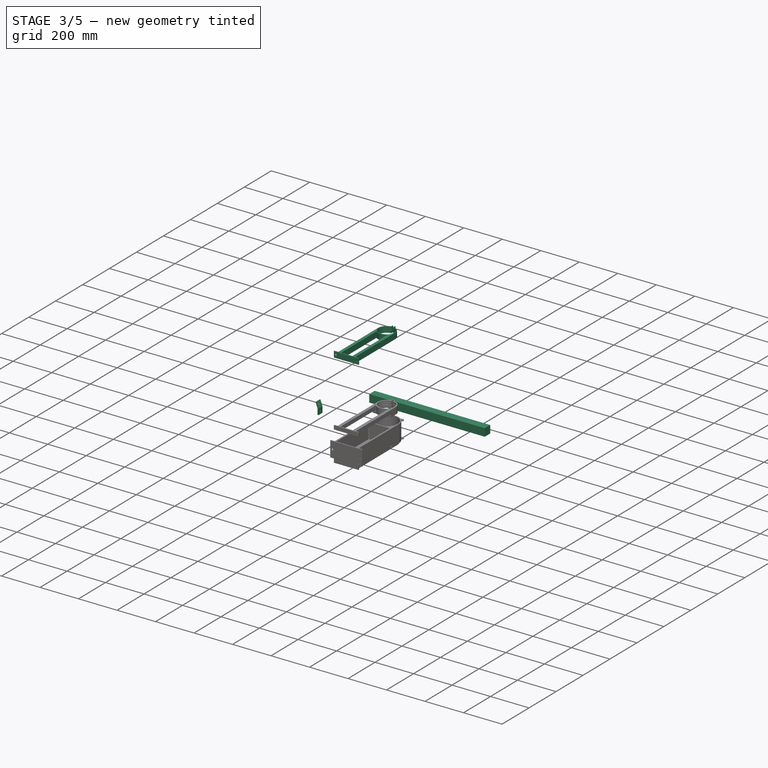
[diagram: stage 3 of 5 — iso view after this stage's code; geometry added in this stage tinted green]
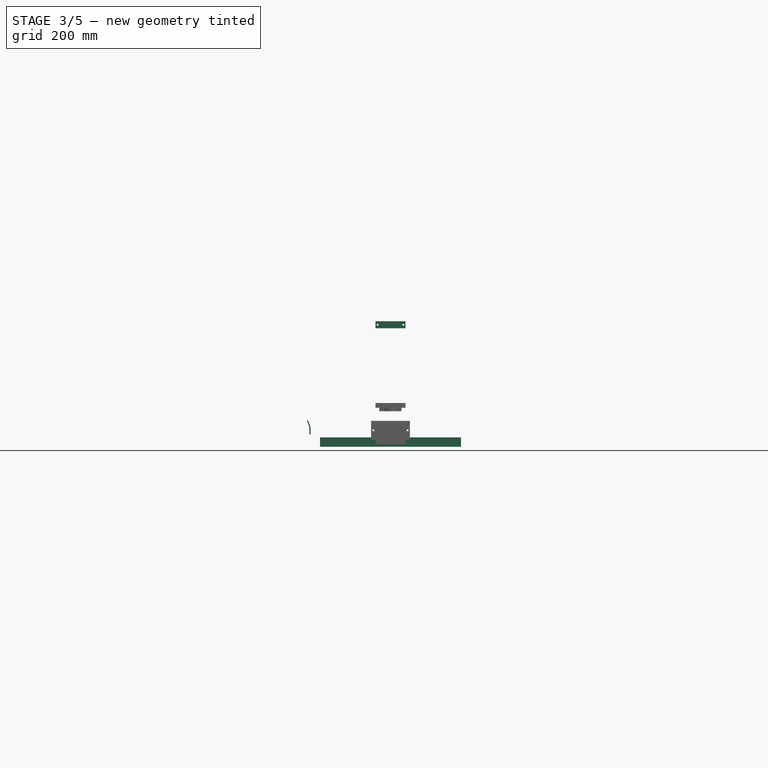
[diagram: stage 3 of 5 — front view after this stage's code; geometry added in this stage tinted green]
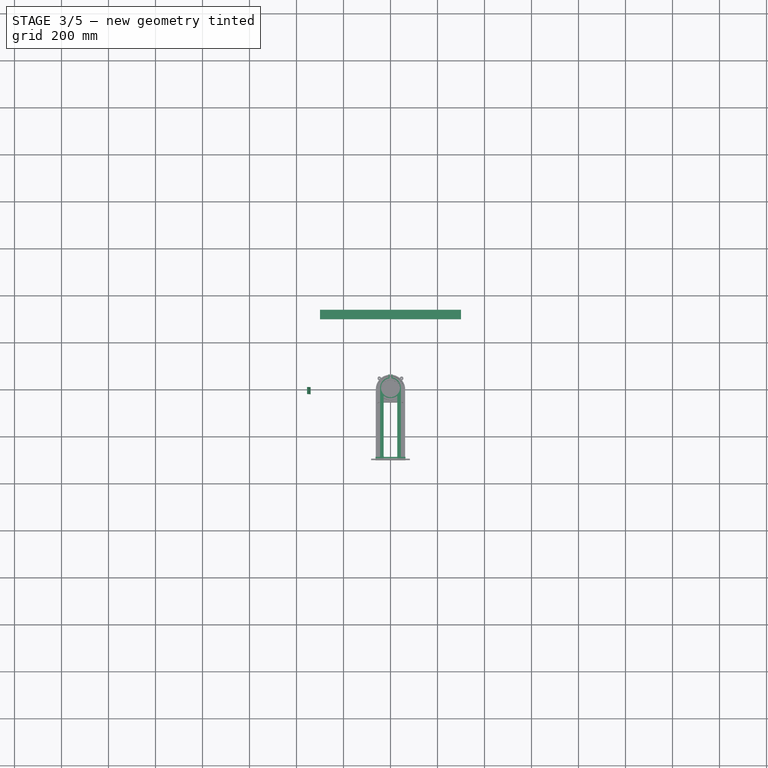
[diagram: stage 3 of 5 — top view after this stage's code; geometry added in this stage tinted green]
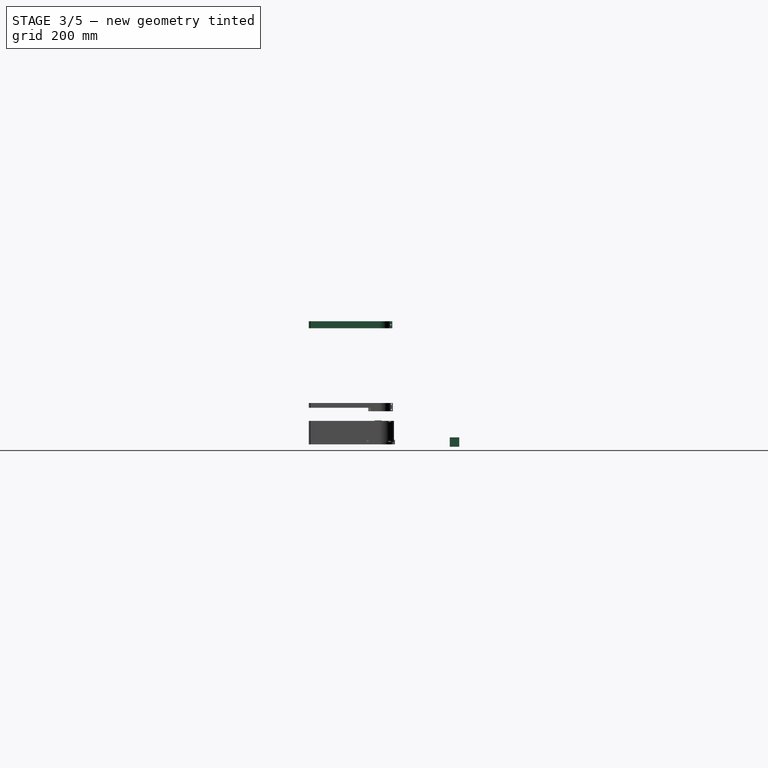
[diagram: stage 3 of 5 — right view after this stage's code; geometry added in this stage tinted green]
FEATURE [PartDesign::Body] Body087  label="brace011"
  Group = -> [CopyPad161005,Sketch206,Pad181]
  Origin = -> Origin087
  Placement = pos=(640,0,500) rot=(0,0,1;0rad)
  Tip = -> Pad181
FEATURE [PartDesign::ShapeBinder] CopyPad161006
  TraceSupport = false
FEATURE [Sketcher::SketchObject] Sketch207
  FullyConstrained = true
  MapMode = 5
  Placement = pos=(0,300,0) rot=(1,0,0;1.5708rad)
  Support = -> [CopyPad161006]
  sketch-geometry (4):
    g0: LineSegment StartX=-300 StartY=20 StartZ=0 EndX=300 EndY=20 EndZ=0
    g1: LineSegment StartX=300 StartY=20 StartZ=0 EndX=300 EndY=-20 EndZ=0
    g2: LineSegment StartX=300 StartY=-20 StartZ=0 EndX=-300 EndY=-20 EndZ=0
    g3: LineSegment StartX=-300 StartY=-20 StartZ=0 EndX=-300 EndY=20 EndZ=0
  constraints (12):
    c: Coincident(g0,g1)
    c: Coincident(g1,g2)
    c: Coincident(g2,g3)
    c: Coincident(g3,g0)
    c: Horizontal(g0)
    c: Horizontal(g2)
    c: Vertical(g1)
    c: Vertical(g3)
    c: DistanceY(g1,g1) = 40
    c: DistanceY(g1,g-1) = 20
    c: DistanceX(g0,g0) = 600
    c: DistanceX(g-1,g0) = 300
FEATURE [PartDesign::Pad] Pad182
  Direction = (1,1,1)
  Length = 40
  Length2 = 100
  Profile = -> Sketch207
  Reversed = true
  Type = 0
FEATURE [PartDesign::Body] Body088  label="brace012"
  Group = -> [CopyPad161006,Sketch207,Pad182]
  Origin = -> Origin088
  Placement = pos=(0,0,500) rot=(0,0,1;0rad)
  Tip = -> Pad182
FEATURE [PartDesign::ShapeBinder] CopyPad170
  Placement = pos=(0,0,0) rot=(0.57735,0.57735,0.57735;2.0944rad)
  TraceSupport = false
FEATURE [Sketcher::SketchObject] Sketch208
  FullyConstrained = true
  MapMode = 5
  Placement = pos=(-4.4e-15,-20,1.1e-14) rot=(0.57735,0.57735,-0.57735;2.0944rad)
  Support = -> [CopyPad170]
  expr: Constraints[12] = 5
  sketch-geometry (6):
    g0: LineSegment StartX=-32.5 StartY=-340 StartZ=0 EndX=-32.5 EndY=-345 EndZ=0
    g1: LineSegment StartX=-32.5 StartY=-340 StartZ=0 EndX=-62.5 EndY=-340 EndZ=0
    g2: LineSegment StartX=-32.5 StartY=-345 StartZ=0 EndX=-62.5 EndY=-345 EndZ=0
    g3: LineSegment StartX=-62.5 StartY=-340 StartZ=0 EndX=-92.2977 EndY=-350.845 EndZ=0
    g4: LineSegment StartX=-62.5 StartY=-345 StartZ=0 EndX=-90.6908 EndY=-355.261 EndZ=0
    g5: LineSegment StartX=-92.2977 StartY=-350.845 StartZ=0 EndX=-90.6908 EndY=-355.261 EndZ=0
  constraints (18):
    c: Vertical(g0)
    c: Coincident(g1,g0)
    c: Horizontal(g1)
    c: Coincident(g2,g0)
    c: Horizontal(g2)
    c: Coincident(g3,g1)
    c: Coincident(g4,g2)
    c: Coincident(g5,g3)
    c: Coincident(g5,g4)
    c: Perpendicular(g4,g5)
    c: Perpendicular(g5,g3)
    c: DistanceX(g2,g2) = 30
    c: Distance(g0) = 5
    c: Angle(g4) = -2.79253
    c: DistanceX(g1,g1) = 30
    c: DistanceY(g0,g-1) = 340
    c: DistanceX(g-1,g0) = -32.5
    c: Distance(g4) = 30
FEATURE [PartDesign::Pad] Pad183
  Direction = (1,1,1)
  Length = 30
  Length2 = 100
  Placement = pos=(0,0,0) rot=(0.57735,0.57735,0.57735;2.0944rad)
  Profile = -> Sketch208
  Reversed = true
  Type = 0
FEATURE [Sketcher::SketchObject] Sketch209
  FullyConstrained = true
  MapMode = 5
  Placement = pos=(-345,1.518e-13,7.59e-14) rot=(-0.57735,-0.57735,0.57735;2.0944rad)
  Support = -> [Pad183]
  expr: Constraints[0] = <<parameters>>.track_hole
  sketch-geometry (1):
    g0: Circle CenterX=-5 CenterY=-47.5 CenterZ=0 NormalX=0 NormalY=0 NormalZ=1 AngleXU=0 Radius=4.1
  constraints (3):
    c: Diameter(g0) = 8.2
    c: DistanceY(g0,g-1) = 47.5
    c: DistanceX(g0,g-1) = 5
FEATURE [PartDesign::Pocket] Pocket019
  BaseFeature = -> Pad183
  Length = 5
  Length2 = 100
  Placement = pos=(0,0,0) rot=(0.57735,0.57735,0.57735;2.0944rad)
  Profile = -> Sketch209
  Type = 0
FEATURE [Sketcher::SketchObject] Sketch210
  FullyConstrained = true
  MapMode = 5
  Placement = pos=(-284.556,7.93e-14,-103.57) rot=(0.633687,0.633687,-0.443713;3.97682rad)
  Support = -> [Pocket019]
  expr: Constraints[0] = <<parameters>>.track_hole
  sketch-geometry (1):
    g0: Circle CenterX=-5 CenterY=-192.5 CenterZ=0 NormalX=0 NormalY=0 NormalZ=1 AngleXU=0 Radius=4.1
  constraints (3):
    c: Diameter(g0) = 8.2
    c: DistanceX(g0,g-1) = 5
    c: DistanceY(g0,g-1) = 192.5
FEATURE [PartDesign::Pocket] Pocket020
  BaseFeature = -> Pocket019
  Length = 5
  Length2 = 100
  Placement = pos=(0,0,0) rot=(0.57735,0.57735,0.57735;2.0944rad)
  Profile = -> Sketch210
  Type = 0
FEATURE [PartDesign::Body] Body089  label="angled_connector001"
  Group = -> [CopyPad170,Sketch208,Pad183,Sketch209,Pocket019,Sketch210,Pocket020]
  Origin = -> Origin089
  Tip = -> Pocket020
FEATURE [PartDesign::ShapeBinder] CopyPad161007
  Placement = pos=(0,0,0) rot=(0.57735,0.57735,0.57735;2.0944rad)
  TraceSupport = false
FEATURE [Sketcher::SketchObject] Sketch212
  FullyConstrained = true
  MapMode = 5
  Placement = pos=(-4.4e-15,-20,1.1e-14) rot=(0.57735,0.57735,-0.57735;2.0944rad)
  Support = -> [CopyPad161007]
  expr: Constraints[12] = 5
  sketch-geometry (6):
    g0: LineSegment StartX=-32.5 StartY=-340 StartZ=0 EndX=-32.5 EndY=-345 EndZ=0
    g1: LineSegment StartX=-32.5 StartY=-340 StartZ=0 EndX=-62.5 EndY=-340 EndZ=0
    g2: LineSegment StartX=-32.5 StartY=-345 StartZ=0 EndX=-62.5 EndY=-345 EndZ=0
    g3: LineSegment StartX=-62.5 StartY=-340 StartZ=0 EndX=-92.2977 EndY=-350.845 EndZ=0
    g4: LineSegment StartX=-62.5 StartY=-345 StartZ=0 EndX=-90.6908 EndY=-355.261 EndZ=0
    g5: LineSegment StartX=-92.2977 StartY=-350.845 StartZ=0 EndX=-90.6908 EndY=-355.261 EndZ=0
  constraints (18):
    c: Vertical(g0)
    c: Coincident(g1,g0)
    c: Horizontal(g1)
    c: Coincident(g2,g0)
    c: Horizontal(g2)
    c: Coincident(g3,g1)
    c: Coincident(g4,g2)
    c: Coincident(g5,g3)
    c: Coincident(g5,g4)
    c: Perpendicular(g4,g5)
    c: Perpendicular(g5,g3)
    c: DistanceX(g2,g2) = 30
    c: Distance(g0) = 5
    c: Angle(g4) = -2.79253
    c: DistanceX(g1,g1) = 30
    c: DistanceY(g0,g-1) = 340
    c: DistanceX(g-1,g0) = -32.5
    c: Distance(g4) = 30
FEATURE [PartDesign::Pad] Pad184
  Direction = (1,1,1)
  Length = 30
  Length2 = 100
  Placement = pos=(0,0,0) rot=(0.57735,0.57735,0.57735;2.0944rad)
  Profile = -> Sketch212
  Reversed = true
  Type = 0
FEATURE [Sketcher::SketchObject] Sketch211
  FullyConstrained = true
  MapMode = 5
  Placement = pos=(-345,1.518e-13,7.59e-14) rot=(-0.57735,-0.57735,0.57735;2.0944rad)
  Support = -> [Pad184]
  expr: Constraints[0] = <<parameters>>.track_hole
  sketch-geometry (1):
    g0: Circle CenterX=-5 CenterY=-47.5 CenterZ=0 NormalX=0 NormalY=0 NormalZ=1 AngleXU=0 Radius=4.1
  constraints (3):
    c: Diameter(g0) = 8.2
    c: DistanceY(g0,g-1) = 47.5
    c: DistanceX(g0,g-1) = 5
FEATURE [PartDesign::Pocket] Pocket021
  BaseFeature = -> Pad184
  Length = 5
  Length2 = 100
  Placement = pos=(0,0,0) rot=(0.57735,0.57735,0.57735;2.0944rad)
  Profile = -> Sketch211
  Type = 0
FEATURE [Sketcher::SketchObject] Sketch213
  FullyConstrained = true
  MapMode = 5
  Placement = pos=(-284.556,7.93e-14,-103.57) rot=(0.633687,0.633687,-0.443713;3.97682rad)
  Support = -> [Pocket021]
  expr: Constraints[0] = <<parameters>>.track_hole
  sketch-geometry (1):
    g0: Circle CenterX=-5 CenterY=-192.5 CenterZ=0 NormalX=0 NormalY=0 NormalZ=1 AngleXU=0 Radius=4.1
  constraints (3):
    c: Diameter(g0) = 8.2
    c: DistanceX(g0,g-1) = 5
    c: DistanceY(g0,g-1) = 192.5
FEATURE [PartDesign::Pocket] Pocket022
  BaseFeature = -> Pocket021
  Length = 5
  Length2 = 100
  Placement = pos=(0,0,0) rot=(0.57735,0.57735,0.57735;2.0944rad)
  Profile = -> Sketch213
  Type = 0
FEATURE [PartDesign::Body] Body090  label="angled_connector002"
  Group = -> [CopyPad161007,Sketch212,Pad184,Sketch211,Pocket021,Sketch213,Pocket022]
  Origin = -> Origin090
  Placement = pos=(0,0,0) rot=(0,0,1;1.5708rad)
  Tip = -> Pocket022
FEATURE [PartDesign::ShapeBinder] CopyPad161008
  Placement = pos=(0,0,0) rot=(0.57735,0.57735,0.57735;2.0944rad)
  TraceSupport = false
FEATURE [Sketcher::SketchObject] Sketch215
  FullyConstrained = true
  MapMode = 5
  Placement = pos=(-4.4e-15,-20,1.1e-14) rot=(0.57735,0.57735,-0.57735;2.0944rad)
  Support = -> [CopyPad161008]
  expr: Constraints[12] = 5
  sketch-geometry (6):
    g0: LineSegment StartX=-32.5 StartY=-340 StartZ=0 EndX=-32.5 EndY=-345 EndZ=0
    g1: LineSegment StartX=-32.5 StartY=-340 StartZ=0 EndX=-62.5 EndY=-340 EndZ=0
    g2: LineSegment StartX=-32.5 StartY=-345 StartZ=0 EndX=-62.5 EndY=-345 EndZ=0
    g3: LineSegment StartX=-62.5 StartY=-340 StartZ=0 EndX=-92.2977 EndY=-350.845 EndZ=0
    g4: LineSegment StartX=-62.5 StartY=-345 StartZ=0 EndX=-90.6908 EndY=-355.261 EndZ=0
    g5: LineSegment StartX=-92.2977 StartY=-350.845 StartZ=0 EndX=-90.6908 EndY=-355.261 EndZ=0
  constraints (18):
    c: Vertical(g0)
    c: Coincident(g1,g0)
    c: Horizontal(g1)
    c: Coincident(g2,g0)
    c: Horizontal(g2)
    c: Coincident(g3,g1)
    c: Coincident(g4,g2)
    c: Coincident(g5,g3)
    c: Coincident(g5,g4)
    c: Perpendicular(g4,g5)
    c: Perpendicular(g5,g3)
    c: DistanceX(g2,g2) = 30
    c: Distance(g0) = 5
    c: Angle(g4) = -2.79253
    c: DistanceX(g1,g1) = 30
    c: DistanceY(g0,g-1) = 340
    c: DistanceX(g-1,g0) = -32.5
    c: Distance(g4) = 30
FEATURE [PartDesign::Pad] Pad185
  Direction = (1,1,1)
  Length = 30
  Length2 = 100
  Placement = pos=(0,0,0) rot=(0.57735,0.57735,0.57735;2.0944rad)
  Profile = -> Sketch215
  Reversed = true
  Type = 0
FEATURE [Sketcher::SketchObject] Sketch214
  FullyConstrained = true
  MapMode = 5
  Placement = pos=(-345,1.518e-13,7.59e-14) rot=(-0.57735,-0.57735,0.57735;2.0944rad)
  Support = -> [Pad185]
  expr: Constraints[0] = <<parameters>>.track_hole
  sketch-geometry (1):
    g0: Circle CenterX=-5 CenterY=-47.5 CenterZ=0 NormalX=0 NormalY=0 NormalZ=1 AngleXU=0 Radius=4.1
  constraints (3):
    c: Diameter(g0) = 8.2
    c: DistanceY(g0,g-1) = 47.5
    c: DistanceX(g0,g-1) = 5
FEATURE [PartDesign::Pocket] Pocket023
  BaseFeature = -> Pad185
  Length = 5
  Length2 = 100
  Placement = pos=(0,0,0) rot=(0.57735,0.57735,0.57735;2.0944rad)
  Profile = -> Sketch214
  Type = 0
FEATURE [Sketcher::SketchObject] Sketch216
  FullyConstrained = true
  MapMode = 5
  Placement = pos=(-284.556,7.93e-14,-103.57) rot=(0.633687,0.633687,-0.443713;3.97682rad)
  Support = -> [Pocket023]
  expr: Constraints[0] = <<parameters>>.track_hole
  sketch-geometry (1):
    g0: Circle CenterX=-5 CenterY=-192.5 CenterZ=0 NormalX=0 NormalY=0 NormalZ=1 AngleXU=0 Radius=4.1
  constraints (3):
    c: Diameter(g0) = 8.2
    c: DistanceX(g0,g-1) = 5
    c: DistanceY(g0,g-1) = 192.5
FEATURE [PartDesign::Pocket] Pocket024
  BaseFeature = -> Pocket023
  Length = 5
  Length2 = 100
  Placement = pos=(0,0,0) rot=(0.57735,0.57735,0.57735;2.0944rad)
  Profile = -> Sketch216
  Type = 0
FEATURE [PartDesign::Body] Body091  label="angled_connector003"
  Group = -> [CopyPad161008,Sketch215,Pad185,Sketch214,Pocket023,Sketch216,Pocket024]
  Origin = -> Origin091
  Placement = pos=(0,0,0) rot=(0,0,1;3.14159rad)
  Tip = -> Pocket024
FEATURE [PartDesign::ShapeBinder] CopyPad161009
  Placement = pos=(0,0,0) rot=(0.57735,0.57735,0.57735;2.0944rad)
  TraceSupport = false
FEATURE [Sketcher::SketchObject] Sketch218
  FullyConstrained = true
  MapMode = 5
  Placement = pos=(-4.4e-15,-20,1.1e-14) rot=(0.57735,0.57735,-0.57735;2.0944rad)
  Support = -> [CopyPad161009]
  expr: Constraints[12] = 5
  sketch-geometry (6):
    g0: LineSegment StartX=-32.5 StartY=-340 StartZ=0 EndX=-32.5 EndY=-345 EndZ=0
    g1: LineSegment StartX=-32.5 StartY=-340 StartZ=0 EndX=-62.5 EndY=-340 EndZ=0
    g2: LineSegment StartX=-32.5 StartY=-345 StartZ=0 EndX=-62.5 EndY=-345 EndZ=0
    g3: LineSegment StartX=-62.5 StartY=-340 StartZ=0 EndX=-92.2977 EndY=-350.845 EndZ=0
    g4: LineSegment StartX=-62.5 StartY=-345 StartZ=0 EndX=-90.6908 EndY=-355.261 EndZ=0
    g5: LineSegment StartX=-92.2977 StartY=-350.845 StartZ=0 EndX=-90.6908 EndY=-355.261 EndZ=0
  constraints (18):
    c: Vertical(g0)
    c: Coincident(g1,g0)
    c: Horizontal(g1)
    c: Coincident(g2,g0)
    c: Horizontal(g2)
    c: Coincident(g3,g1)
    c: Coincident(g4,g2)
    c: Coincident(g5,g3)
    c: Coincident(g5,g4)
    c: Perpendicular(g4,g5)
    c: Perpendicular(g5,g3)
    c: DistanceX(g2,g2) = 30
    c: Distance(g0) = 5
    c: Angle(g4) = -2.79253
    c: DistanceX(g1,g1) = 30
    c: DistanceY(g0,g-1) = 340
    c: DistanceX(g-1,g0) = -32.5
    c: Distance(g4) = 30
FEATURE [PartDesign::Pad] Pad186
  Direction = (1,1,1)
  Length = 30
  Length2 = 100
  Placement = pos=(0,0,0) rot=(0.57735,0.57735,0.57735;2.0944rad)
  Profile = -> Sketch218
  Reversed = true
  Type = 0
FEATURE [Sketcher::SketchObject] Sketch217
  FullyConstrained = true
  MapMode = 5
  Placement = pos=(-345,1.518e-13,7.59e-14) rot=(-0.57735,-0.57735,0.57735;2.0944rad)
  Support = -> [Pad186]
  expr: Constraints[0] = <<parameters>>.track_hole
  sketch-geometry (1):
    g0: Circle CenterX=-5 CenterY=-47.5 CenterZ=0 NormalX=0 NormalY=0 NormalZ=1 AngleXU=0 Radius=4.1
  constraints (3):
    c: Diameter(g0) = 8.2
    c: DistanceY(g0,g-1) = 47.5
    c: DistanceX(g0,g-1) = 5
FEATURE [PartDesign::Pocket] Pocket025
  BaseFeature = -> Pad186
  Length = 5
  Length2 = 100
  Placement = pos=(0,0,0) rot=(0.57735,0.57735,0.57735;2.0944rad)
  Profile = -> Sketch217
  Type = 0
FEATURE [Sketcher::SketchObject] Sketch219
  FullyConstrained = true
  MapMode = 5
  Placement = pos=(-284.556,7.93e-14,-103.57) rot=(0.633687,0.633687,-0.443713;3.97682rad)
  Support = -> [Pocket025]
  expr: Constraints[0] = <<parameters>>.track_hole
  sketch-geometry (1):
    g0: Circle CenterX=-5 CenterY=-192.5 CenterZ=0 NormalX=0 NormalY=0 NormalZ=1 AngleXU=0 Radius=4.1
  constraints (3):
    c: Diameter(g0) = 8.2
    c: DistanceX(g0,g-1) = 5
    c: DistanceY(g0,g-1) = 192.5
FEATURE [PartDesign::Pocket] Pocket026
  BaseFeature = -> Pocket025
  Length = 5
  Length2 = 100
  Placement = pos=(0,0,0) rot=(0.57735,0.57735,0.57735;2.0944rad)
  Profile = -> Sketch219
  Type = 0
FEATURE [PartDesign::Body] Body035  label="pipesupport001"
  Group = -> [Sketch121,Pad237,Sketch296,Pocket049,Sketch297,Pocket050]
  Origin = -> Origin035
  Placement = pos=(0,0,484) rot=(0,0,1;0rad)
  Tip = -> Pocket050
FEATURE [PartDesign::FeatureBase] Clone
  BaseFeature = -> Body035
  Placement = pos=(0,0,484) rot=(0,0,1;0rad)
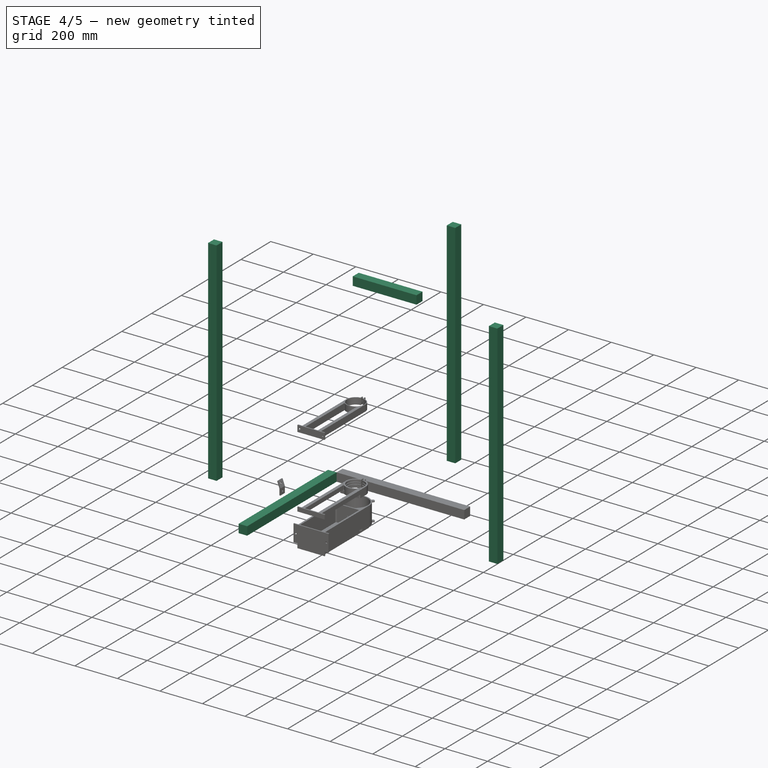
[diagram: stage 4 of 5 — iso view after this stage's code; geometry added in this stage tinted green]
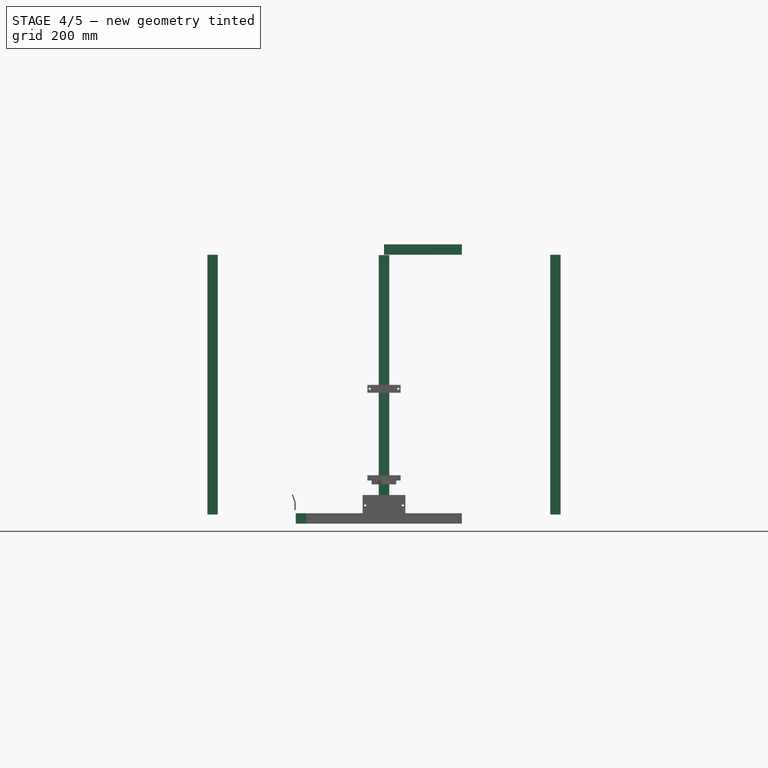
[diagram: stage 4 of 5 — front view after this stage's code; geometry added in this stage tinted green]
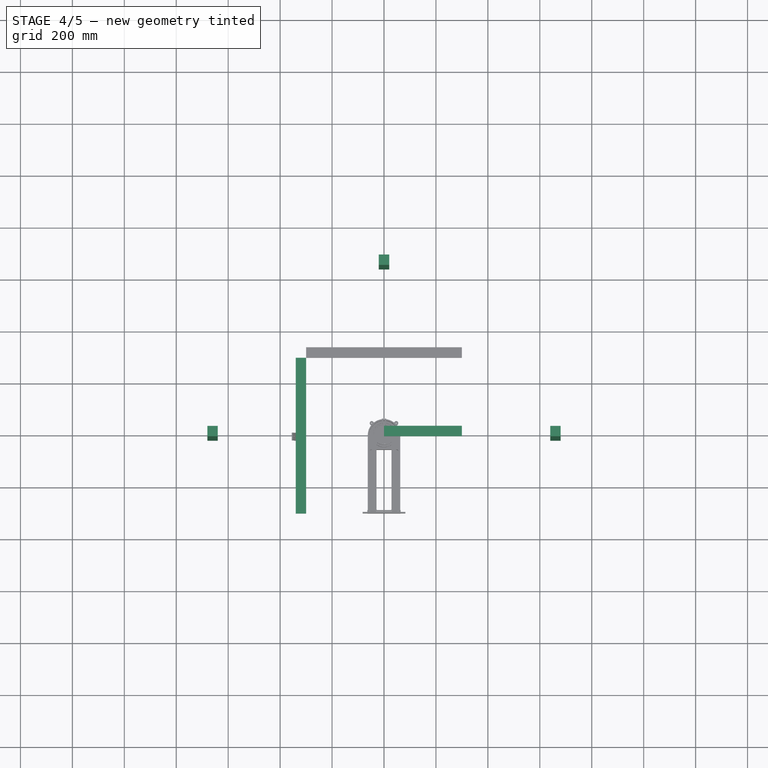
[diagram: stage 4 of 5 — top view after this stage's code; geometry added in this stage tinted green]
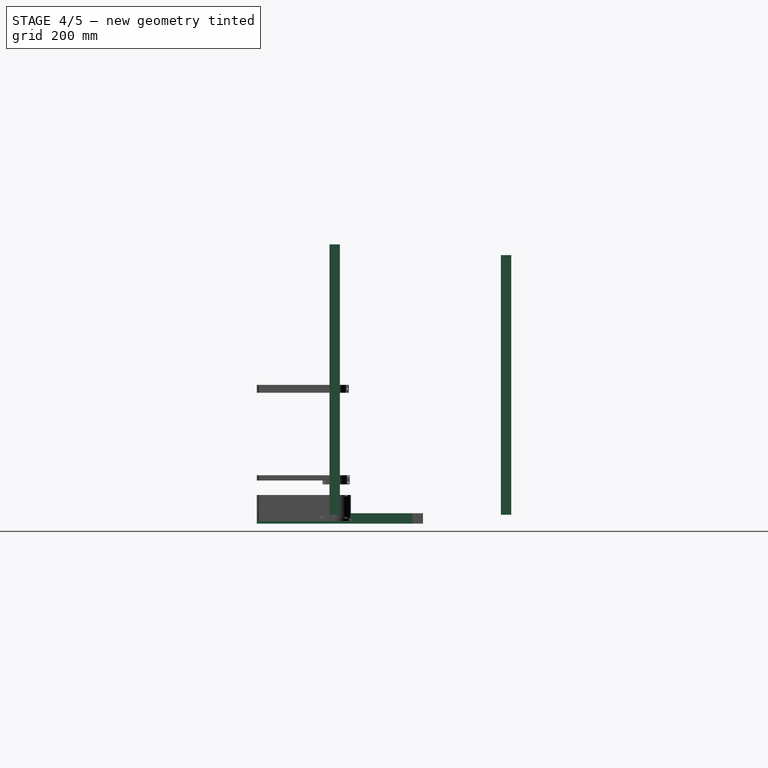
[diagram: stage 4 of 5 — right view after this stage's code; geometry added in this stage tinted green]
FEATURE [PartDesign::Body] Body073  label="brace002"
  Group = -> [CopyPad134,Sketch190,Pad165]
  Origin = -> Origin073
  Placement = pos=(0,-980,0) rot=(0,0,1;0rad)
  Tip = -> Pad165
FEATURE [Sketcher::SketchObject] Sketch191
  FullyConstrained = true
  MapMode = 5
  Placement = pos=(0,0,0) rot=(0.57735,0.57735,0.57735;2.0944rad)
  Support = -> [YZ_Plane074]
  sketch-geometry (4):
    g0: LineSegment StartX=-20 StartY=1055 StartZ=0 EndX=20 EndY=1055 EndZ=0
    g1: LineSegment StartX=20 StartY=1055 StartZ=0 EndX=20 EndY=1015 EndZ=0
    g2: LineSegment StartX=20 StartY=1015 StartZ=0 EndX=-20 EndY=1015 EndZ=0
    g3: LineSegment StartX=-20 StartY=1015 StartZ=0 EndX=-20 EndY=1055 EndZ=0
  constraints (12):
    c: Coincident(g0,g1)
    c: Coincident(g1,g2)
    c: Coincident(g2,g3)
    c: Coincident(g3,g0)
    c: Horizontal(g0)
    c: Horizontal(g2)
    c: Vertical(g1)
    c: Vertical(g3)
    c: DistanceX(g2,g-1) = 20
    c: DistanceX(g0,g0) = 40
    c: DistanceY(g1,g1) = 40
    c: DistanceY(g-1,g1) = 1015
FEATURE [PartDesign::Pad] Pad166
  Direction = (1,1,1)
  Length = 300
  Length2 = 100
  Placement = pos=(0,0,0) rot=(0.57735,0.57735,0.57735;2.0944rad)
  Profile = -> Sketch191
  Type = 0
FEATURE [PartDesign::Body] Body074  label="brace003"
  Group = -> [Sketch191,Pad166]
  Origin = -> Origin074
  Placement = pos=(340,0,0) rot=(0,0,1;0rad)
  Tip = -> Pad166
FEATURE [Sketcher::SketchObject] Sketch192
  FullyConstrained = true
  MapMode = 5
  Placement = pos=(0,0,0) rot=(0.57735,0.57735,0.57735;2.0944rad)
  Support = -> [YZ_Plane075]
  sketch-geometry (4):
    g0: LineSegment StartX=-20 StartY=1055 StartZ=0 EndX=20 EndY=1055 EndZ=0
    g1: LineSegment StartX=20 StartY=1055 StartZ=0 EndX=20 EndY=1015 EndZ=0
    g2: LineSegment StartX=20 StartY=1015 StartZ=0 EndX=-20 EndY=1015 EndZ=0
    g3: LineSegment StartX=-20 StartY=1015 StartZ=0 EndX=-20 EndY=1055 EndZ=0
  constraints (12):
    c: Coincident(g0,g1)
    c: Coincident(g1,g2)
    c: Coincident(g2,g3)
    c: Coincident(g3,g0)
    c: Horizontal(g0)
    c: Horizontal(g2)
    c: Vertical(g1)
    c: Vertical(g3)
    c: DistanceX(g2,g-1) = 20
    c: DistanceX(g0,g0) = 40
    c: DistanceY(g1,g1) = 40
    c: DistanceY(g-1,g1) = 1015
FEATURE [PartDesign::Pad] Pad167
  Direction = (1,1,1)
  Length = 300
  Length2 = 100
  Placement = pos=(0,0,0) rot=(0.57735,0.57735,0.57735;2.0944rad)
  Profile = -> Sketch192
  Type = 0
FEATURE [PartDesign::Body] Body075  label="brace004"
  Group = -> [Sketch192,Pad167]
  Origin = -> Origin075
  Placement = pos=(-640,0,0) rot=(0,0,1;0rad)
  Tip = -> Pad167
FEATURE [PartDesign::ShapeBinder] CopyPad164
  TraceSupport = false
FEATURE [Sketcher::SketchObject] Sketch193
  FullyConstrained = true
  MapMode = 5
  Placement = pos=(0,2.231e-13,1014) rot=(1,0,0;3.14159rad)
  Support = -> [CopyPad164]
  sketch-geometry (4):
    g0: LineSegment StartX=-20 StartY=-640 StartZ=0 EndX=20 EndY=-640 EndZ=0
    g1: LineSegment StartX=20 StartY=-640 StartZ=0 EndX=20 EndY=-680 EndZ=0
    g2: LineSegment StartX=20 StartY=-680 StartZ=0 EndX=-20 EndY=-680 EndZ=0
    g3: LineSegment StartX=-20 StartY=-680 StartZ=0 EndX=-20 EndY=-640 EndZ=0
  constraints (12):
    c: Coincident(g0,g1)
    c: Coincident(g1,g2)
    c: Coincident(g2,g3)
    c: Coincident(g3,g0)
    c: Horizontal(g0)
    c: Horizontal(g2)
    c: Vertical(g1)
    c: Vertical(g3)
    c: DistanceY(g1,g1) = 40
    c: DistanceY(g0,g-1) = 640
    c: DistanceX(g2,g2) = 40
    c: DistanceX(g-1,g1) = 20
FEATURE [PartDesign::Pad] Pad168
  Direction = (1,1,1)
  Length = 1000
  Length2 = 100
  Profile = -> Sketch193
  Type = 0
FEATURE [PartDesign::Body] Body076  label="angled001"
  Group = -> [CopyPad164,Sketch193,Pad168]
  Origin = -> Origin076
  Placement = pos=(0,-239.401,188.38) rot=(-1,0,0;0.261799rad)
  Tip = -> Pad168
FEATURE [PartDesign::ShapeBinder] CopyPad165
  TraceSupport = false
FEATURE [Sketcher::SketchObject] Sketch194
  FullyConstrained = true
  MapMode = 5
  Placement = pos=(0,2.231e-13,1014) rot=(1,0,0;3.14159rad)
  Support = -> [CopyPad165]
  sketch-geometry (4):
    g0: LineSegment StartX=-20 StartY=-640 StartZ=0 EndX=20 EndY=-640 EndZ=0
    g1: LineSegment StartX=20 StartY=-640 StartZ=0 EndX=20 EndY=-680 EndZ=0
    g2: LineSegment StartX=20 StartY=-680 StartZ=0 EndX=-20 EndY=-680 EndZ=0
    g3: LineSegment StartX=-20 StartY=-680 StartZ=0 EndX=-20 EndY=-640 EndZ=0
  constraints (12):
    c: Coincident(g0,g1)
    c: Coincident(g1,g2)
    c: Coincident(g2,g3)
    c: Coincident(g3,g0)
    c: Horizontal(g0)
    c: Horizontal(g2)
    c: Vertical(g1)
    c: Vertical(g3)
    c: DistanceY(g1,g1) = 40
    c: DistanceY(g0,g-1) = 640
    c: DistanceX(g2,g2) = 40
    c: DistanceX(g-1,g1) = 20
FEATURE [PartDesign::Pad] Pad169
  Direction = (1,1,1)
  Length = 1000
  Length2 = 100
  Profile = -> Sketch194
  Type = 0
FEATURE [PartDesign::Body] Body077  label="angled002"
  Group = -> [CopyPad165,Sketch194,Pad169]
  Origin = -> Origin077
  Placement = pos=(0,-1031.24,-150.387) rot=(1,0,0;0.261799rad)
  Tip = -> Pad169
FEATURE [PartDesign::ShapeBinder] CopyPad167
  Placement = pos=(0,0,0) rot=(0.57735,0.57735,0.57735;2.0944rad)
  TraceSupport = false
FEATURE [Sketcher::SketchObject] Sketch195
  FullyConstrained = true
  MapMode = 5
  Placement = pos=(-2.842e-13,4.466e-13,1015) rot=(0.707107,0.707107,0;3.14159rad)
  Support = -> [CopyPad167]
  sketch-geometry (4):
    g0: LineSegment StartX=-20 StartY=-640 StartZ=0 EndX=20 EndY=-640 EndZ=0
    g1: LineSegment StartX=20 StartY=-640 StartZ=0 EndX=20 EndY=-680 EndZ=0
    g2: LineSegment StartX=20 StartY=-680 StartZ=0 EndX=-20 EndY=-680 EndZ=0
    g3: LineSegment StartX=-20 StartY=-680 StartZ=0 EndX=-20 EndY=-640 EndZ=0
  constraints (12):
    c: Coincident(g0,g1)
    c: Coincident(g1,g2)
    c: Coincident(g2,g3)
    c: Coincident(g3,g0)
    c: Horizontal(g0)
    c: Horizontal(g2)
    c: Vertical(g1)
    c: Vertical(g3)
    c: DistanceX(g2,g2) = 40
    c: DistanceX(g-1,g0) = 20
    c: DistanceY(g1,g1) = 40
    c: DistanceY(g0,g-1) = 640
FEATURE [PartDesign::Pad] Pad170
  Direction = (1,1,1)
  Length = 1000
  Length2 = 100
  Placement = pos=(0,0,0) rot=(0.57735,0.57735,0.57735;2.0944rad)
  Profile = -> Sketch195
  Type = 0
FEATURE [PartDesign::Body] Body078  label="angled003"
  Group = -> [CopyPad167,Sketch195,Pad170]
  Origin = -> Origin078
  Placement = pos=(239.401,0,188.38) rot=(0,-1,0;0.261799rad)
  Tip = -> Pad170
FEATURE [PartDesign::ShapeBinder] CopyPad166
  Placement = pos=(0,0,0) rot=(0.57735,0.57735,0.57735;2.0944rad)
  TraceSupport = false
FEATURE [Sketcher::SketchObject] Sketch196
  FullyConstrained = true
  MapMode = 5
  Placement = pos=(-2.842e-13,4.466e-13,1015) rot=(0.707107,0.707107,0;3.14159rad)
  Support = -> [CopyPad166]
  sketch-geometry (4):
    g0: LineSegment StartX=-20 StartY=640 StartZ=0 EndX=20 EndY=640 EndZ=0
    g1: LineSegment StartX=20 StartY=640 StartZ=0 EndX=20 EndY=680 EndZ=0
    g2: LineSegment StartX=20 StartY=680 StartZ=0 EndX=-20 EndY=680 EndZ=0
    g3: LineSegment StartX=-20 StartY=680 StartZ=0 EndX=-20 EndY=640 EndZ=0
  constraints (12):
    c: Coincident(g0,g1)
    c: Coincident(g1,g2)
    c: Coincident(g2,g3)
    c: Coincident(g3,g0)
    c: Horizontal(g0)
    c: Horizontal(g2)
    c: Vertical(g1)
    c: Vertical(g3)
    c: DistanceX(g2,g2) = 40
    c: DistanceX(g0,g-1) = 20
    c: DistanceY(g1,g1) = 40
    c: DistanceY(g-1,g0) = 640
FEATURE [PartDesign::Pad] Pad171
  Direction = (1,1,1)
  Length = 1000
  Length2 = 100
  Placement = pos=(0,0,0) rot=(0.57735,0.57735,0.57735;2.0944rad)
  Profile = -> Sketch196
  Type = 0
FEATURE [PartDesign::Body] Body079  label="angled004"
  Group = -> [CopyPad166,Sketch196,Pad171]
  Origin = -> Origin079
  Placement = pos=(-239.401,0,188.38) rot=(0,1,0;0.261799rad)
  Tip = -> Pad171
FEATURE [PartDesign::ShapeBinder] CopyPad161
  TraceSupport = false
FEATURE [Sketcher::SketchObject] Sketch197
  FullyConstrained = true
  MapMode = 5
  Placement = pos=(0,300,0) rot=(1,0,0;1.5708rad)
  Support = -> [CopyPad161]
  sketch-geometry (4):
    g0: LineSegment StartX=-300 StartY=20 StartZ=0 EndX=300 EndY=20 EndZ=0
    g1: LineSegment StartX=300 StartY=20 StartZ=0 EndX=300 EndY=-20 EndZ=0
    g2: LineSegment StartX=300 StartY=-20 StartZ=0 EndX=-300 EndY=-20 EndZ=0
    g3: LineSegment StartX=-300 StartY=-20 StartZ=0 EndX=-300 EndY=20 EndZ=0
  constraints (12):
    c: Coincident(g0,g1)
    c: Coincident(g1,g2)
    c: Coincident(g2,g3)
    c: Coincident(g3,g0)
    c: Horizontal(g0)
    c: Horizontal(g2)
    c: Vertical(g1)
    c: Vertical(g3)
    c: DistanceY(g1,g1) = 40
    c: DistanceY(g1,g-1) = 20
    c: DistanceX(g0,g0) = 600
    c: DistanceX(g-1,g0) = 300
FEATURE [PartDesign::Pad] Pad172
  Direction = (1,1,1)
  Length = 40
  Length2 = 100
  Profile = -> Sketch197
  Reversed = true
  Type = 0
FEATURE [PartDesign::Body] Body080  label="brace005"
  Group = -> [CopyPad161,Sketch197,Pad172]
  Origin = -> Origin080
  Placement = pos=(0,0,50) rot=(0,0,1;0rad)
  Tip = -> Pad172
FEATURE [PartDesign::ShapeBinder] CopyPad168
  TraceSupport = false
FEATURE [Sketcher::SketchObject] Sketch198
  FullyConstrained = true
  MapMode = 5
  Placement = pos=(0,300,0) rot=(1,0,0;1.5708rad)
  Support = -> [CopyPad168]
  sketch-geometry (4):
    g0: LineSegment StartX=-300 StartY=20 StartZ=0 EndX=300 EndY=20 EndZ=0
    g1: LineSegment StartX=300 StartY=20 StartZ=0 EndX=300 EndY=-20 EndZ=0
    g2: LineSegment StartX=300 StartY=-20 StartZ=0 EndX=-300 EndY=-20 EndZ=0
    g3: LineSegment StartX=-300 StartY=-20 StartZ=0 EndX=-300 EndY=20 EndZ=0
  constraints (12):
    c: Coincident(g0,g1)
    c: Coincident(g1,g2)
    c: Coincident(g2,g3)
    c: Coincident(g3,g0)
    c: Horizontal(g0)
    c: Horizontal(g2)
    c: Vertical(g1)
    c: Vertical(g3)
    c: DistanceY(g1,g1) = 40
    c: DistanceY(g1,g-1) = 20
    c: DistanceX(g0,g0) = 600
    c: DistanceX(g-1,g0) = 300
FEATURE [PartDesign::Pad] Pad173
  Direction = (1,1,1)
  Length = 40
  Length2 = 100
  Profile = -> Sketch198
  Reversed = true
  Type = 0
FEATURE [PartDesign::Body] Body081  label="brace006"
  Group = -> [CopyPad168,Sketch198,Pad173]
  Origin = -> Origin081
  Placement = pos=(0,-640,50) rot=(0,0,1;0rad)
  Tip = -> Pad173
FEATURE [PartDesign::ShapeBinder] CopyPad161001
  TraceSupport = false
FEATURE [Sketcher::SketchObject] Sketch199
  FullyConstrained = true
  MapMode = 5
  Placement = pos=(-340,0,0) rot=(0.57735,-0.57735,-0.57735;2.0944rad)
  Support = -> [CopyPad161001]
  sketch-geometry (4):
    g0: LineSegment StartX=-300 StartY=20 StartZ=0 EndX=300 EndY=20 EndZ=0
    g1: LineSegment StartX=300 StartY=20 StartZ=0 EndX=300 EndY=-20 EndZ=0
    g2: LineSegment StartX=300 StartY=-20 StartZ=0 EndX=-300 EndY=-20 EndZ=0
    g3: LineSegment StartX=-300 StartY=-20 StartZ=0 EndX=-300 EndY=20 EndZ=0
  constraints (12):
    c: Coincident(g0,g1)
    c: Coincident(g1,g2)
    c: Coincident(g2,g3)
    c: Coincident(g3,g0)
    c: Horizontal(g0)
    c: Horizontal(g2)
    c: Vertical(g1)
    c: Vertical(g3)
    c: DistanceY(g1,g1) = 40
    c: DistanceY(g-1,g0) = 20
    c: DistanceX(g0,g0) = 600
    c: DistanceX(g-1,g0) = 300
FEATURE [PartDesign::Pad] Pad174
  Direction = (1,1,1)
  Length = 40
  Length2 = 100
  Profile = -> Sketch199
  Reversed = true
  Type = 0
FEATURE [PartDesign::Body] Body082  label="brace007"
  Group = -> [CopyPad161001,Sketch199,Pad174]
  Origin = -> Origin082
  Placement = pos=(0,0,50) rot=(0,0,1;0rad)
  Tip = -> Pad174
FEATURE [PartDesign::ShapeBinder] CopyPad161002
  TraceSupport = false
FEATURE [Sketcher::SketchObject] Sketch200
  FullyConstrained = true
  MapMode = 5
  Placement = pos=(-340,0,0) rot=(0.57735,-0.57735,-0.57735;2.0944rad)
  Support = -> [CopyPad161002]
  sketch-geometry (4):
    g0: LineSegment StartX=-300 StartY=20 StartZ=0 EndX=300 EndY=20 EndZ=0
    g1: LineSegment StartX=300 StartY=20 StartZ=0 EndX=300 EndY=-20 EndZ=0
    g2: LineSegment StartX=300 StartY=-20 StartZ=0 EndX=-300 EndY=-20 EndZ=0
    g3: LineSegment StartX=-300 StartY=-20 StartZ=0 EndX=-300 EndY=20 EndZ=0
  constraints (12):
    c: Coincident(g0,g1)
    c: Coincident(g1,g2)
    c: Coincident(g2,g3)
    c: Coincident(g3,g0)
    c: Horizontal(g0)
    c: Horizontal(g2)
    c: Vertical(g1)
    c: Vertical(g3)
    c: DistanceY(g1,g1) = 40
    c: DistanceY(g-1,g0) = 20
    c: DistanceX(g0,g0) = 600
    c: DistanceX(g-1,g0) = 300
FEATURE [PartDesign::Pad] Pad175
  Direction = (1,1,1)
  Length = 40
  Length2 = 100
  Profile = -> Sketch200
  Reversed = true
  Type = 0
FEATURE [PartDesign::Body] Body083  label="brace008"
  Group = -> [CopyPad161002,Sketch200,Pad175]
  Origin = -> Origin083
  Placement = pos=(640,0,50) rot=(0,0,1;0rad)
  Tip = -> Pad175
FEATURE [PartDesign::ShapeBinder] CopyPad161003
  TraceSupport = false
FEATURE [Sketcher::SketchObject] Sketch204
  FullyConstrained = true
  MapMode = 5
  Placement = pos=(-340,0,0) rot=(0.57735,-0.57735,-0.57735;2.0944rad)
  Support = -> [CopyPad161003]
  sketch-geometry (4):
    g0: LineSegment StartX=-300 StartY=20 StartZ=0 EndX=300 EndY=20 EndZ=0
    g1: LineSegment StartX=300 StartY=20 StartZ=0 EndX=300 EndY=-20 EndZ=0
    g2: LineSegment StartX=300 StartY=-20 StartZ=0 EndX=-300 EndY=-20 EndZ=0
    g3: LineSegment StartX=-300 StartY=-20 StartZ=0 EndX=-300 EndY=20 EndZ=0
  constraints (12):
    c: Coincident(g0,g1)
    c: Coincident(g1,g2)
    c: Coincident(g2,g3)
    c: Coincident(g3,g0)
    c: Horizontal(g0)
    c: Horizontal(g2)
    c: Vertical(g1)
    c: Vertical(g3)
    c: DistanceY(g1,g1) = 40
    c: DistanceY(g-1,g0) = 20
    c: DistanceX(g0,g0) = 600
    c: DistanceX(g-1,g0) = 300
FEATURE [PartDesign::Pad] Pad179
  Direction = (1,1,1)
  Length = 40
  Length2 = 100
  Profile = -> Sketch204
  Reversed = true
  Type = 0
FEATURE [PartDesign::Body] Body085  label="brace009"
  Group = -> [CopyPad161003,Sketch204,Pad179]
  Origin = -> Origin085
  Placement = pos=(0,0,500) rot=(0,0,1;0rad)
  Tip = -> Pad179
FEATURE [PartDesign::ShapeBinder] CopyPad161004
  TraceSupport = false
FEATURE [Sketcher::SketchObject] Sketch205
  FullyConstrained = true
  MapMode = 5
  Placement = pos=(0,300,0) rot=(1,0,0;1.5708rad)
  Support = -> [CopyPad161004]
  sketch-geometry (4):
    g0: LineSegment StartX=-300 StartY=20 StartZ=0 EndX=300 EndY=20 EndZ=0
    g1: LineSegment StartX=300 StartY=20 StartZ=0 EndX=300 EndY=-20 EndZ=0
    g2: LineSegment StartX=300 StartY=-20 StartZ=0 EndX=-300 EndY=-20 EndZ=0
    g3: LineSegment StartX=-300 StartY=-20 StartZ=0 EndX=-300 EndY=20 EndZ=0
  constraints (12):
    c: Coincident(g0,g1)
    c: Coincident(g1,g2)
    c: Coincident(g2,g3)
    c: Coincident(g3,g0)
    c: Horizontal(g0)
    c: Horizontal(g2)
    c: Vertical(g1)
    c: Vertical(g3)
    c: DistanceY(g1,g1) = 40
    c: DistanceY(g1,g-1) = 20
    c: DistanceX(g0,g0) = 600
    c: DistanceX(g-1,g0) = 300
FEATURE [PartDesign::Pad] Pad180
  Direction = (1,1,1)
  Length = 40
  Length2 = 100
  Profile = -> Sketch205
  Reversed = true
  Type = 0
FEATURE [PartDesign::Body] Body086  label="brace010"
  Group = -> [CopyPad161004,Sketch205,Pad180]
  Origin = -> Origin086
  Placement = pos=(0,-640,500) rot=(0,0,1;0rad)
  Tip = -> Pad180
FEATURE [PartDesign::ShapeBinder] CopyPad161005
  TraceSupport = false
FEATURE [Sketcher::SketchObject] Sketch206
  FullyConstrained = true
  MapMode = 5
  Placement = pos=(-340,0,0) rot=(0.57735,-0.57735,-0.57735;2.0944rad)
  Support = -> [CopyPad161005]
  sketch-geometry (4):
    g0: LineSegment StartX=-300 StartY=20 StartZ=0 EndX=300 EndY=20 EndZ=0
    g1: LineSegment StartX=300 StartY=20 StartZ=0 EndX=300 EndY=-20 EndZ=0
    g2: LineSegment StartX=300 StartY=-20 StartZ=0 EndX=-300 EndY=-20 EndZ=0
    g3: LineSegment StartX=-300 StartY=-20 StartZ=0 EndX=-300 EndY=20 EndZ=0
  constraints (12):
    c: Coincident(g0,g1)
    c: Coincident(g1,g2)
    c: Coincident(g2,g3)
    c: Coincident(g3,g0)
    c: Horizontal(g0)
    c: Horizontal(g2)
    c: Vertical(g1)
    c: Vertical(g3)
    c: DistanceY(g1,g1) = 40
    c: DistanceY(g-1,g0) = 20
    c: DistanceX(g0,g0) = 600
    c: DistanceX(g-1,g0) = 300
FEATURE [PartDesign::Pad] Pad181
  Direction = (1,1,1)
  Length = 40
  Length2 = 100
  Profile = -> Sketch206
  Reversed = true
  Type = 0
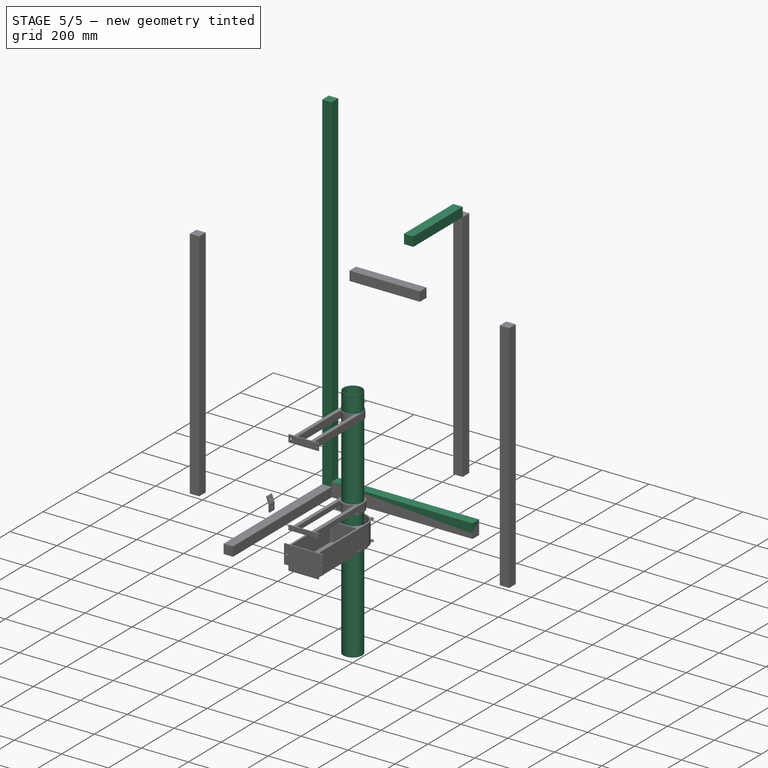
[diagram: stage 5 of 5 — iso view after this stage's code; geometry added in this stage tinted green]
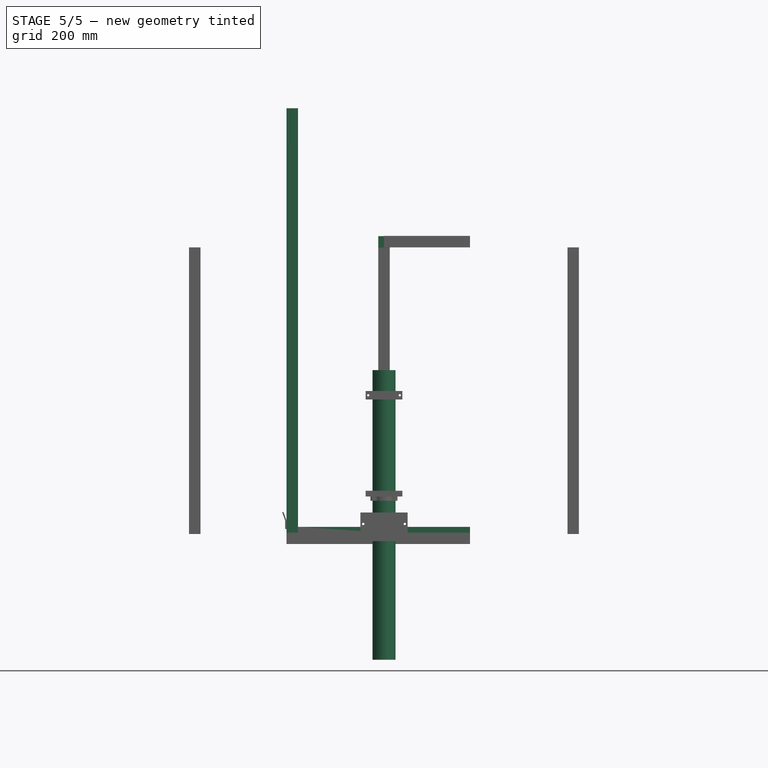
[diagram: stage 5 of 5 — front view after this stage's code; geometry added in this stage tinted green]
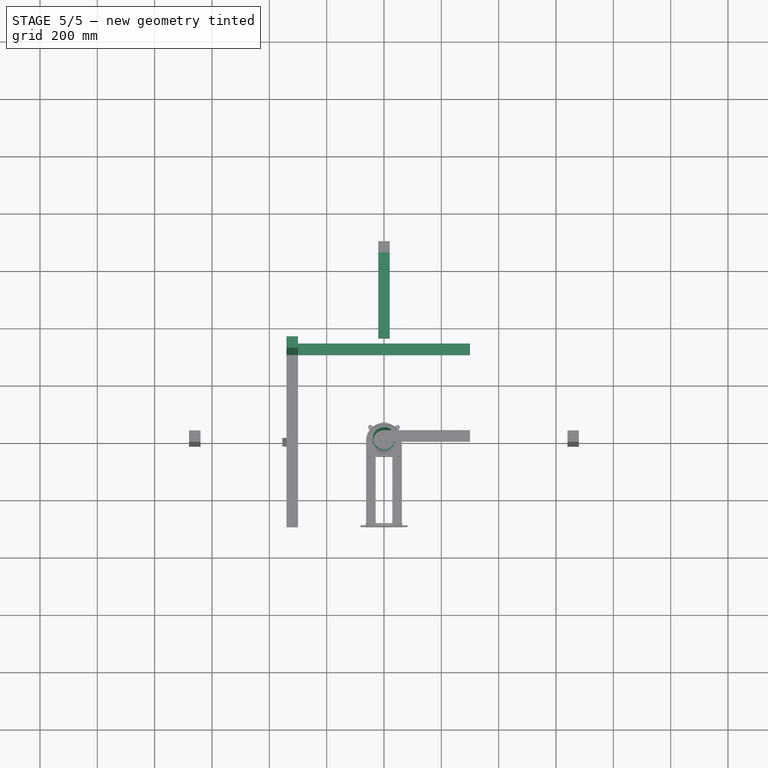
[diagram: stage 5 of 5 — top view after this stage's code; geometry added in this stage tinted green]
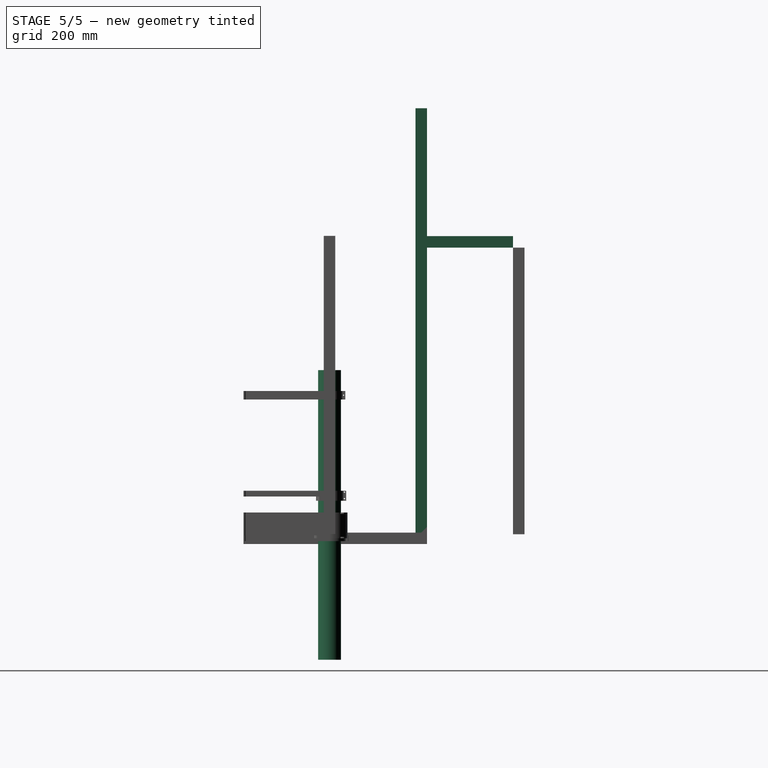
[diagram: stage 5 of 5 — right view after this stage's code; geometry added in this stage tinted green]
FEATURE [Spreadsheet::Sheet] Spreadsheet  label="parameters"
  cells = A1=wall_thickness; B1(wall_thickness)=2; A2=length; B2(length)=6; A4=pipe diam; B4(pipe_diam)=80; A6=inner diam; B6(inner_diam)=76; D6=interference fit; E6(interference_fit)=80.5; A7=support_inner_diam; B7(support_inner_diam)=81; D7=ws diam; E7(ws_diam)=94; A8=support_outer_diam; B8(support_outer_diam)=88; D8=window diam; E8(window_diam)=82; A10=top window diam; B10(top_window_diam)=102; A11=top_diam; B11(top_diam)=110; A13=top_to_w2; B13(top_to_w2_length)==291 - 7.5 + 140; A15=w2_to_w3_length; B15(w2_to_w3_length)=124; A17=w3_to_end_length; B17(w3_to_3nd_length)==1024 - 430 - 7.5; A19=end_to_sample_length; B19(end_to_sample_length)==1181 - 1024; A26=support_thickness; B26(support_thickness)=30; A27=support_arm_thickness; B27(support_arm_thickness)=10; A28=support_arm_length; B28(support_arm_length)=50; A30=track hole diameter; B30(track_hole)=8.199999999999999; E30=m4; F30(m4)=4.5; E31=m8; F31(m8)=8.199999999999999; A32=extrusion size; B32(extrusion_size)=40; A34=trans hole big; B34(trans_hole_big)=4.4; D34=sample diam; E34(sample_diam)=125; A35=big trans hole distance; B35(big_trans_hole_distance)=25.05; D35=screw size; E35(screw_size)=15; A36=trans small hole; B36(trans_small_hole)=3.4; A37=trans hole distance small; B37(small_trans_hole_distance)=30; A38=trans distance top; B38(trans_distance_top)=10
FEATURE [Sketcher::SketchObject] Sketch032
  FullyConstrained = true
  MapMode = 5
  Support = -> [XY_Plane005]
  expr: Constraints[3] = <<parameters>>.pipe_diam
  expr: Constraints[2] = <<parameters>>.inner_diam
  sketch-geometry (2):
    g0: Circle CenterX=0 CenterY=0 CenterZ=0 NormalX=0 NormalY=0 NormalZ=1 AngleXU=0 Radius=38
    g1: Circle CenterX=0 CenterY=0 CenterZ=0 NormalX=0 NormalY=0 NormalZ=1 AngleXU=0 Radius=40
  constraints (4):
    c: Coincident(g0,g-1)
    c: Coincident(g1,g0)
    c: Diameter(g0) = 76
    c: Diameter(g1) = 80
FEATURE [PartDesign::Pad] Pad025
  Direction = (1,1,1)
  Length = 124
  Length2 = 100
  Profile = -> Sketch032
  Type = 0
  expr: Length = <<parameters>>.w2_to_w3_length
FEATURE [Sketcher::SketchObject] Sketch039
  FullyConstrained = true
  MapMode = 5
  Support = -> [XY_Plane007]
  expr: Constraints[3] = <<parameters>>.inner_diam
  expr: Constraints[2] = <<parameters>>.pipe_diam
  sketch-geometry (2):
    g0: Circle CenterX=0 CenterY=0 CenterZ=0 NormalX=0 NormalY=0 NormalZ=1 AngleXU=0 Radius=38
    g1: Circle CenterX=0 CenterY=0 CenterZ=0 NormalX=0 NormalY=0 NormalZ=1 AngleXU=0 Radius=40
  constraints (4):
    c: Coincident(g0,g-1)
    c: Coincident(g1,g0)
    c: Diameter(g1) = 80
    c: Diameter(g0) = 76
FEATURE [PartDesign::Pad] Pad031
  Direction = (1,1,1)
  Length = 586.5
  Length2 = 100
  Profile = -> Sketch039
  Type = 0
  expr: Length = <<parameters>>.w3_to_3nd_length
FEATURE [PartDesign::Body] Body007  label="w3_to_end"
  Group = -> [Sketch039,Pad031]
  Origin = -> Origin007
  Placement = pos=(0,0,156) rot=(0,0,1;0rad)
  Tip = -> Pad031
FEATURE [Sketcher::SketchObject] Sketch040
  FullyConstrained = true
  MapMode = 5
  Support = -> [XY_Plane008]
  expr: Constraints[3] = <<parameters>>.inner_diam
  expr: Constraints[2] = <<parameters>>.pipe_diam
  sketch-geometry (2):
    g0: Circle CenterX=0 CenterY=0 CenterZ=0 NormalX=0 NormalY=0 NormalZ=1 AngleXU=0 Radius=38
    g1: Circle CenterX=0 CenterY=0 CenterZ=0 NormalX=0 NormalY=0 NormalZ=1 AngleXU=0 Radius=40
  constraints (5):
    c: PointOnObject(g0,g-2)
    c: PointOnObject(g1,g-1)
    c: Diameter(g1) = 80
    c: Diameter(g0) = 76
    c: Coincident(g0,g1)
FEATURE [PartDesign::Pad] Pad032
  Direction = (1,1,1)
  Length = 157
  Length2 = 100
  Profile = -> Sketch040
  Type = 0
  expr: Length = <<parameters>>.end_to_sample_length
FEATURE [PartDesign::Body] Body008  label="end_to_sample"
  Group = -> [Sketch040,Pad032]
  Origin = -> Origin008
  Placement = pos=(0,0,743) rot=(0,0,1;0rad)
  Tip = -> Pad032
FEATURE [Sketcher::SketchObject] Sketch041
  FullyConstrained = true
  MapMode = 5
  Support = -> [XY_Plane009]
  expr: Constraints[3] = <<parameters>>.inner_diam
  expr: Constraints[2] = <<parameters>>.pipe_diam
  sketch-geometry (2):
    g0: Circle CenterX=0 CenterY=0 CenterZ=0 NormalX=0 NormalY=0 NormalZ=1 AngleXU=0 Radius=38
    g1: Circle CenterX=0 CenterY=0 CenterZ=0 NormalX=0 NormalY=0 NormalZ=1 AngleXU=0 Radius=40
  constraints (4):
    c: Coincident(g0,g-1)
    c: Coincident(g1,g0)
    c: Diameter(g1) = 80
    c: Diameter(g0) = 76
FEATURE [PartDesign::Pad] Pad033
  Direction = (1,1,1)
  Length = 423.5
  Length2 = 100
  Profile = -> Sketch041
  Reversed = true
  Type = 0
  expr: Length = <<parameters>>.top_to_w2_length
FEATURE [PartDesign::Body] Body009  label="top_to_w2"
  Group = -> [Sketch041,Pad033]
  Origin = -> Origin009
  Tip = -> Pad033
FEATURE [Sketcher::SketchObject] Sketch115
  FullyConstrained = true
  MapMode = 5
  Support = -> [XY_Plane051]
  sketch-geometry (4):
    g0: LineSegment StartX=-300 StartY=340 StartZ=0 EndX=300 EndY=340 EndZ=0
    g1: LineSegment StartX=300 StartY=340 StartZ=0 EndX=300 EndY=300 EndZ=0
    g2: LineSegment StartX=300 StartY=300 StartZ=0 EndX=-300 EndY=300 EndZ=0
    g3: LineSegment StartX=-300 StartY=300 StartZ=0 EndX=-300 EndY=340 EndZ=0
  constraints (12):
    c: Coincident(g0,g1)
    c: Coincident(g1,g2)
    c: Coincident(g2,g3)
    c: Coincident(g3,g0)
    c: Horizontal(g0)
    c: Horizontal(g2)
    c: Vertical(g1)
    c: Vertical(g3)
    c: DistanceX(g0,g0) = 600
    c: DistanceX(g-1,g0) = 300
    c: DistanceY(g1,g1) = 40
    c: DistanceY(g-1,g1) = 300
FEATURE [PartDesign::Pad] Pad101
  Direction = (1,1,1)
  Length = 40
  Length2 = 100
  Profile = -> Sketch115
  Type = 0
FEATURE [PartDesign::Body] Body051  label="bottom001"
  Group = -> [Sketch115,Pad101]
  Origin = -> Origin051
  Placement = pos=(0,0,1014) rot=(0,0,1;0rad)
  Tip = -> Pad101
FEATURE [Sketcher::SketchObject] Sketch116
  FullyConstrained = true
  MapMode = 5
  Support = -> [XY_Plane052]
  sketch-geometry (4):
    g0: LineSegment StartX=-300 StartY=340 StartZ=0 EndX=300 EndY=340 EndZ=0
    g1: LineSegment StartX=300 StartY=340 StartZ=0 EndX=300 EndY=300 EndZ=0
    g2: LineSegment StartX=300 StartY=300 StartZ=0 EndX=-300 EndY=300 EndZ=0
    g3: LineSegment StartX=-300 StartY=300 StartZ=0 EndX=-300 EndY=340 EndZ=0
  constraints (12):
    c: Coincident(g0,g1)
    c: Coincident(g1,g2)
    c: Coincident(g2,g3)
    c: Coincident(g3,g0)
    c: Horizontal(g0)
    c: Horizontal(g2)
    c: Vertical(g1)
    c: Vertical(g3)
    c: DistanceX(g0,g0) = 600
    c: DistanceX(g-1,g0) = 300
    c: DistanceY(g1,g1) = 40
    c: DistanceY(g-1,g1) = 300
FEATURE [PartDesign::Pad] Pad102
  Direction = (1,1,1)
  Length = 40
  Length2 = 100
  Profile = -> Sketch116
  Type = 0
FEATURE [PartDesign::Body] Body052  label="bottom002"
  Group = -> [Sketch116,Pad102]
  Origin = -> Origin052
  Placement = pos=(0,0,1014) rot=(0,0,-1;1.5708rad)
  Tip = -> Pad102
FEATURE [Sketcher::SketchObject] Sketch117
  FullyConstrained = true
  MapMode = 5
  Support = -> [XY_Plane053]
  sketch-geometry (4):
    g0: LineSegment StartX=-300 StartY=340 StartZ=0 EndX=300 EndY=340 EndZ=0
    g1: LineSegment StartX=300 StartY=340 StartZ=0 EndX=300 EndY=300 EndZ=0
    g2: LineSegment StartX=300 StartY=300 StartZ=0 EndX=-300 EndY=300 EndZ=0
    g3: LineSegment StartX=-300 StartY=300 StartZ=0 EndX=-300 EndY=340 EndZ=0
  constraints (12):
    c: Coincident(g0,g1)
    c: Coincident(g1,g2)
    c: Coincident(g2,g3)
    c: Coincident(g3,g0)
    c: Horizontal(g0)
    c: Horizontal(g2)
    c: Vertical(g1)
    c: Vertical(g3)
    c: DistanceX(g0,g0) = 600
    c: DistanceX(g-1,g0) = 300
    c: DistanceY(g1,g1) = 40
    c: DistanceY(g-1,g1) = 300
FEATURE [PartDesign::Pad] Pad103
  Direction = (1,1,1)
  Length = 40
  Length2 = 100
  Profile = -> Sketch117
  Type = 0
FEATURE [PartDesign::Body] Body053  label="bottom003"
  Group = -> [Sketch117,Pad103]
  Origin = -> Origin053
  Placement = pos=(0,0,1014) rot=(0,0,1;3.14159rad)
  Tip = -> Pad103
FEATURE [Sketcher::SketchObject] Sketch118
  FullyConstrained = true
  MapMode = 5
  Support = -> [XY_Plane054]
  sketch-geometry (4):
    g0: LineSegment StartX=-300 StartY=340 StartZ=0 EndX=300 EndY=340 EndZ=0
    g1: LineSegment StartX=300 StartY=340 StartZ=0 EndX=300 EndY=300 EndZ=0
    g2: LineSegment StartX=300 StartY=300 StartZ=0 EndX=-300 EndY=300 EndZ=0
    g3: LineSegment StartX=-300 StartY=300 StartZ=0 EndX=-300 EndY=340 EndZ=0
  constraints (12):
    c: Coincident(g0,g1)
    c: Coincident(g1,g2)
    c: Coincident(g2,g3)
    c: Coincident(g3,g0)
    c: Horizontal(g0)
    c: Horizontal(g2)
    c: Vertical(g1)
    c: Vertical(g3)
    c: DistanceX(g0,g0) = 600
    c: DistanceX(g-1,g0) = 300
    c: DistanceY(g1,g1) = 40
    c: DistanceY(g-1,g1) = 300
FEATURE [PartDesign::Pad] Pad104
  Direction = (1,1,1)
  Length = 40
  Length2 = 100
  Profile = -> Sketch118
  Type = 0
FEATURE [PartDesign::Body] Body054  label="bottom004"
  Group = -> [Sketch118,Pad104]
  Origin = -> Origin054
  Placement = pos=(0,0,1014) rot=(0,0,1;1.5708rad)
  Tip = -> Pad104
FEATURE [Sketcher::SketchObject] Sketch185
  FullyConstrained = true
  MapMode = 5
  Support = -> [XY_Plane068]
  sketch-geometry (4):
    g0: LineSegment StartX=-340 StartY=340 StartZ=0 EndX=-300 EndY=340 EndZ=0
    g1: LineSegment StartX=-300 StartY=340 StartZ=0 EndX=-300 EndY=300 EndZ=0
    g2: LineSegment StartX=-300 StartY=300 StartZ=0 EndX=-340 EndY=300 EndZ=0
    g3: LineSegment StartX=-340 StartY=300 StartZ=0 EndX=-340 EndY=340 EndZ=0
  constraints (12):
    c: Coincident(g0,g1)
    c: Coincident(g1,g2)
    c: Coincident(g2,g3)
    c: Coincident(g3,g0)
    c: Horizontal(g0)
    c: Horizontal(g2)
    c: Vertical(g1)
    c: Vertical(g3)
    c: DistanceX(g0,g0) = 40
    c: DistanceX(g1,g-1) = 300
    c: DistanceY(g3,g3) = 40
    c: DistanceY(g-1,g1) = 300
FEATURE [PartDesign::Pad] Pad160
  Direction = (1,1,1)
  Length = 1500
  Length2 = 100
  Profile = -> Sketch185
  Type = 0
FEATURE [PartDesign::Body] Body068  label="vertical001"
  Group = -> [Sketch185,Pad160]
  Origin = -> Origin068
  Placement = pos=(0,0,-445) rot=(0,0,1;0rad)
  Tip = -> Pad160
FEATURE [Sketcher::SketchObject] Sketch186
  FullyConstrained = true
  MapMode = 5
  Support = -> [XY_Plane069]
  sketch-geometry (4):
    g0: LineSegment StartX=-340 StartY=340 StartZ=0 EndX=-300 EndY=340 EndZ=0
    g1: LineSegment StartX=-300 StartY=340 StartZ=0 EndX=-300 EndY=300 EndZ=0
    g2: LineSegment StartX=-300 StartY=300 StartZ=0 EndX=-340 EndY=300 EndZ=0
    g3: LineSegment StartX=-340 StartY=300 StartZ=0 EndX=-340 EndY=340 EndZ=0
  constraints (12):
    c: Coincident(g0,g1)
    c: Coincident(g1,g2)
    c: Coincident(g2,g3)
    c: Coincident(g3,g0)
    c: Horizontal(g0)
    c: Horizontal(g2)
    c: Vertical(g1)
    c: Vertical(g3)
    c: DistanceX(g0,g0) = 40
    c: DistanceX(g1,g-1) = 300
    c: DistanceY(g3,g3) = 40
    c: DistanceY(g-1,g1) = 300
FEATURE [PartDesign::Pad] Pad161
  Direction = (1,1,1)
  Length = 1500
  Length2 = 100
  Profile = -> Sketch186
  Type = 0
FEATURE [PartDesign::Body] Body069  label="vertical002"
  Group = -> [Sketch186,Pad161]
  Origin = -> Origin069
  Placement = pos=(0,-640,-445) rot=(0,0,1;0rad)
  Tip = -> Pad161
FEATURE [Sketcher::SketchObject] Sketch187
  FullyConstrained = true
  MapMode = 5
  Support = -> [XY_Plane070]
  sketch-geometry (4):
    g0: LineSegment StartX=-340 StartY=340 StartZ=0 EndX=-300 EndY=340 EndZ=0
    g1: LineSegment StartX=-300 StartY=340 StartZ=0 EndX=-300 EndY=300 EndZ=0
    g2: LineSegment StartX=-300 StartY=300 StartZ=0 EndX=-340 EndY=300 EndZ=0
    g3: LineSegment StartX=-340 StartY=300 StartZ=0 EndX=-340 EndY=340 EndZ=0
  constraints (12):
    c: Coincident(g0,g1)
    c: Coincident(g1,g2)
    c: Coincident(g2,g3)
    c: Coincident(g3,g0)
    c: Horizontal(g0)
    c: Horizontal(g2)
    c: Vertical(g1)
    c: Vertical(g3)
    c: DistanceX(g0,g0) = 40
    c: DistanceX(g1,g-1) = 300
    c: DistanceY(g3,g3) = 40
    c: DistanceY(g-1,g1) = 300
FEATURE [PartDesign::Pad] Pad162
  Direction = (1,1,1)
  Length = 1500
  Length2 = 100
  Profile = -> Sketch187
  Type = 0
FEATURE [PartDesign::Body] Body070  label="vertical003"
  Group = -> [Sketch187,Pad162]
  Origin = -> Origin070
  Placement = pos=(640,-640,-445) rot=(0,0,1;0rad)
  Tip = -> Pad162
FEATURE [Sketcher::SketchObject] Sketch188
  FullyConstrained = true
  MapMode = 5
  Support = -> [XY_Plane071]
  sketch-geometry (4):
    g0: LineSegment StartX=-340 StartY=340 StartZ=0 EndX=-300 EndY=340 EndZ=0
    g1: LineSegment StartX=-300 StartY=340 StartZ=0 EndX=-300 EndY=300 EndZ=0
    g2: LineSegment StartX=-300 StartY=300 StartZ=0 EndX=-340 EndY=300 EndZ=0
    g3: LineSegment StartX=-340 StartY=300 StartZ=0 EndX=-340 EndY=340 EndZ=0
  constraints (12):
    c: Coincident(g0,g1)
    c: Coincident(g1,g2)
    c: Coincident(g2,g3)
    c: Coincident(g3,g0)
    c: Horizontal(g0)
    c: Horizontal(g2)
    c: Vertical(g1)
    c: Vertical(g3)
    c: DistanceX(g0,g0) = 40
    c: DistanceX(g1,g-1) = 300
    c: DistanceY(g3,g3) = 40
    c: DistanceY(g-1,g1) = 300
FEATURE [PartDesign::Pad] Pad163
  Direction = (1,1,1)
  Length = 1500
  Length2 = 100
  Profile = -> Sketch188
  Type = 0
FEATURE [PartDesign::Body] Body071  label="vertical004"
  Group = -> [Sketch188,Pad163]
  Origin = -> Origin071
  Placement = pos=(640,0,-445) rot=(0,0,1;0rad)
  Tip = -> Pad163
FEATURE [PartDesign::ShapeBinder] CopyPad102
  TraceSupport = false
FEATURE [Sketcher::SketchObject] Sketch189
  FullyConstrained = true
  MapMode = 5
  Placement = pos=(0,340,0) rot=(0,0.707107,0.707107;3.14159rad)
  Support = -> [CopyPad102]
  sketch-geometry (4):
    g0: LineSegment StartX=-20 StartY=1014 StartZ=0 EndX=20 EndY=1014 EndZ=0
    g1: LineSegment StartX=20 StartY=1014 StartZ=0 EndX=20 EndY=1054 EndZ=0
    g2: LineSegment StartX=20 StartY=1054 StartZ=0 EndX=-20 EndY=1054 EndZ=0
    g3: LineSegment StartX=-20 StartY=1054 StartZ=0 EndX=-20 EndY=1014 EndZ=0
  constraints (12):
    c: Coincident(g0,g1)
    c: Coincident(g1,g2)
    c: Coincident(g2,g3)
    c: Coincident(g3,g0)
    c: Horizontal(g0)
    c: Horizontal(g2)
    c: Vertical(g1)
    c: Vertical(g3)
    c: DistanceX(g2,g2) = 40
    c: DistanceX(g0,g-1) = 20
    c: DistanceY(g1,g1) = 40
    c: DistanceY(g-1,g0) = 1014
FEATURE [PartDesign::Pad] Pad164
  Direction = (1,1,1)
  Length = 300
  Length2 = 100
  Profile = -> Sketch189
  Type = 0
FEATURE [PartDesign::Body] Body072  label="brace001"
  Group = -> [CopyPad102,Sketch189,Pad164]
  Origin = -> Origin072
  Tip = -> Pad164
FEATURE [PartDesign::ShapeBinder] CopyPad134
  TraceSupport = false
FEATURE [Sketcher::SketchObject] Sketch190
  FullyConstrained = true
  MapMode = 5
  Placement = pos=(0,340,0) rot=(0,0.707107,0.707107;3.14159rad)
  Support = -> [CopyPad134]
  sketch-geometry (4):
    g0: LineSegment StartX=-20 StartY=1014 StartZ=0 EndX=20 EndY=1014 EndZ=0
    g1: LineSegment StartX=20 StartY=1014 StartZ=0 EndX=20 EndY=1054 EndZ=0
    g2: LineSegment StartX=20 StartY=1054 StartZ=0 EndX=-20 EndY=1054 EndZ=0
    g3: LineSegment StartX=-20 StartY=1054 StartZ=0 EndX=-20 EndY=1014 EndZ=0
  constraints (12):
    c: Coincident(g0,g1)
    c: Coincident(g1,g2)
    c: Coincident(g2,g3)
    c: Coincident(g3,g0)
    c: Horizontal(g0)
    c: Horizontal(g2)
    c: Vertical(g1)
    c: Vertical(g3)
    c: DistanceX(g2,g2) = 40
    c: DistanceX(g0,g-1) = 20
    c: DistanceY(g1,g1) = 40
    c: DistanceY(g-1,g0) = 1014
FEATURE [PartDesign::Pad] Pad165
  Direction = (1,1,1)
  Length = 300
  Length2 = 100
  Profile = -> Sketch190
  Type = 0
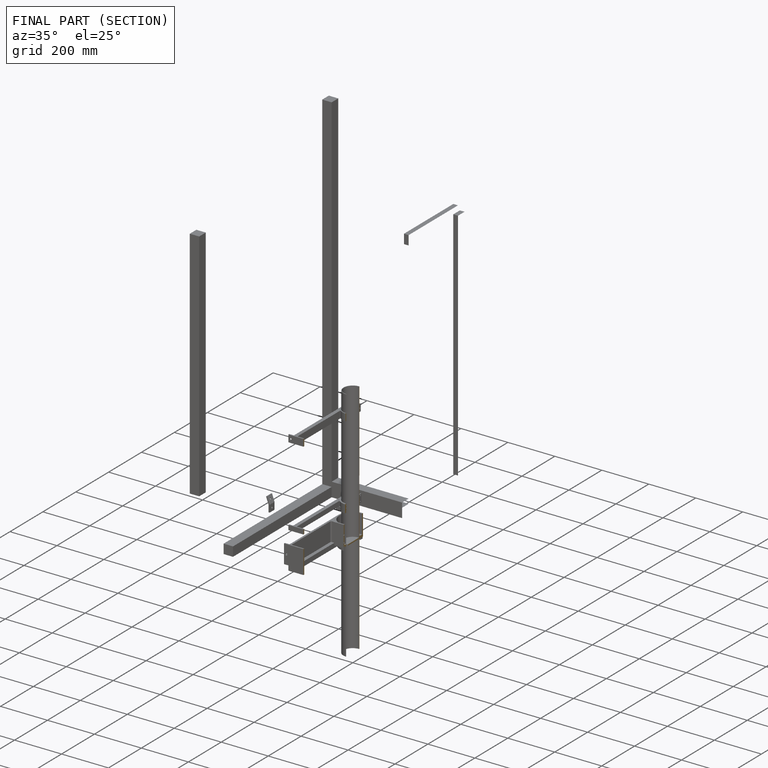
[diagram: finished part — half-section view (interior)]
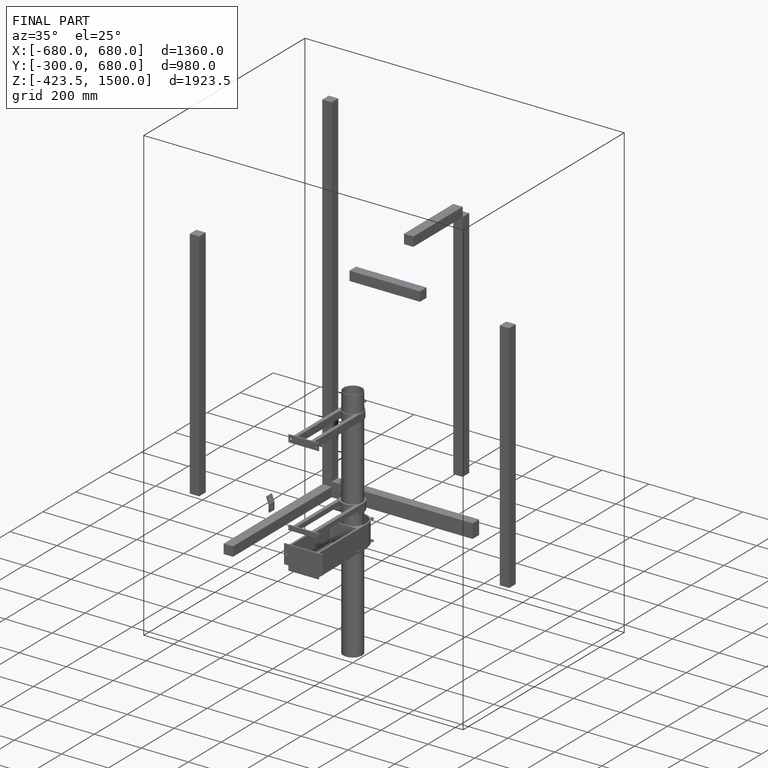
[diagram: finished part — iso view with bounding-box wireframe]
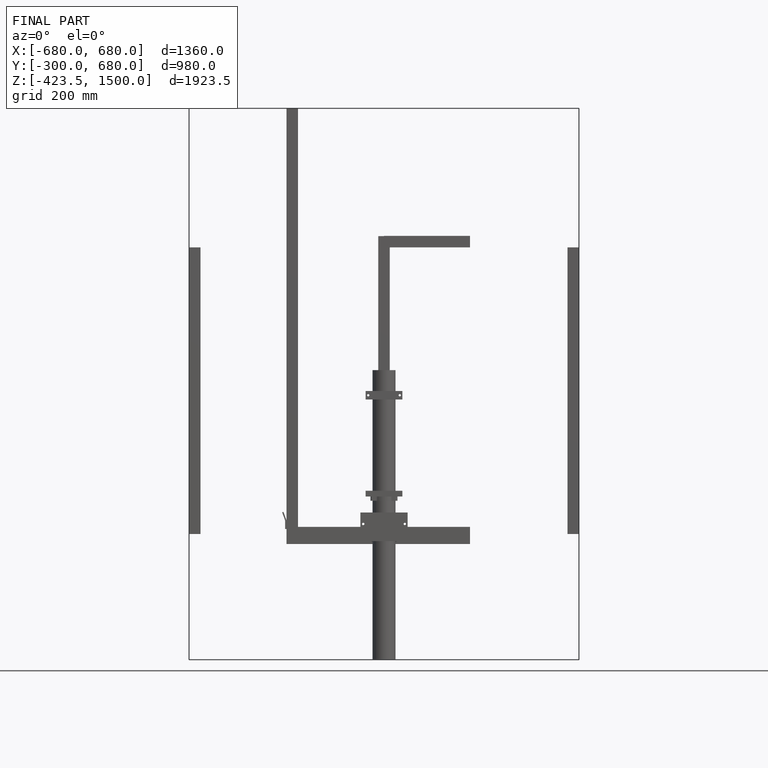
[diagram: finished part — front view with bounding-box wireframe]
